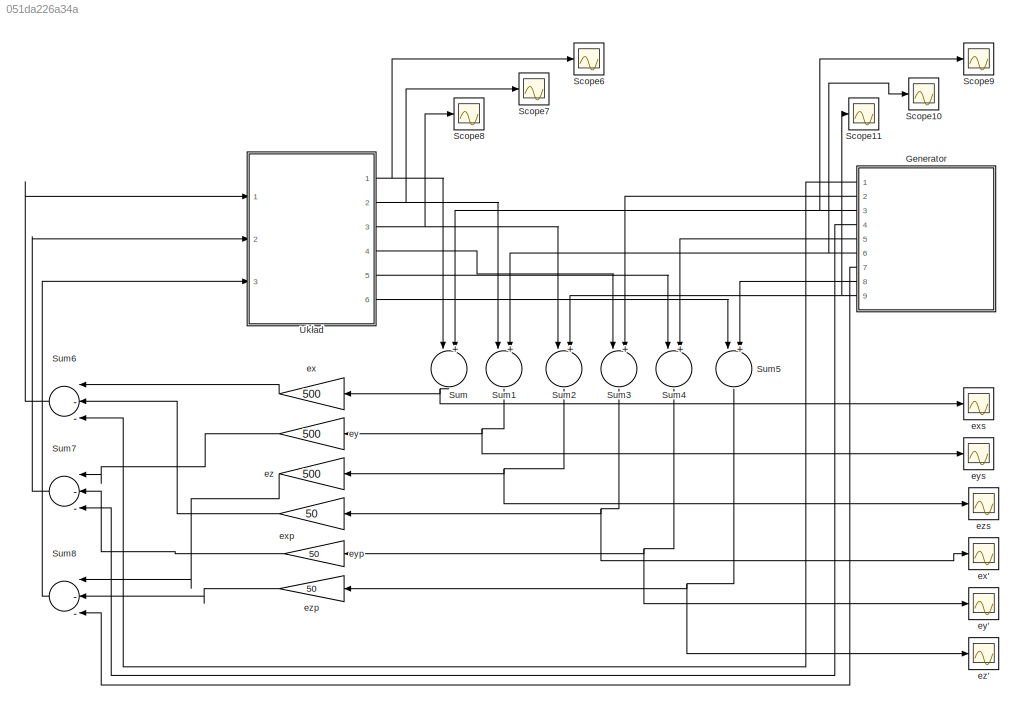
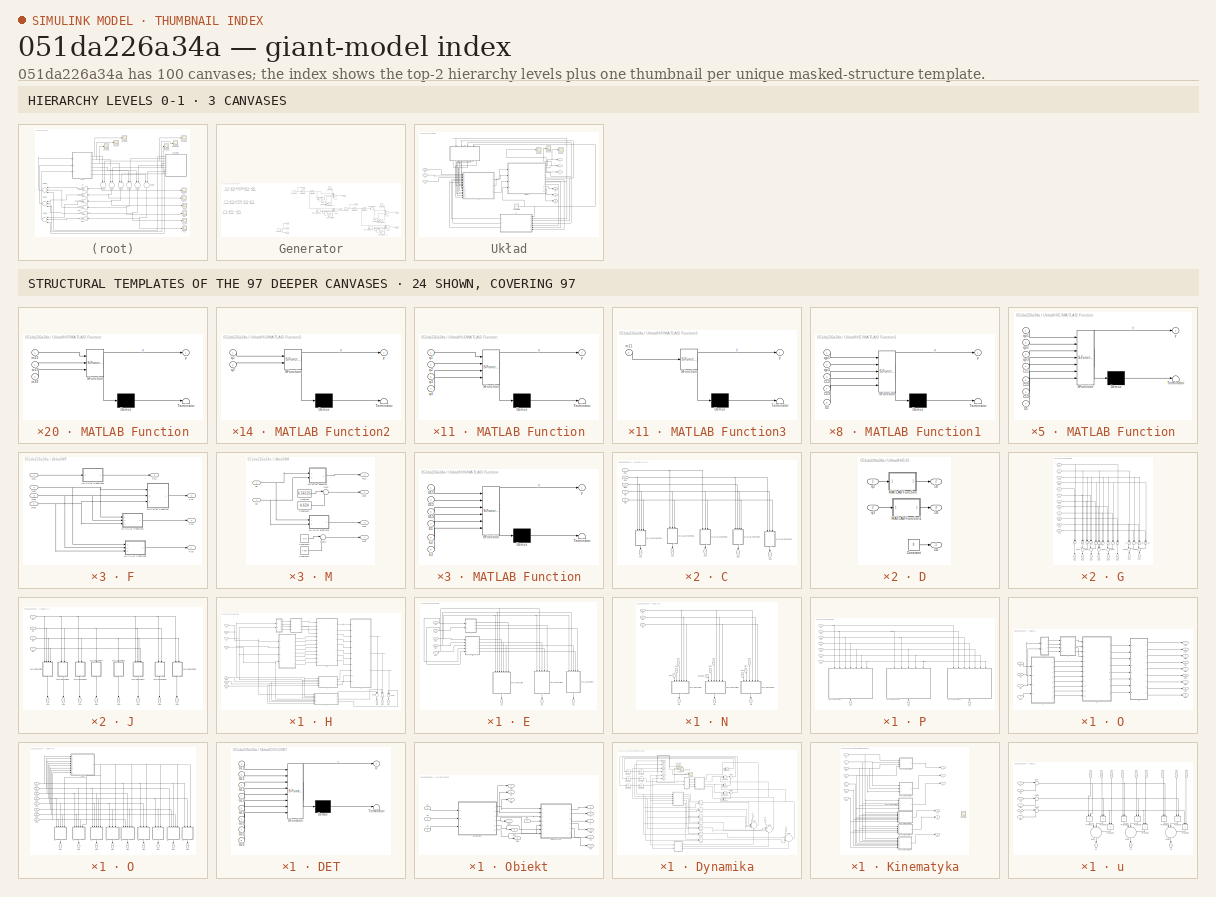
[diagram: thumbnail index - top-2 hierarchy levels (3 canvases) + 24 structural-template representatives of the remaining 97 canvases]
MODEL slx_051da226a34a
KIND model
CONFIG AbsTol = auto
CONFIG FixedStep = auto
CONFIG MaxStep = auto
CONFIG MinStep = auto
CONFIG RelTol = 1e-10
CONFIG SampleTimeConstraint = Unconstrained
CONFIG Solver = ode23
CONFIG SolverMode = Auto
CONFIG SolverName = ode23
CONFIG StartTime = 0.0
CONFIG StopTime = 20
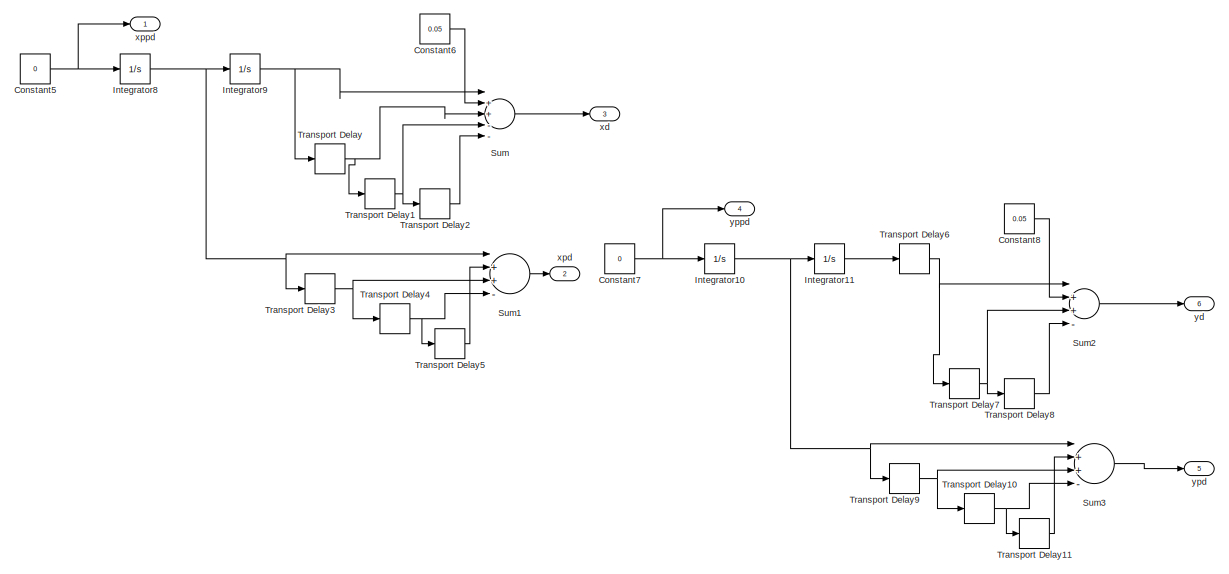
[diagram: Generator - part 1/2, right side, full height]
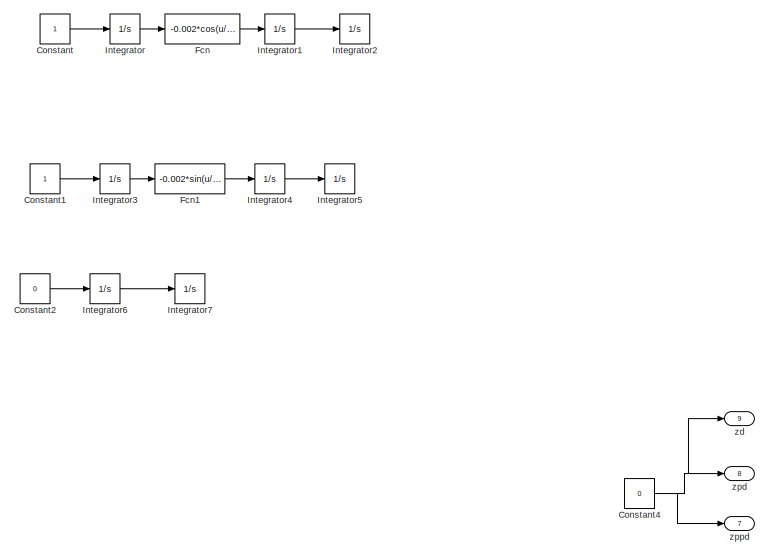
[diagram: Generator - part 2/2, left side, full height]
BLOCK [SubSystem] Generator
  Ports = [0, 9]
  RequestExecContextInheritance = off
  Variant = off
BLOCK [Constant] Generator/Constant
BLOCK [Constant] Generator/Constant1
BLOCK [Constant] Generator/Constant2
  Value = 0
BLOCK [Constant] Generator/Constant4
  Value = 0
BLOCK [Constant] Generator/Constant5
  Value = 0
BLOCK [Constant] Generator/Constant6
  Value = 0.05
BLOCK [Constant] Generator/Constant7
  Value = 0
BLOCK [Constant] Generator/Constant8
  Value = 0.05
BLOCK [Fcn] Generator/Fcn
  Expr = -0.002*cos(u/5)
BLOCK [Fcn] Generator/Fcn1
  Expr = -0.002*sin(u/5)
BLOCK [Integrator] Generator/Integrator
  Ports = [1, 1]
BLOCK [Integrator] Generator/Integrator1
  Ports = [1, 1]
BLOCK [Integrator] Generator/Integrator10
  InitialCondition = 0.01
  Ports = [1, 1]
BLOCK [Integrator] Generator/Integrator11
  Ports = [1, 1]
BLOCK [Integrator] Generator/Integrator2
  InitialCondition = 0.05
  Ports = [1, 1]
BLOCK [Integrator] Generator/Integrator3
  Ports = [1, 1]
BLOCK [Integrator] Generator/Integrator4
  InitialCondition = 0.01
  Ports = [1, 1]
BLOCK [Integrator] Generator/Integrator5
  Ports = [1, 1]
BLOCK [Integrator] Generator/Integrator6
  InitialCondition = 0.01
  Ports = [1, 1]
BLOCK [Integrator] Generator/Integrator7
  Ports = [1, 1]
BLOCK [Integrator] Generator/Integrator8
  InitialCondition = 0.01
  Ports = [1, 1]
BLOCK [Integrator] Generator/Integrator9
  Ports = [1, 1]
BLOCK [Sum] Generator/Sum
  InputSameDT = off
  Inputs = |++--+
  OutDataTypeStr = Inherit: Inherit via internal rule
  Ports = [5, 1]
  SaturateOnIntegerOverflow = off
BLOCK [Sum] Generator/Sum1
  InputSameDT = off
  Inputs = |++--
  OutDataTypeStr = Inherit: Inherit via internal rule
  Ports = [4, 1]
  SaturateOnIntegerOverflow = off
BLOCK [Sum] Generator/Sum2
  InputSameDT = off
  Inputs = |++--
  OutDataTypeStr = Inherit: Inherit via internal rule
  Ports = [4, 1]
  SaturateOnIntegerOverflow = off
BLOCK [Sum] Generator/Sum3
  InputSameDT = off
  Inputs = |++--
  OutDataTypeStr = Inherit: Inherit via internal rule
  Ports = [4, 1]
  SaturateOnIntegerOverflow = off
BLOCK [TransportDelay] Generator/Transport Delay
  DelayTime = 5
  Ports = [1, 1]
BLOCK [TransportDelay] Generator/Transport Delay1
  DelayTime = 5
  Ports = [1, 1]
BLOCK [TransportDelay] Generator/Transport Delay10
  DelayTime = 5
  Ports = [1, 1]
BLOCK [TransportDelay] Generator/Transport Delay11
  DelayTime = 5
  Ports = [1, 1]
BLOCK [TransportDelay] Generator/Transport Delay2
  DelayTime = 5
  Ports = [1, 1]
BLOCK [TransportDelay] Generator/Transport Delay3
  DelayTime = 5
  Ports = [1, 1]
BLOCK [TransportDelay] Generator/Transport Delay4
  DelayTime = 5
  Ports = [1, 1]
BLOCK [TransportDelay] Generator/Transport Delay5
  DelayTime = 5
  Ports = [1, 1]
BLOCK [TransportDelay] Generator/Transport Delay6
  DelayTime = 5
  Ports = [1, 1]
BLOCK [TransportDelay] Generator/Transport Delay7
  DelayTime = 5
  Ports = [1, 1]
BLOCK [TransportDelay] Generator/Transport Delay8
  DelayTime = 5
  Ports = [1, 1]
BLOCK [TransportDelay] Generator/Transport Delay9
  DelayTime = 5
  Ports = [1, 1]
BLOCK [Outport] Generator/xd
  IconDisplay = Port number
  Port = 3
BLOCK [Outport] Generator/xpd
  IconDisplay = Port number
  Port = 2
BLOCK [Outport] Generator/xppd
  IconDisplay = Port number
BLOCK [Outport] Generator/yd
  IconDisplay = Port number
  Port = 6
BLOCK [Outport] Generator/ypd
  IconDisplay = Port number
  Port = 5
BLOCK [Outport] Generator/yppd
  IconDisplay = Port number
  Port = 4
BLOCK [Outport] Generator/zd
  IconDisplay = Port number
  Port = 9
BLOCK [Outport] Generator/zpd
  IconDisplay = Port number
  Port = 8
BLOCK [Outport] Generator/zppd
  IconDisplay = Port number
  Port = 7
BLOCK [Scope] Scope10
  Ports = [1]
  ScopeSpecificationString = Simulink.scopes.TimeScopeBlockCfg('CurrentConfiguration', extmgr.ConfigurationSet(extmgr.Configuration('Core','General UI',true),extmgr.Configuration('Core','Source UI',true),extmgr.Configuration('Sources','WiredSimulink',true,'DataLoggingVariableName','ScopeData11'),extmgr.Configuration('Visuals','Time Domain',true,'SerializedDisplays',{struct('MinYLimReal','0.04375','MaxYLimReal','0.10625','YLab...<+1402ch>
BLOCK [Scope] Scope11
  Ports = [1]
  ScopeSpecificationString = Simulink.scopes.TimeScopeBlockCfg('CurrentConfiguration', extmgr.ConfigurationSet(extmgr.Configuration('Core','General UI',true),extmgr.Configuration('Core','Source UI',true),extmgr.Configuration('Sources','WiredSimulink',true,'DataLoggingVariableName','ScopeData12'),extmgr.Configuration('Visuals','Time Domain',true,'SerializedDisplays',{struct('MinYLimReal','-1.00000','MaxYLimReal','1.00000','YLa...<+1400ch>
BLOCK [Scope] Scope6
  Ports = [1]
  ScopeSpecificationString = Simulink.scopes.TimeScopeBlockCfg('CurrentConfiguration', extmgr.ConfigurationSet(extmgr.Configuration('Core','General UI',true),extmgr.Configuration('Core','Source UI',true),extmgr.Configuration('Sources','WiredSimulink',true,'DataLoggingVariableName','ScopeData7'),extmgr.Configuration('Visuals','Time Domain',true,'SerializedDisplays',{struct('MinYLimReal','-0.13885','MaxYLimReal','1.31567','YLab...<+1439ch>
BLOCK [Scope] Scope7
  Ports = [1]
  ScopeSpecificationString = Simulink.scopes.TimeScopeBlockCfg('CurrentConfiguration', extmgr.ConfigurationSet(extmgr.Configuration('Core','General UI',true),extmgr.Configuration('Core','Source UI',true),extmgr.Configuration('Sources','WiredSimulink',true,'DataLoggingVariableName','ScopeData8'),extmgr.Configuration('Visuals','Time Domain',true,'SerializedDisplays',{struct('MinYLimReal','-1.07543','MaxYLimReal','0.22985','YLab...<+1395ch>
BLOCK [Scope] Scope8
  Ports = [1]
  ScopeSpecificationString = Simulink.scopes.TimeScopeBlockCfg('CurrentConfiguration', extmgr.ConfigurationSet(extmgr.Configuration('Core','General UI',true),extmgr.Configuration('Core','Source UI',true),extmgr.Configuration('Sources','WiredSimulink',true,'DataLoggingVariableName','ScopeData9'),extmgr.Configuration('Visuals','Time Domain',true,'SerializedDisplays',{struct('MinYLimReal','-0.12371','MaxYLimReal','1.11335','YLab...<+1395ch>
BLOCK [Scope] Scope9
  Ports = [1]
  ScopeSpecificationString = Simulink.scopes.TimeScopeBlockCfg('CurrentConfiguration', extmgr.ConfigurationSet(extmgr.Configuration('Core','General UI',true),extmgr.Configuration('Core','Source UI',true),extmgr.Configuration('Sources','WiredSimulink',true,'DataLoggingVariableName','ScopeData10'),extmgr.Configuration('Visuals','Time Domain',true,'SerializedDisplays',{struct('MinYLimReal','0.04375','MaxYLimReal','0.10625','YLab...<+1402ch>
BLOCK [Sum] Sum
  InputSameDT = off
  Inputs = |+-
  OutDataTypeStr = Inherit: Inherit via internal rule
  Ports = [2, 1]
  SaturateOnIntegerOverflow = off
BLOCK [Sum] Sum1
  InputSameDT = off
  Inputs = |+-
  OutDataTypeStr = Inherit: Inherit via internal rule
  Ports = [2, 1]
  SaturateOnIntegerOverflow = off
BLOCK [Sum] Sum2
  InputSameDT = off
  Inputs = |+-
  OutDataTypeStr = Inherit: Inherit via internal rule
  Ports = [2, 1]
  SaturateOnIntegerOverflow = off
BLOCK [Sum] Sum3
  InputSameDT = off
  Inputs = |+-
  OutDataTypeStr = Inherit: Inherit via internal rule
  Ports = [2, 1]
  SaturateOnIntegerOverflow = off
BLOCK [Sum] Sum4
  InputSameDT = off
  Inputs = |+-
  OutDataTypeStr = Inherit: Inherit via internal rule
  Ports = [2, 1]
  SaturateOnIntegerOverflow = off
BLOCK [Sum] Sum5
  InputSameDT = off
  Inputs = |+-
  OutDataTypeStr = Inherit: Inherit via internal rule
  Ports = [2, 1]
  SaturateOnIntegerOverflow = off
BLOCK [Sum] Sum6
  InputSameDT = off
  Inputs = |--+
  OutDataTypeStr = Inherit: Inherit via internal rule
  Ports = [3, 1]
  SaturateOnIntegerOverflow = off
BLOCK [Sum] Sum7
  InputSameDT = off
  Inputs = |--+
  OutDataTypeStr = Inherit: Inherit via internal rule
  Ports = [3, 1]
  SaturateOnIntegerOverflow = off
BLOCK [Sum] Sum8
  InputSameDT = off
  Inputs = |--+
  OutDataTypeStr = Inherit: Inherit via internal rule
  Ports = [3, 1]
  SaturateOnIntegerOverflow = off
BLOCK [SubSystem] Układ
  Ports = [3, 6]
  RequestExecContextInheritance = off
  Variant = off
BLOCK [Constant] Układ/Constant3
  Value = 1.6
BLOCK [SubSystem] Układ/H
  Ports = [7, 3]
  RequestExecContextInheritance = off
  Variant = off
BLOCK [SubSystem] Układ/H/E
  Ports = [5, 3]
  RequestExecContextInheritance = off
  Variant = off
BLOCK [SubSystem] Układ/H/E/C
  Ports = [5, 5]
  RequestExecContextInheritance = off
  Variant = off
BLOCK [Outport] Układ/H/E/C/C11
  IconDisplay = Port number
BLOCK [Outport] Układ/H/E/C/C12
  IconDisplay = Port number
  Port = 2
BLOCK [Outport] Układ/H/E/C/C13
  IconDisplay = Port number
  Port = 3
BLOCK [Outport] Układ/H/E/C/C23
  IconDisplay = Port number
  Port = 4
BLOCK [Outport] Układ/H/E/C/C32
  IconDisplay = Port number
  Port = 5
BLOCK [SubSystem] Układ/H/E/C/MATLAB Function
  ErrorFcn = Stateflow.Translate.translate
  PermitHierarchicalResolution = ExplicitOnly
  Ports = [4, 1]
  RequestExecContextInheritance = off
  SFBlockType = MATLAB Function
  TreatAsAtomicUnit = on
  Variant = off
BLOCK [Demux] Układ/H/E/C/MATLAB Function/ Demux 
  Outputs = 1
  Ports = [1, 1]
BLOCK [S-Function] Układ/H/E/C/MATLAB Function/ SFunction 
  EnableBusSupport = on
  FunctionName = sf_sfun
  PortCounts = [4 2]
  Ports = [4, 2]
  SFunctionDeploymentMode = off
  Tag = Stateflow S-Function test0 71
BLOCK [Terminator] Układ/H/E/C/MATLAB Function/ Terminator 
BLOCK [Inport] Układ/H/E/C/MATLAB Function/q2
  IconDisplay = Port number
  Port = 3
BLOCK [Inport] Układ/H/E/C/MATLAB Function/q3
  IconDisplay = Port number
  Port = 4
BLOCK [Inport] Układ/H/E/C/MATLAB Function/qp2
  IconDisplay = Port number
BLOCK [Inport] Układ/H/E/C/MATLAB Function/qp3
  IconDisplay = Port number
  Port = 2
BLOCK [Outport] Układ/H/E/C/MATLAB Function/y
  IconDisplay = Port number
BLOCK [SubSystem] Układ/H/E/C/MATLAB Function1
  ErrorFcn = Stateflow.Translate.translate
  PermitHierarchicalResolution = ExplicitOnly
  Ports = [3, 1]
  RequestExecContextInheritance = off
  SFBlockType = MATLAB Function
  TreatAsAtomicUnit = on
  Variant = off
BLOCK [Demux] Układ/H/E/C/MATLAB Function1/ Demux 
  Outputs = 1
  Ports = [1, 1]
BLOCK [S-Function] Układ/H/E/C/MATLAB Function1/ SFunction 
  EnableBusSupport = on
  FunctionName = sf_sfun
  PortCounts = [3 2]
  Ports = [3, 2]
  SFunctionDeploymentMode = off
  Tag = Stateflow S-Function test0 72
BLOCK [Terminator] Układ/H/E/C/MATLAB Function1/ Terminator 
BLOCK [Inport] Układ/H/E/C/MATLAB Function1/q2
  IconDisplay = Port number
  Port = 2
BLOCK [Inport] Układ/H/E/C/MATLAB Function1/q3
  IconDisplay = Port number
  Port = 3
BLOCK [Inport] Układ/H/E/C/MATLAB Function1/qp1
  IconDisplay = Port number
BLOCK [Outport] Układ/H/E/C/MATLAB Function1/y
  IconDisplay = Port number
BLOCK [SubSystem] Układ/H/E/C/MATLAB Function2
  ErrorFcn = Stateflow.Translate.translate
  PermitHierarchicalResolution = ExplicitOnly
  Ports = [3, 1]
  RequestExecContextInheritance = off
  SFBlockType = MATLAB Function
  TreatAsAtomicUnit = on
  Variant = off
BLOCK [Demux] Układ/H/E/C/MATLAB Function2/ Demux 
  Outputs = 1
  Ports = [1, 1]
BLOCK [S-Function] Układ/H/E/C/MATLAB Function2/ SFunction 
  EnableBusSupport = on
  FunctionName = sf_sfun
  PortCounts = [3 2]
  Ports = [3, 2]
  SFunctionDeploymentMode = off
  Tag = Stateflow S-Function test0 73
BLOCK [Terminator] Układ/H/E/C/MATLAB Function2/ Terminator 
BLOCK [Inport] Układ/H/E/C/MATLAB Function2/q2
  IconDisplay = Port number
  Port = 2
BLOCK [Inport] Układ/H/E/C/MATLAB Function2/q3
  IconDisplay = Port number
  Port = 3
BLOCK [Inport] Układ/H/E/C/MATLAB Function2/qp1
  IconDisplay = Port number
BLOCK [Outport] Układ/H/E/C/MATLAB Function2/y
  IconDisplay = Port number
BLOCK [SubSystem] Układ/H/E/C/MATLAB Function3
  ErrorFcn = Stateflow.Translate.translate
  PermitHierarchicalResolution = ExplicitOnly
  Ports = [4, 1]
  RequestExecContextInheritance = off
  SFBlockType = MATLAB Function
  TreatAsAtomicUnit = on
  Variant = off
BLOCK [Demux] Układ/H/E/C/MATLAB Function3/ Demux 
  Outputs = 1
  Ports = [1, 1]
BLOCK [S-Function] Układ/H/E/C/MATLAB Function3/ SFunction 
  EnableBusSupport = on
  FunctionName = sf_sfun
  PortCounts = [4 2]
  Ports = [4, 2]
  SFunctionDeploymentMode = off
  Tag = Stateflow S-Function test0 74
BLOCK [Terminator] Układ/H/E/C/MATLAB Function3/ Terminator 
BLOCK [Inport] Układ/H/E/C/MATLAB Function3/q2
  IconDisplay = Port number
  Port = 3
BLOCK [Inport] Układ/H/E/C/MATLAB Function3/q3
  IconDisplay = Port number
  Port = 4
BLOCK [Inport] Układ/H/E/C/MATLAB Function3/qp2
  IconDisplay = Port number
BLOCK [Inport] Układ/H/E/C/MATLAB Function3/qp3
  IconDisplay = Port number
  Port = 2
BLOCK [Outport] Układ/H/E/C/MATLAB Function3/y
  IconDisplay = Port number
BLOCK [SubSystem] Układ/H/E/C/MATLAB Function4
  ErrorFcn = Stateflow.Translate.translate
  PermitHierarchicalResolution = ExplicitOnly
  Ports = [3, 1]
  RequestExecContextInheritance = off
  SFBlockType = MATLAB Function
  TreatAsAtomicUnit = on
  Variant = off
BLOCK [Demux] Układ/H/E/C/MATLAB Function4/ Demux 
  Outputs = 1
  Ports = [1, 1]
BLOCK [S-Function] Układ/H/E/C/MATLAB Function4/ SFunction 
  EnableBusSupport = on
  FunctionName = sf_sfun
  PortCounts = [3 2]
  Ports = [3, 2]
  SFunctionDeploymentMode = off
  Tag = Stateflow S-Function test0 75
BLOCK [Terminator] Układ/H/E/C/MATLAB Function4/ Terminator 
BLOCK [Inport] Układ/H/E/C/MATLAB Function4/q2
  IconDisplay = Port number
  Port = 2
BLOCK [Inport] Układ/H/E/C/MATLAB Function4/q3
  IconDisplay = Port number
  Port = 3
BLOCK [Inport] Układ/H/E/C/MATLAB Function4/qp2
  IconDisplay = Port number
BLOCK [Outport] Układ/H/E/C/MATLAB Function4/y
  IconDisplay = Port number
BLOCK [Inport] Układ/H/E/C/q2
  IconDisplay = Port number
  Port = 4
BLOCK [Inport] Układ/H/E/C/q3
  IconDisplay = Port number
  Port = 5
BLOCK [Inport] Układ/H/E/C/qp1
  IconDisplay = Port number
BLOCK [Inport] Układ/H/E/C/qp2
  IconDisplay = Port number
  Port = 2
BLOCK [Inport] Układ/H/E/C/qp3
  IconDisplay = Port number
  Port = 3
BLOCK [SubSystem] Układ/H/E/D
  Ports = [2, 3]
  RequestExecContextInheritance = off
  Variant = off
BLOCK [Constant] Układ/H/E/D/Constant
  Value = 0
BLOCK [Outport] Układ/H/E/D/D1
  IconDisplay = Port number
BLOCK [Outport] Układ/H/E/D/D2
  IconDisplay = Port number
  Port = 2
BLOCK [Outport] Układ/H/E/D/D3
  IconDisplay = Port number
  Port = 3
BLOCK [SubSystem] Układ/H/E/D/MATLAB Function
  ErrorFcn = Stateflow.Translate.translate
  PermitHierarchicalResolution = ExplicitOnly
  Ports = [1, 1]
  RequestExecContextInheritance = off
  SFBlockType = MATLAB Function
  TreatAsAtomicUnit = on
  Variant = off
BLOCK [Demux] Układ/H/E/D/MATLAB Function/ Demux 
  Outputs = 1
  Ports = [1, 1]
BLOCK [S-Function] Układ/H/E/D/MATLAB Function/ SFunction 
  EnableBusSupport = on
  FunctionName = sf_sfun
  PortCounts = [1 2]
  Ports = [1, 2]
  SFunctionDeploymentMode = off
  Tag = Stateflow S-Function test0 76
BLOCK [Terminator] Układ/H/E/D/MATLAB Function/ Terminator 
BLOCK [Inport] Układ/H/E/D/MATLAB Function/q2
  IconDisplay = Port number
BLOCK [Outport] Układ/H/E/D/MATLAB Function/y
  IconDisplay = Port number
BLOCK [SubSystem] Układ/H/E/D/MATLAB Function1
  ErrorFcn = Stateflow.Translate.translate
  PermitHierarchicalResolution = ExplicitOnly
  Ports = [1, 1]
  RequestExecContextInheritance = off
  SFBlockType = MATLAB Function
  TreatAsAtomicUnit = on
  Variant = off
BLOCK [Demux] Układ/H/E/D/MATLAB Function1/ Demux 
  Outputs = 1
  Ports = [1, 1]
BLOCK [S-Function] Układ/H/E/D/MATLAB Function1/ SFunction 
  EnableBusSupport = on
  FunctionName = sf_sfun
  PortCounts = [1 2]
  Ports = [1, 2]
  SFunctionDeploymentMode = off
  Tag = Stateflow S-Function test0 77
BLOCK [Terminator] Układ/H/E/D/MATLAB Function1/ Terminator 
BLOCK [Inport] Układ/H/E/D/MATLAB Function1/q3
  IconDisplay = Port number
BLOCK [Outport] Układ/H/E/D/MATLAB Function1/y
  IconDisplay = Port number
BLOCK [Inport] Układ/H/E/D/q2
  IconDisplay = Port number
BLOCK [Inport] Układ/H/E/D/q3
  IconDisplay = Port number
  Port = 2
BLOCK [Outport] Układ/H/E/E1
  IconDisplay = Port number
BLOCK [Outport] Układ/H/E/E2
  IconDisplay = Port number
  Port = 2
BLOCK [Outport] Układ/H/E/E3
  IconDisplay = Port number
  Port = 3
BLOCK [SubSystem] Układ/H/E/MATLAB Function
  ErrorFcn = Stateflow.Translate.translate
  PermitHierarchicalResolution = ExplicitOnly
  Ports = [7, 1]
  RequestExecContextInheritance = off
  SFBlockType = MATLAB Function
  TreatAsAtomicUnit = on
  Variant = off
BLOCK [Demux] Układ/H/E/MATLAB Function/ Demux 
  Outputs = 1
  Ports = [1, 1]
BLOCK [S-Function] Układ/H/E/MATLAB Function/ SFunction 
  EnableBusSupport = on
  FunctionName = sf_sfun
  PortCounts = [7 2]
  Ports = [7, 2]
  SFunctionDeploymentMode = off
  Tag = Stateflow S-Function test0 38
BLOCK [Terminator] Układ/H/E/MATLAB Function/ Terminator 
BLOCK [Inport] Układ/H/E/MATLAB Function/C11
  IconDisplay = Port number
  Port = 4
BLOCK [Inport] Układ/H/E/MATLAB Function/C12
  IconDisplay = Port number
  Port = 5
BLOCK [Inport] Układ/H/E/MATLAB Function/C13
  IconDisplay = Port number
  Port = 6
BLOCK [Inport] Układ/H/E/MATLAB Function/D1
  IconDisplay = Port number
  Port = 7
BLOCK [Inport] Układ/H/E/MATLAB Function/qp1
  IconDisplay = Port number
BLOCK [Inport] Układ/H/E/MATLAB Function/qp2
  IconDisplay = Port number
  Port = 2
BLOCK [Inport] Układ/H/E/MATLAB Function/qp3
  IconDisplay = Port number
  Port = 3
BLOCK [Outport] Układ/H/E/MATLAB Function/y
  IconDisplay = Port number
BLOCK [SubSystem] Układ/H/E/MATLAB Function1
  ErrorFcn = Stateflow.Translate.translate
  PermitHierarchicalResolution = ExplicitOnly
  Ports = [5, 1]
  RequestExecContextInheritance = off
  SFBlockType = MATLAB Function
  TreatAsAtomicUnit = on
  Variant = off
BLOCK [Demux] Układ/H/E/MATLAB Function1/ Demux 
  Outputs = 1
  Ports = [1, 1]
BLOCK [S-Function] Układ/H/E/MATLAB Function1/ SFunction 
  EnableBusSupport = on
  FunctionName = sf_sfun
  PortCounts = [5 2]
  Ports = [5, 2]
  SFunctionDeploymentMode = off
  Tag = Stateflow S-Function test0 39
BLOCK [Terminator] Układ/H/E/MATLAB Function1/ Terminator 
BLOCK [Inport] Układ/H/E/MATLAB Function1/C12
  IconDisplay = Port number
  Port = 3
BLOCK [Inport] Układ/H/E/MATLAB Function1/C23
  IconDisplay = Port number
  Port = 4
BLOCK [Inport] Układ/H/E/MATLAB Function1/D2
  IconDisplay = Port number
  Port = 5
BLOCK [Inport] Układ/H/E/MATLAB Function1/qp1
  IconDisplay = Port number
BLOCK [Inport] Układ/H/E/MATLAB Function1/qp3
  IconDisplay = Port number
  Port = 2
BLOCK [Outport] Układ/H/E/MATLAB Function1/y
  IconDisplay = Port number
BLOCK [SubSystem] Układ/H/E/MATLAB Function2
  ErrorFcn = Stateflow.Translate.translate
  PermitHierarchicalResolution = ExplicitOnly
  Ports = [5, 1]
  RequestExecContextInheritance = off
  SFBlockType = MATLAB Function
  TreatAsAtomicUnit = on
  Variant = off
BLOCK [Demux] Układ/H/E/MATLAB Function2/ Demux 
  Outputs = 1
  Ports = [1, 1]
BLOCK [S-Function] Układ/H/E/MATLAB Function2/ SFunction 
  EnableBusSupport = on
  FunctionName = sf_sfun
  PortCounts = [5 2]
  Ports = [5, 2]
  SFunctionDeploymentMode = off
  Tag = Stateflow S-Function test0 40
BLOCK [Terminator] Układ/H/E/MATLAB Function2/ Terminator 
BLOCK [Inport] Układ/H/E/MATLAB Function2/C13
  IconDisplay = Port number
  Port = 3
BLOCK [Inport] Układ/H/E/MATLAB Function2/C32
  IconDisplay = Port number
  Port = 4
BLOCK [Inport] Układ/H/E/MATLAB Function2/D3
  IconDisplay = Port number
  Port = 5
BLOCK [Inport] Układ/H/E/MATLAB Function2/qp1
  IconDisplay = Port number
BLOCK [Inport] Układ/H/E/MATLAB Function2/qp2
  IconDisplay = Port number
  Port = 2
BLOCK [Outport] Układ/H/E/MATLAB Function2/y
  IconDisplay = Port number
BLOCK [Inport] Układ/H/E/q2
  IconDisplay = Port number
BLOCK [Inport] Układ/H/E/q3
  IconDisplay = Port number
  Port = 2
BLOCK [Inport] Układ/H/E/qp1
  IconDisplay = Port number
  Port = 3
BLOCK [Inport] Układ/H/E/qp2
  IconDisplay = Port number
  Port = 4
BLOCK [Inport] Układ/H/E/qp3
  IconDisplay = Port number
  Port = 5
BLOCK [SubSystem] Układ/H/F
  Ports = [4, 4]
  RequestExecContextInheritance = off
  Variant = off
BLOCK [Outport] Układ/H/F/F11
  IconDisplay = Port number
BLOCK [Outport] Układ/H/F/F22
  IconDisplay = Port number
  Port = 2
BLOCK [Outport] Układ/H/F/F23
  IconDisplay = Port number
  Port = 3
BLOCK [Outport] Układ/H/F/F33
  IconDisplay = Port number
  Port = 4
BLOCK [Inport] Układ/H/F/M11
  IconDisplay = Port number
BLOCK [Inport] Układ/H/F/M22
  IconDisplay = Port number
  Port = 2
BLOCK [Inport] Układ/H/F/M23
  IconDisplay = Port number
  Port = 3
BLOCK [Inport] Układ/H/F/M33
  IconDisplay = Port number
  Port = 4
BLOCK [SubSystem] Układ/H/F/MATLAB Function
  ErrorFcn = Stateflow.Translate.translate
  PermitHierarchicalResolution = ExplicitOnly
  Ports = [3, 1]
  RequestExecContextInheritance = off
  SFBlockType = MATLAB Function
  TreatAsAtomicUnit = on
  Variant = off
BLOCK [Demux] Układ/H/F/MATLAB Function/ Demux 
  Outputs = 1
  Ports = [1, 1]
BLOCK [S-Function] Układ/H/F/MATLAB Function/ SFunction 
  EnableBusSupport = on
  FunctionName = sf_sfun
  PortCounts = [3 2]
  Ports = [3, 2]
  SFunctionDeploymentMode = off
  Tag = Stateflow S-Function test0 17
BLOCK [Terminator] Układ/H/F/MATLAB Function/ Terminator 
BLOCK [Inport] Układ/H/F/MATLAB Function/m22
  IconDisplay = Port number
BLOCK [Inport] Układ/H/F/MATLAB Function/m23
  IconDisplay = Port number
  Port = 2
BLOCK [Inport] Układ/H/F/MATLAB Function/m33
  IconDisplay = Port number
  Port = 3
BLOCK [Outport] Układ/H/F/MATLAB Function/y
  IconDisplay = Port number
BLOCK [SubSystem] Układ/H/F/MATLAB Function1
  ErrorFcn = Stateflow.Translate.translate
  PermitHierarchicalResolution = ExplicitOnly
  Ports = [3, 1]
  RequestExecContextInheritance = off
  SFBlockType = MATLAB Function
  TreatAsAtomicUnit = on
  Variant = off
BLOCK [Demux] Układ/H/F/MATLAB Function1/ Demux 
  Outputs = 1
  Ports = [1, 1]
BLOCK [S-Function] Układ/H/F/MATLAB Function1/ SFunction 
  EnableBusSupport = on
  FunctionName = sf_sfun
  PortCounts = [3 2]
  Ports = [3, 2]
  SFunctionDeploymentMode = off
  Tag = Stateflow S-Function test0 18
BLOCK [Terminator] Układ/H/F/MATLAB Function1/ Terminator 
BLOCK [Inport] Układ/H/F/MATLAB Function1/m22
  IconDisplay = Port number
BLOCK [Inport] Układ/H/F/MATLAB Function1/m23
  IconDisplay = Port number
  Port = 2
BLOCK [Inport] Układ/H/F/MATLAB Function1/m33
  IconDisplay = Port number
  Port = 3
BLOCK [Outport] Układ/H/F/MATLAB Function1/y
  IconDisplay = Port number
BLOCK [SubSystem] Układ/H/F/MATLAB Function2
  ErrorFcn = Stateflow.Translate.translate
  PermitHierarchicalResolution = ExplicitOnly
  Ports = [3, 1]
  RequestExecContextInheritance = off
  SFBlockType = MATLAB Function
  TreatAsAtomicUnit = on
  Variant = off
BLOCK [Demux] Układ/H/F/MATLAB Function2/ Demux 
  Outputs = 1
  Ports = [1, 1]
BLOCK [S-Function] Układ/H/F/MATLAB Function2/ SFunction 
  EnableBusSupport = on
  FunctionName = sf_sfun
  PortCounts = [3 2]
  Ports = [3, 2]
  SFunctionDeploymentMode = off
  Tag = Stateflow S-Function test0 19
BLOCK [Terminator] Układ/H/F/MATLAB Function2/ Terminator 
BLOCK [Inport] Układ/H/F/MATLAB Function2/m22
  IconDisplay = Port number
BLOCK [Inport] Układ/H/F/MATLAB Function2/m23
  IconDisplay = Port number
  Port = 2
BLOCK [Inport] Układ/H/F/MATLAB Function2/m33
  IconDisplay = Port number
  Port = 3
BLOCK [Outport] Układ/H/F/MATLAB Function2/y
  IconDisplay = Port number
BLOCK [SubSystem] Układ/H/F/MATLAB Function3
  ErrorFcn = Stateflow.Translate.translate
  PermitHierarchicalResolution = ExplicitOnly
  Ports = [1, 1]
  RequestExecContextInheritance = off
  SFBlockType = MATLAB Function
  TreatAsAtomicUnit = on
  Variant = off
BLOCK [Demux] Układ/H/F/MATLAB Function3/ Demux 
  Outputs = 1
  Ports = [1, 1]
BLOCK [S-Function] Układ/H/F/MATLAB Function3/ SFunction 
  EnableBusSupport = on
  FunctionName = sf_sfun
  PortCounts = [1 2]
  Ports = [1, 2]
  SFunctionDeploymentMode = off
  Tag = Stateflow S-Function test0 20
BLOCK [Terminator] Układ/H/F/MATLAB Function3/ Terminator 
BLOCK [Inport] Układ/H/F/MATLAB Function3/m11
  IconDisplay = Port number
BLOCK [Outport] Układ/H/F/MATLAB Function3/y
  IconDisplay = Port number
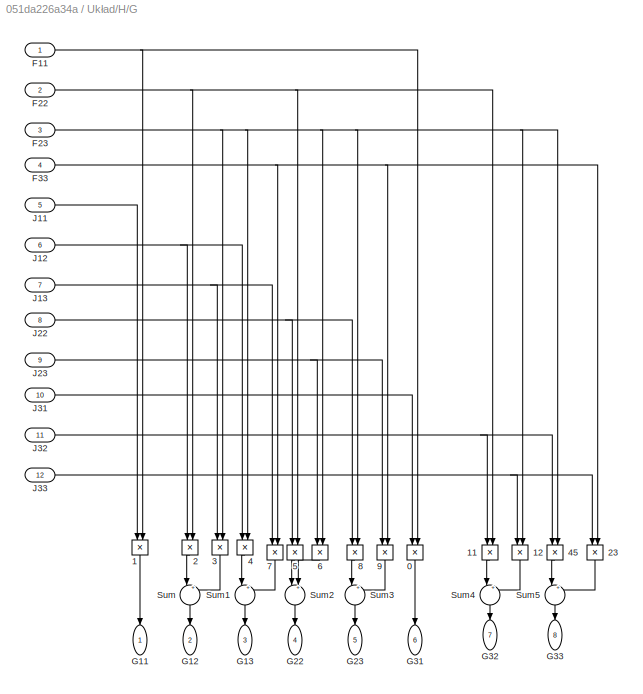
BLOCK [SubSystem] Układ/H/G
  Ports = [12, 8]
  RequestExecContextInheritance = off
  Variant = off
BLOCK [Product] Układ/H/G/0
  InputSameDT = off
  OutDataTypeStr = Inherit: Inherit via internal rule
  Ports = [2, 1]
  RndMeth = Floor
  SaturateOnIntegerOverflow = off
BLOCK [Product] Układ/H/G/1
  InputSameDT = off
  OutDataTypeStr = Inherit: Inherit via internal rule
  Ports = [2, 1]
  RndMeth = Floor
  SaturateOnIntegerOverflow = off
BLOCK [Product] Układ/H/G/11
  InputSameDT = off
  OutDataTypeStr = Inherit: Inherit via internal rule
  Ports = [2, 1]
  RndMeth = Floor
  SaturateOnIntegerOverflow = off
BLOCK [Product] Układ/H/G/12
  InputSameDT = off
  OutDataTypeStr = Inherit: Inherit via internal rule
  Ports = [2, 1]
  RndMeth = Floor
  SaturateOnIntegerOverflow = off
BLOCK [Product] Układ/H/G/2
  InputSameDT = off
  OutDataTypeStr = Inherit: Inherit via internal rule
  Ports = [2, 1]
  RndMeth = Floor
  SaturateOnIntegerOverflow = off
BLOCK [Product] Układ/H/G/23
  InputSameDT = off
  OutDataTypeStr = Inherit: Inherit via internal rule
  Ports = [2, 1]
  RndMeth = Floor
  SaturateOnIntegerOverflow = off
BLOCK [Product] Układ/H/G/3
  InputSameDT = off
  OutDataTypeStr = Inherit: Inherit via internal rule
  Ports = [2, 1]
  RndMeth = Floor
  SaturateOnIntegerOverflow = off
BLOCK [Product] Układ/H/G/4
  InputSameDT = off
  OutDataTypeStr = Inherit: Inherit via internal rule
  Ports = [2, 1]
  RndMeth = Floor
  SaturateOnIntegerOverflow = off
BLOCK [Product] Układ/H/G/45
  InputSameDT = off
  OutDataTypeStr = Inherit: Inherit via internal rule
  Ports = [2, 1]
  RndMeth = Floor
  SaturateOnIntegerOverflow = off
BLOCK [Product] Układ/H/G/5
  InputSameDT = off
  OutDataTypeStr = Inherit: Inherit via internal rule
  Ports = [2, 1]
  RndMeth = Floor
  SaturateOnIntegerOverflow = off
BLOCK [Product] Układ/H/G/6
  InputSameDT = off
  OutDataTypeStr = Inherit: Inherit via internal rule
  Ports = [2, 1]
  RndMeth = Floor
  SaturateOnIntegerOverflow = off
BLOCK [Product] Układ/H/G/7
  InputSameDT = off
  OutDataTypeStr = Inherit: Inherit via internal rule
  Ports = [2, 1]
  RndMeth = Floor
  SaturateOnIntegerOverflow = off
BLOCK [Product] Układ/H/G/8
  InputSameDT = off
  OutDataTypeStr = Inherit: Inherit via internal rule
  Ports = [2, 1]
  RndMeth = Floor
  SaturateOnIntegerOverflow = off
BLOCK [Product] Układ/H/G/9
  InputSameDT = off
  OutDataTypeStr = Inherit: Inherit via internal rule
  Ports = [2, 1]
  RndMeth = Floor
  SaturateOnIntegerOverflow = off
BLOCK [Inport] Układ/H/G/F11
  IconDisplay = Port number
BLOCK [Inport] Układ/H/G/F22
  IconDisplay = Port number
  Port = 2
BLOCK [Inport] Układ/H/G/F23
  IconDisplay = Port number
  Port = 3
BLOCK [Inport] Układ/H/G/F33
  IconDisplay = Port number
  Port = 4
BLOCK [Outport] Układ/H/G/G11
  IconDisplay = Port number
BLOCK [Outport] Układ/H/G/G12
  IconDisplay = Port number
  Port = 2
BLOCK [Outport] Układ/H/G/G13
  IconDisplay = Port number
  Port = 3
BLOCK [Outport] Układ/H/G/G22
  IconDisplay = Port number
  Port = 4
BLOCK [Outport] Układ/H/G/G23
  IconDisplay = Port number
  Port = 5
BLOCK [Outport] Układ/H/G/G31
  IconDisplay = Port number
  Port = 6
BLOCK [Outport] Układ/H/G/G32
  IconDisplay = Port number
  Port = 7
BLOCK [Outport] Układ/H/G/G33
  IconDisplay = Port number
  Port = 8
BLOCK [Inport] Układ/H/G/J11
  IconDisplay = Port number
  Port = 5
BLOCK [Inport] Układ/H/G/J12
  IconDisplay = Port number
  Port = 6
BLOCK [Inport] Układ/H/G/J13
  IconDisplay = Port number
  Port = 7
BLOCK [Inport] Układ/H/G/J22
  IconDisplay = Port number
  Port = 8
BLOCK [Inport] Układ/H/G/J23
  IconDisplay = Port number
  Port = 9
BLOCK [Inport] Układ/H/G/J31
  IconDisplay = Port number
  Port = 10
BLOCK [Inport] Układ/H/G/J32
  IconDisplay = Port number
  Port = 11
BLOCK [Inport] Układ/H/G/J33
  IconDisplay = Port number
  Port = 12
BLOCK [Sum] Układ/H/G/Sum
  IconShape = round
  InputSameDT = off
  Inputs = |++
  OutDataTypeStr = Inherit: Inherit via internal rule
  Ports = [2, 1]
  SaturateOnIntegerOverflow = off
BLOCK [Sum] Układ/H/G/Sum1
  IconShape = round
  InputSameDT = off
  Inputs = |++
  OutDataTypeStr = Inherit: Inherit via internal rule
  Ports = [2, 1]
  SaturateOnIntegerOverflow = off
BLOCK [Sum] Układ/H/G/Sum2
  IconShape = round
  InputSameDT = off
  Inputs = |++
  OutDataTypeStr = Inherit: Inherit via internal rule
  Ports = [2, 1]
  SaturateOnIntegerOverflow = off
BLOCK [Sum] Układ/H/G/Sum3
  IconShape = round
  InputSameDT = off
  Inputs = |++
  OutDataTypeStr = Inherit: Inherit via internal rule
  Ports = [2, 1]
  SaturateOnIntegerOverflow = off
BLOCK [Sum] Układ/H/G/Sum4
  IconShape = round
  InputSameDT = off
  Inputs = |++
  OutDataTypeStr = Inherit: Inherit via internal rule
  Ports = [2, 1]
  SaturateOnIntegerOverflow = off
BLOCK [Sum] Układ/H/G/Sum5
  IconShape = round
  InputSameDT = off
  Inputs = |++
  OutDataTypeStr = Inherit: Inherit via internal rule
  Ports = [2, 1]
  SaturateOnIntegerOverflow = off
BLOCK [Outport] Układ/H/H1
  IconDisplay = Port number
BLOCK [Outport] Układ/H/H2
  IconDisplay = Port number
  Port = 2
BLOCK [Outport] Układ/H/H3
  IconDisplay = Port number
  Port = 3
BLOCK [SubSystem] Układ/H/J
  Ports = [4, 8]
  RequestExecContextInheritance = off
  Variant = off
BLOCK [Outport] Układ/H/J/J11
  IconDisplay = Port number
BLOCK [Outport] Układ/H/J/J12
  IconDisplay = Port number
  Port = 2
BLOCK [Outport] Układ/H/J/J13
  IconDisplay = Port number
  Port = 3
BLOCK [Outport] Układ/H/J/J22
  IconDisplay = Port number
  Port = 4
BLOCK [Outport] Układ/H/J/J23
  IconDisplay = Port number
  Port = 5
BLOCK [Outport] Układ/H/J/J31
  IconDisplay = Port number
  Port = 6
BLOCK [Outport] Układ/H/J/J32
  IconDisplay = Port number
  Port = 7
BLOCK [Outport] Układ/H/J/J33
  IconDisplay = Port number
  Port = 8
BLOCK [SubSystem] Układ/H/J/MATLAB Function
  ErrorFcn = Stateflow.Translate.translate
  PermitHierarchicalResolution = ExplicitOnly
  Ports = [4, 1]
  RequestExecContextInheritance = off
  SFBlockType = MATLAB Function
  TreatAsAtomicUnit = on
  Variant = off
BLOCK [Demux] Układ/H/J/MATLAB Function/ Demux 
  Outputs = 1
  Ports = [1, 1]
BLOCK [S-Function] Układ/H/J/MATLAB Function/ SFunction 
  EnableBusSupport = on
  FunctionName = sf_sfun
  PortCounts = [4 2]
  Ports = [4, 2]
  SFunctionDeploymentMode = off
  Tag = Stateflow S-Function test0 23
BLOCK [Terminator] Układ/H/J/MATLAB Function/ Terminator 
BLOCK [Inport] Układ/H/J/MATLAB Function/q1
  IconDisplay = Port number
BLOCK [Inport] Układ/H/J/MATLAB Function/q2
  IconDisplay = Port number
  Port = 2
BLOCK [Inport] Układ/H/J/MATLAB Function/q3
  IconDisplay = Port number
  Port = 3
BLOCK [Inport] Układ/H/J/MATLAB Function/q4
  IconDisplay = Port number
  Port = 4
BLOCK [Outport] Układ/H/J/MATLAB Function/y
  IconDisplay = Port number
BLOCK [SubSystem] Układ/H/J/MATLAB Function1
  ErrorFcn = Stateflow.Translate.translate
  PermitHierarchicalResolution = ExplicitOnly
  Ports = [1, 1]
  RequestExecContextInheritance = off
  SFBlockType = MATLAB Function
  TreatAsAtomicUnit = on
  Variant = off
BLOCK [Demux] Układ/H/J/MATLAB Function1/ Demux 
  Outputs = 1
  Ports = [1, 1]
BLOCK [S-Function] Układ/H/J/MATLAB Function1/ SFunction 
  EnableBusSupport = on
  FunctionName = sf_sfun
  PortCounts = [1 2]
  Ports = [1, 2]
  SFunctionDeploymentMode = off
  Tag = Stateflow S-Function test0 24
BLOCK [Terminator] Układ/H/J/MATLAB Function1/ Terminator 
BLOCK [Inport] Układ/H/J/MATLAB Function1/q3
  IconDisplay = Port number
BLOCK [Outport] Układ/H/J/MATLAB Function1/y
  IconDisplay = Port number
BLOCK [SubSystem] Układ/H/J/MATLAB Function2
  ErrorFcn = Stateflow.Translate.translate
  PermitHierarchicalResolution = ExplicitOnly
  Ports = [2, 1]
  RequestExecContextInheritance = off
  SFBlockType = MATLAB Function
  TreatAsAtomicUnit = on
  Variant = off
BLOCK [Demux] Układ/H/J/MATLAB Function2/ Demux 
  Outputs = 1
  Ports = [1, 1]
BLOCK [S-Function] Układ/H/J/MATLAB Function2/ SFunction 
  EnableBusSupport = on
  FunctionName = sf_sfun
  PortCounts = [2 2]
  Ports = [2, 2]
  SFunctionDeploymentMode = off
  Tag = Stateflow S-Function test0 25
BLOCK [Terminator] Układ/H/J/MATLAB Function2/ Terminator 
BLOCK [Inport] Układ/H/J/MATLAB Function2/q1
  IconDisplay = Port number
BLOCK [Inport] Układ/H/J/MATLAB Function2/q2
  IconDisplay = Port number
  Port = 2
BLOCK [Outport] Układ/H/J/MATLAB Function2/y
  IconDisplay = Port number
BLOCK [SubSystem] Układ/H/J/MATLAB Function3
  ErrorFcn = Stateflow.Translate.translate
  PermitHierarchicalResolution = ExplicitOnly
  Ports = [2, 1]
  RequestExecContextInheritance = off
  SFBlockType = MATLAB Function
  TreatAsAtomicUnit = on
  Variant = off
BLOCK [Demux] Układ/H/J/MATLAB Function3/ Demux 
  Outputs = 1
  Ports = [1, 1]
BLOCK [S-Function] Układ/H/J/MATLAB Function3/ SFunction 
  EnableBusSupport = on
  FunctionName = sf_sfun
  PortCounts = [2 2]
  Ports = [2, 2]
  SFunctionDeploymentMode = off
  Tag = Stateflow S-Function test0 26
BLOCK [Terminator] Układ/H/J/MATLAB Function3/ Terminator 
BLOCK [Inport] Układ/H/J/MATLAB Function3/q1
  IconDisplay = Port number
BLOCK [Inport] Układ/H/J/MATLAB Function3/q3
  IconDisplay = Port number
  Port = 2
BLOCK [Outport] Układ/H/J/MATLAB Function3/y
  IconDisplay = Port number
BLOCK [SubSystem] Układ/H/J/MATLAB Function4
  ErrorFcn = Stateflow.Translate.translate
  PermitHierarchicalResolution = ExplicitOnly
  Ports = [1, 1]
  RequestExecContextInheritance = off
  SFBlockType = MATLAB Function
  TreatAsAtomicUnit = on
  Variant = off
BLOCK [Demux] Układ/H/J/MATLAB Function4/ Demux 
  Outputs = 1
  Ports = [1, 1]
BLOCK [S-Function] Układ/H/J/MATLAB Function4/ SFunction 
  EnableBusSupport = on
  FunctionName = sf_sfun
  PortCounts = [1 2]
  Ports = [1, 2]
  SFunctionDeploymentMode = off
  Tag = Stateflow S-Function test0 27
BLOCK [Terminator] Układ/H/J/MATLAB Function4/ Terminator 
BLOCK [Inport] Układ/H/J/MATLAB Function4/q2
  IconDisplay = Port number
BLOCK [Outport] Układ/H/J/MATLAB Function4/y
  IconDisplay = Port number
BLOCK [SubSystem] Układ/H/J/MATLAB Function5
  ErrorFcn = Stateflow.Translate.translate
  PermitHierarchicalResolution = ExplicitOnly
  Ports = [2, 1]
  RequestExecContextInheritance = off
  SFBlockType = MATLAB Function
  TreatAsAtomicUnit = on
  Variant = off
BLOCK [Demux] Układ/H/J/MATLAB Function5/ Demux 
  Outputs = 1
  Ports = [1, 1]
BLOCK [S-Function] Układ/H/J/MATLAB Function5/ SFunction 
  EnableBusSupport = on
  FunctionName = sf_sfun
  PortCounts = [2 2]
  Ports = [2, 2]
  SFunctionDeploymentMode = off
  Tag = Stateflow S-Function test0 28
BLOCK [Terminator] Układ/H/J/MATLAB Function5/ Terminator 
BLOCK [Inport] Układ/H/J/MATLAB Function5/q1
  IconDisplay = Port number
BLOCK [Inport] Układ/H/J/MATLAB Function5/q2
  IconDisplay = Port number
  Port = 2
BLOCK [Outport] Układ/H/J/MATLAB Function5/y
  IconDisplay = Port number
BLOCK [SubSystem] Układ/H/J/MATLAB Function6
  ErrorFcn = Stateflow.Translate.translate
  PermitHierarchicalResolution = ExplicitOnly
  Ports = [2, 1]
  RequestExecContextInheritance = off
  SFBlockType = MATLAB Function
  TreatAsAtomicUnit = on
  Variant = off
BLOCK [Demux] Układ/H/J/MATLAB Function6/ Demux 
  Outputs = 1
  Ports = [1, 1]
BLOCK [S-Function] Układ/H/J/MATLAB Function6/ SFunction 
  EnableBusSupport = on
  FunctionName = sf_sfun
  PortCounts = [2 2]
  Ports = [2, 2]
  SFunctionDeploymentMode = off
  Tag = Stateflow S-Function test0 29
BLOCK [Terminator] Układ/H/J/MATLAB Function6/ Terminator 
BLOCK [Inport] Układ/H/J/MATLAB Function6/q1
  IconDisplay = Port number
BLOCK [Inport] Układ/H/J/MATLAB Function6/q3
  IconDisplay = Port number
  Port = 2
BLOCK [Outport] Układ/H/J/MATLAB Function6/y
  IconDisplay = Port number
BLOCK [SubSystem] Układ/H/J/MATLAB Function7
  ErrorFcn = Stateflow.Translate.translate
  PermitHierarchicalResolution = ExplicitOnly
  Ports = [4, 1]
  RequestExecContextInheritance = off
  SFBlockType = MATLAB Function
  TreatAsAtomicUnit = on
  Variant = off
BLOCK [Demux] Układ/H/J/MATLAB Function7/ Demux 
  Outputs = 1
  Ports = [1, 1]
BLOCK [S-Function] Układ/H/J/MATLAB Function7/ SFunction 
  EnableBusSupport = on
  FunctionName = sf_sfun
  PortCounts = [4 2]
  Ports = [4, 2]
  SFunctionDeploymentMode = off
  Tag = Stateflow S-Function test0 30
BLOCK [Terminator] Układ/H/J/MATLAB Function7/ Terminator 
BLOCK [Inport] Układ/H/J/MATLAB Function7/q1
  IconDisplay = Port number
BLOCK [Inport] Układ/H/J/MATLAB Function7/q2
  IconDisplay = Port number
  Port = 2
BLOCK [Inport] Układ/H/J/MATLAB Function7/q3
  IconDisplay = Port number
  Port = 3
BLOCK [Inport] Układ/H/J/MATLAB Function7/q4
  IconDisplay = Port number
  Port = 4
BLOCK [Outport] Układ/H/J/MATLAB Function7/y
  IconDisplay = Port number
BLOCK [Inport] Układ/H/J/q1
  IconDisplay = Port number
BLOCK [Inport] Układ/H/J/q2
  IconDisplay = Port number
  Port = 2
BLOCK [Inport] Układ/H/J/q3
  IconDisplay = Port number
  Port = 3
BLOCK [Inport] Układ/H/J/q4
  IconDisplay = Port number
  Port = 4
BLOCK [SubSystem] Układ/H/M
  Ports = [2, 4]
  RequestExecContextInheritance = off
  Variant = off
BLOCK [Constant] Układ/H/M/Constant
  Value = 6.56125
BLOCK [Constant] Układ/H/M/Constant1
  Value = 4.624
BLOCK [Constant] Układ/H/M/Constant2
  Value = 10.9
BLOCK [Constant] Układ/H/M/Constant3
  Value = 4.624
BLOCK [Outport] Układ/H/M/M11
  IconDisplay = Port number
BLOCK [Outport] Układ/H/M/M22
  IconDisplay = Port number
  Port = 2
BLOCK [Outport] Układ/H/M/M23
  IconDisplay = Port number
  Port = 3
BLOCK [Outport] Układ/H/M/M33 
  IconDisplay = Port number
  Port = 4
BLOCK [SubSystem] Układ/H/M/MATLAB Function
  ErrorFcn = Stateflow.Translate.translate
  PermitHierarchicalResolution = ExplicitOnly
  Ports = [2, 1]
  RequestExecContextInheritance = off
  SFBlockType = MATLAB Function
  TreatAsAtomicUnit = on
  Variant = off
BLOCK [Demux] Układ/H/M/MATLAB Function/ Demux 
  Outputs = 1
  Ports = [1, 1]
BLOCK [S-Function] Układ/H/M/MATLAB Function/ SFunction 
  EnableBusSupport = on
  FunctionName = sf_sfun
  PortCounts = [2 2]
  Ports = [2, 2]
  SFunctionDeploymentMode = off
  Tag = Stateflow S-Function test0 21
BLOCK [Terminator] Układ/H/M/MATLAB Function/ Terminator 
BLOCK [Inport] Układ/H/M/MATLAB Function/q2
  IconDisplay = Port number
BLOCK [Inport] Układ/H/M/MATLAB Function/q3
  IconDisplay = Port number
  Port = 2
BLOCK [Outport] Układ/H/M/MATLAB Function/y
  IconDisplay = Port number
BLOCK [SubSystem] Układ/H/M/MATLAB Function1
  ErrorFcn = Stateflow.Translate.translate
  PermitHierarchicalResolution = ExplicitOnly
  Ports = [2, 1]
  RequestExecContextInheritance = off
  SFBlockType = MATLAB Function
  TreatAsAtomicUnit = on
  Variant = off
BLOCK [Demux] Układ/H/M/MATLAB Function1/ Demux 
  Outputs = 1
  Ports = [1, 1]
BLOCK [S-Function] Układ/H/M/MATLAB Function1/ SFunction 
  EnableBusSupport = on
  FunctionName = sf_sfun
  PortCounts = [2 2]
  Ports = [2, 2]
  SFunctionDeploymentMode = off
  Tag = Stateflow S-Function test0 22
BLOCK [Terminator] Układ/H/M/MATLAB Function1/ Terminator 
BLOCK [Inport] Układ/H/M/MATLAB Function1/q2
  IconDisplay = Port number
BLOCK [Inport] Układ/H/M/MATLAB Function1/q3
  IconDisplay = Port number
  Port = 2
BLOCK [Outport] Układ/H/M/MATLAB Function1/y
  IconDisplay = Port number
BLOCK [Sum] Układ/H/M/Sum
  IconShape = round
  InputSameDT = off
  Inputs = |++
  OutDataTypeStr = Inherit: Inherit via internal rule
  Ports = [2, 1]
  SaturateOnIntegerOverflow = off
BLOCK [Sum] Układ/H/M/Sum1
  IconShape = round
  InputSameDT = off
  Inputs = |++
  OutDataTypeStr = Inherit: Inherit via internal rule
  Ports = [2, 1]
  SaturateOnIntegerOverflow = off
BLOCK [Inport] Układ/H/M/q2
  IconDisplay = Port number
BLOCK [Inport] Układ/H/M/q3
  IconDisplay = Port number
  Port = 2
BLOCK [SubSystem] Układ/H/N
  Ports = [11, 3]
  RequestExecContextInheritance = off
  Variant = off
BLOCK [Constant] Układ/H/N/Constant
  Value = 0
BLOCK [Inport] Układ/H/N/E1
  IconDisplay = Port number
  Port = 9
BLOCK [Inport] Układ/H/N/E2
  IconDisplay = Port number
  Port = 10
BLOCK [Inport] Układ/H/N/E3
  IconDisplay = Port number
  Port = 11
BLOCK [Inport] Układ/H/N/G11
  IconDisplay = Port number
BLOCK [Inport] Układ/H/N/G12
  IconDisplay = Port number
  Port = 2
BLOCK [Inport] Układ/H/N/G13
  IconDisplay = Port number
  Port = 3
BLOCK [Inport] Układ/H/N/G22
  IconDisplay = Port number
  Port = 4
BLOCK [Inport] Układ/H/N/G23
  IconDisplay = Port number
  Port = 5
BLOCK [Inport] Układ/H/N/G31
  IconDisplay = Port number
  Port = 6
BLOCK [Inport] Układ/H/N/G32
  IconDisplay = Port number
  Port = 7
BLOCK [Inport] Układ/H/N/G33
  IconDisplay = Port number
  Port = 8
BLOCK [SubSystem] Układ/H/N/MATLAB Function
  ErrorFcn = Stateflow.Translate.translate
  PermitHierarchicalResolution = ExplicitOnly
  Ports = [6, 1]
  RequestExecContextInheritance = off
  SFBlockType = MATLAB Function
  TreatAsAtomicUnit = on
  Variant = off
BLOCK [Demux] Układ/H/N/MATLAB Function/ Demux 
  Outputs = 1
  Ports = [1, 1]
BLOCK [S-Function] Układ/H/N/MATLAB Function/ SFunction 
  EnableBusSupport = on
  FunctionName = sf_sfun
  PortCounts = [6 2]
  Ports = [6, 2]
  SFunctionDeploymentMode = off
  Tag = Stateflow S-Function test0 41
BLOCK [Terminator] Układ/H/N/MATLAB Function/ Terminator 
BLOCK [Inport] Układ/H/N/MATLAB Function/E1
  IconDisplay = Port number
  Port = 4
BLOCK [Inport] Układ/H/N/MATLAB Function/E2
  IconDisplay = Port number
  Port = 5
BLOCK [Inport] Układ/H/N/MATLAB Function/E3
  IconDisplay = Port number
  Port = 6
BLOCK [Inport] Układ/H/N/MATLAB Function/G11
  IconDisplay = Port number
BLOCK [Inport] Układ/H/N/MATLAB Function/G12
  IconDisplay = Port number
  Port = 2
BLOCK [Inport] Układ/H/N/MATLAB Function/G13
  IconDisplay = Port number
  Port = 3
BLOCK [Outport] Układ/H/N/MATLAB Function/y
  IconDisplay = Port number
BLOCK [SubSystem] Układ/H/N/MATLAB Function1
  ErrorFcn = Stateflow.Translate.translate
  PermitHierarchicalResolution = ExplicitOnly
  Ports = [6, 1]
  RequestExecContextInheritance = off
  SFBlockType = MATLAB Function
  TreatAsAtomicUnit = on
  Variant = off
BLOCK [Demux] Układ/H/N/MATLAB Function1/ Demux 
  Outputs = 1
  Ports = [1, 1]
BLOCK [S-Function] Układ/H/N/MATLAB Function1/ SFunction 
  EnableBusSupport = on
  FunctionName = sf_sfun
  PortCounts = [6 2]
  Ports = [6, 2]
  SFunctionDeploymentMode = off
  Tag = Stateflow S-Function test0 42
BLOCK [Terminator] Układ/H/N/MATLAB Function1/ Terminator 
BLOCK [Inport] Układ/H/N/MATLAB Function1/E1
  IconDisplay = Port number
  Port = 4
BLOCK [Inport] Układ/H/N/MATLAB Function1/E2
  IconDisplay = Port number
  Port = 5
BLOCK [Inport] Układ/H/N/MATLAB Function1/E3
  IconDisplay = Port number
  Port = 6
BLOCK [Inport] Układ/H/N/MATLAB Function1/G21
  IconDisplay = Port number
BLOCK [Inport] Układ/H/N/MATLAB Function1/G22
  IconDisplay = Port number
  Port = 2
BLOCK [Inport] Układ/H/N/MATLAB Function1/G23
  IconDisplay = Port number
  Port = 3
BLOCK [Outport] Układ/H/N/MATLAB Function1/y
  IconDisplay = Port number
BLOCK [SubSystem] Układ/H/N/MATLAB Function2
  ErrorFcn = Stateflow.Translate.translate
  PermitHierarchicalResolution = ExplicitOnly
  Ports = [6, 1]
  RequestExecContextInheritance = off
  SFBlockType = MATLAB Function
  TreatAsAtomicUnit = on
  Variant = off
BLOCK [Demux] Układ/H/N/MATLAB Function2/ Demux 
  Outputs = 1
  Ports = [1, 1]
BLOCK [S-Function] Układ/H/N/MATLAB Function2/ SFunction 
  EnableBusSupport = on
  FunctionName = sf_sfun
  PortCounts = [6 2]
  Ports = [6, 2]
  SFunctionDeploymentMode = off
  Tag = Stateflow S-Function test0 43
BLOCK [Terminator] Układ/H/N/MATLAB Function2/ Terminator 
BLOCK [Inport] Układ/H/N/MATLAB Function2/E1
  IconDisplay = Port number
  Port = 4
BLOCK [Inport] Układ/H/N/MATLAB Function2/E2
  IconDisplay = Port number
  Port = 5
BLOCK [Inport] Układ/H/N/MATLAB Function2/E3
  IconDisplay = Port number
  Port = 6
BLOCK [Inport] Układ/H/N/MATLAB Function2/G31
  IconDisplay = Port number
BLOCK [Inport] Układ/H/N/MATLAB Function2/G32
  IconDisplay = Port number
  Port = 2
BLOCK [Inport] Układ/H/N/MATLAB Function2/G33
  IconDisplay = Port number
  Port = 3
BLOCK [Outport] Układ/H/N/MATLAB Function2/y
  IconDisplay = Port number
BLOCK [Outport] Układ/H/N/N1
  IconDisplay = Port number
BLOCK [Outport] Układ/H/N/N2
  IconDisplay = Port number
  Port = 2
BLOCK [Outport] Układ/H/N/N3
  IconDisplay = Port number
  Port = 3
BLOCK [SubSystem] Układ/H/P
  Ports = [7, 3]
  RequestExecContextInheritance = off
  Variant = off
BLOCK [SubSystem] Układ/H/P/MATLAB Function
  ErrorFcn = Stateflow.Translate.translate
  PermitHierarchicalResolution = ExplicitOnly
  Ports = [7, 1]
  RequestExecContextInheritance = off
  SFBlockType = MATLAB Function
  TreatAsAtomicUnit = on
  Variant = off
BLOCK [Demux] Układ/H/P/MATLAB Function/ Demux 
  Outputs = 1
  Ports = [1, 1]
BLOCK [S-Function] Układ/H/P/MATLAB Function/ SFunction 
  EnableBusSupport = on
  FunctionName = sf_sfun
  PortCounts = [7 2]
  Ports = [7, 2]
  SFunctionDeploymentMode = off
  Tag = Stateflow S-Function test0 44
BLOCK [Terminator] Układ/H/P/MATLAB Function/ Terminator 
BLOCK [Inport] Układ/H/P/MATLAB Function/q1
  IconDisplay = Port number
BLOCK [Inport] Układ/H/P/MATLAB Function/q2
  IconDisplay = Port number
  Port = 2
BLOCK [Inport] Układ/H/P/MATLAB Function/q3
  IconDisplay = Port number
  Port = 3
BLOCK [Inport] Układ/H/P/MATLAB Function/q4
  IconDisplay = Port number
  Port = 4
BLOCK [Inport] Układ/H/P/MATLAB Function/qp1
  IconDisplay = Port number
  Port = 5
BLOCK [Inport] Układ/H/P/MATLAB Function/qp2
  IconDisplay = Port number
  Port = 6
BLOCK [Inport] Układ/H/P/MATLAB Function/qp3
  IconDisplay = Port number
  Port = 7
BLOCK [Outport] Układ/H/P/MATLAB Function/y
  IconDisplay = Port number
BLOCK [SubSystem] Układ/H/P/MATLAB Function1
  ErrorFcn = Stateflow.Translate.translate
  PermitHierarchicalResolution = ExplicitOnly
  Ports = [7, 1]
  RequestExecContextInheritance = off
  SFBlockType = MATLAB Function
  TreatAsAtomicUnit = on
  Variant = off
BLOCK [Demux] Układ/H/P/MATLAB Function1/ Demux 
  Outputs = 1
  Ports = [1, 1]
BLOCK [S-Function] Układ/H/P/MATLAB Function1/ SFunction 
  EnableBusSupport = on
  FunctionName = sf_sfun
  PortCounts = [7 2]
  Ports = [7, 2]
  SFunctionDeploymentMode = off
  Tag = Stateflow S-Function test0 69
BLOCK [Terminator] Układ/H/P/MATLAB Function1/ Terminator 
BLOCK [Inport] Układ/H/P/MATLAB Function1/q1
  IconDisplay = Port number
BLOCK [Inport] Układ/H/P/MATLAB Function1/q2
  IconDisplay = Port number
  Port = 2
BLOCK [Inport] Układ/H/P/MATLAB Function1/q3
  IconDisplay = Port number
  Port = 3
BLOCK [Inport] Układ/H/P/MATLAB Function1/q4
  IconDisplay = Port number
  Port = 4
BLOCK [Inport] Układ/H/P/MATLAB Function1/qp1
  IconDisplay = Port number
  Port = 5
BLOCK [Inport] Układ/H/P/MATLAB Function1/qp2
  IconDisplay = Port number
  Port = 6
BLOCK [Inport] Układ/H/P/MATLAB Function1/qp3
  IconDisplay = Port number
  Port = 7
BLOCK [Outport] Układ/H/P/MATLAB Function1/y
  IconDisplay = Port number
BLOCK [SubSystem] Układ/H/P/MATLAB Function2
  ErrorFcn = Stateflow.Translate.translate
  PermitHierarchicalResolution = ExplicitOnly
  Ports = [5, 1]
  RequestExecContextInheritance = off
  SFBlockType = MATLAB Function
  TreatAsAtomicUnit = on
  Variant = off
BLOCK [Demux] Układ/H/P/MATLAB Function2/ Demux 
  Outputs = 1
  Ports = [1, 1]
BLOCK [S-Function] Układ/H/P/MATLAB Function2/ SFunction 
  EnableBusSupport = on
  FunctionName = sf_sfun
  PortCounts = [5 2]
  Ports = [5, 2]
  SFunctionDeploymentMode = off
  Tag = Stateflow S-Function test0 70
BLOCK [Terminator] Układ/H/P/MATLAB Function2/ Terminator 
BLOCK [Inport] Układ/H/P/MATLAB Function2/q2
  IconDisplay = Port number
BLOCK [Inport] Układ/H/P/MATLAB Function2/q3
  IconDisplay = Port number
  Port = 2
BLOCK [Inport] Układ/H/P/MATLAB Function2/qp1
  IconDisplay = Port number
  Port = 3
BLOCK [Inport] Układ/H/P/MATLAB Function2/qp2
  IconDisplay = Port number
  Port = 4
BLOCK [Inport] Układ/H/P/MATLAB Function2/qp3
  IconDisplay = Port number
  Port = 5
BLOCK [Outport] Układ/H/P/MATLAB Function2/y
  IconDisplay = Port number
BLOCK [Outport] Układ/H/P/P
  IconDisplay = Port number
BLOCK [Outport] Układ/H/P/P2
  IconDisplay = Port number
  Port = 2
BLOCK [Outport] Układ/H/P/P3
  IconDisplay = Port number
  Port = 3
BLOCK [Inport] Układ/H/P/q1
  IconDisplay = Port number
BLOCK [Inport] Układ/H/P/q2
  IconDisplay = Port number
  Port = 2
BLOCK [Inport] Układ/H/P/q3
  IconDisplay = Port number
  Port = 3
BLOCK [Inport] Układ/H/P/q4
  IconDisplay = Port number
  Port = 4
BLOCK [Inport] Układ/H/P/qp1
  IconDisplay = Port number
  Port = 5
BLOCK [Inport] Układ/H/P/qp2
  IconDisplay = Port number
  Port = 6
BLOCK [Inport] Układ/H/P/qp3
  IconDisplay = Port number
  Port = 7
BLOCK [Sum] Układ/H/Sum
  IconShape = round
  InputSameDT = off
  Inputs = |+-
  OutDataTypeStr = Inherit: Inherit via internal rule
  Ports = [2, 1]
  SaturateOnIntegerOverflow = off
BLOCK [Sum] Układ/H/Sum1
  IconShape = round
  InputSameDT = off
  Inputs = |+-
  OutDataTypeStr = Inherit: Inherit via internal rule
  Ports = [2, 1]
  SaturateOnIntegerOverflow = off
BLOCK [Sum] Układ/H/Sum2
  IconShape = round
  InputSameDT = off
  Inputs = |+-
  OutDataTypeStr = Inherit: Inherit via internal rule
  Ports = [2, 1]
  SaturateOnIntegerOverflow = off
BLOCK [Inport] Układ/H/q1
  IconDisplay = Port number
  Port = 2
BLOCK [Inport] Układ/H/q2
  IconDisplay = Port number
  Port = 3
BLOCK [Inport] Układ/H/q3
  IconDisplay = Port number
  Port = 4
BLOCK [Inport] Układ/H/q4
  IconDisplay = Port number
BLOCK [Inport] Układ/H/qp1
  IconDisplay = Port number
  Port = 5
BLOCK [Inport] Układ/H/qp2
  IconDisplay = Port number
  Port = 6
BLOCK [Inport] Układ/H/qp3
  IconDisplay = Port number
  Port = 7
BLOCK [SubSystem] Układ/O
  Ports = [4, 9]
  RequestExecContextInheritance = off
  Variant = off
BLOCK [SubSystem] Układ/O/F
  Ports = [4, 4]
  RequestExecContextInheritance = off
  Variant = off
BLOCK [Outport] Układ/O/F/F11
  IconDisplay = Port number
BLOCK [Outport] Układ/O/F/F22
  IconDisplay = Port number
  Port = 2
BLOCK [Outport] Układ/O/F/F23
  IconDisplay = Port number
  Port = 3
BLOCK [Outport] Układ/O/F/F33
  IconDisplay = Port number
  Port = 4
BLOCK [Inport] Układ/O/F/M11
  IconDisplay = Port number
BLOCK [Inport] Układ/O/F/M22
  IconDisplay = Port number
  Port = 2
BLOCK [Inport] Układ/O/F/M23
  IconDisplay = Port number
  Port = 3
BLOCK [Inport] Układ/O/F/M33
  IconDisplay = Port number
  Port = 4
BLOCK [SubSystem] Układ/O/F/MATLAB Function
  ErrorFcn = Stateflow.Translate.translate
  PermitHierarchicalResolution = ExplicitOnly
  Ports = [3, 1]
  RequestExecContextInheritance = off
  SFBlockType = MATLAB Function
  TreatAsAtomicUnit = on
  Variant = off
BLOCK [Demux] Układ/O/F/MATLAB Function/ Demux 
  Outputs = 1
  Ports = [1, 1]
BLOCK [S-Function] Układ/O/F/MATLAB Function/ SFunction 
  EnableBusSupport = on
  FunctionName = sf_sfun
  PortCounts = [3 2]
  Ports = [3, 2]
  SFunctionDeploymentMode = off
  Tag = Stateflow S-Function test0 31
BLOCK [Terminator] Układ/O/F/MATLAB Function/ Terminator 
BLOCK [Inport] Układ/O/F/MATLAB Function/m22
  IconDisplay = Port number
BLOCK [Inport] Układ/O/F/MATLAB Function/m23
  IconDisplay = Port number
  Port = 2
BLOCK [Inport] Układ/O/F/MATLAB Function/m33
  IconDisplay = Port number
  Port = 3
BLOCK [Outport] Układ/O/F/MATLAB Function/y
  IconDisplay = Port number
BLOCK [SubSystem] Układ/O/F/MATLAB Function1
  ErrorFcn = Stateflow.Translate.translate
  PermitHierarchicalResolution = ExplicitOnly
  Ports = [3, 1]
  RequestExecContextInheritance = off
  SFBlockType = MATLAB Function
  TreatAsAtomicUnit = on
  Variant = off
BLOCK [Demux] Układ/O/F/MATLAB Function1/ Demux 
  Outputs = 1
  Ports = [1, 1]
BLOCK [S-Function] Układ/O/F/MATLAB Function1/ SFunction 
  EnableBusSupport = on
  FunctionName = sf_sfun
  PortCounts = [3 2]
  Ports = [3, 2]
  SFunctionDeploymentMode = off
  Tag = Stateflow S-Function test0 32
BLOCK [Terminator] Układ/O/F/MATLAB Function1/ Terminator 
BLOCK [Inport] Układ/O/F/MATLAB Function1/m22
  IconDisplay = Port number
BLOCK [Inport] Układ/O/F/MATLAB Function1/m23
  IconDisplay = Port number
  Port = 2
BLOCK [Inport] Układ/O/F/MATLAB Function1/m33
  IconDisplay = Port number
  Port = 3
BLOCK [Outport] Układ/O/F/MATLAB Function1/y
  IconDisplay = Port number
BLOCK [SubSystem] Układ/O/F/MATLAB Function2
  ErrorFcn = Stateflow.Translate.translate
  PermitHierarchicalResolution = ExplicitOnly
  Ports = [3, 1]
  RequestExecContextInheritance = off
  SFBlockType = MATLAB Function
  TreatAsAtomicUnit = on
  Variant = off
BLOCK [Demux] Układ/O/F/MATLAB Function2/ Demux 
  Outputs = 1
  Ports = [1, 1]
BLOCK [S-Function] Układ/O/F/MATLAB Function2/ SFunction 
  EnableBusSupport = on
  FunctionName = sf_sfun
  PortCounts = [3 2]
  Ports = [3, 2]
  SFunctionDeploymentMode = off
  Tag = Stateflow S-Function test0 33
BLOCK [Terminator] Układ/O/F/MATLAB Function2/ Terminator 
BLOCK [Inport] Układ/O/F/MATLAB Function2/m22
  IconDisplay = Port number
BLOCK [Inport] Układ/O/F/MATLAB Function2/m23
  IconDisplay = Port number
  Port = 2
BLOCK [Inport] Układ/O/F/MATLAB Function2/m33
  IconDisplay = Port number
  Port = 3
BLOCK [Outport] Układ/O/F/MATLAB Function2/y
  IconDisplay = Port number
BLOCK [SubSystem] Układ/O/F/MATLAB Function3
  ErrorFcn = Stateflow.Translate.translate
  PermitHierarchicalResolution = ExplicitOnly
  Ports = [1, 1]
  RequestExecContextInheritance = off
  SFBlockType = MATLAB Function
  TreatAsAtomicUnit = on
  Variant = off
BLOCK [Demux] Układ/O/F/MATLAB Function3/ Demux 
  Outputs = 1
  Ports = [1, 1]
BLOCK [S-Function] Układ/O/F/MATLAB Function3/ SFunction 
  EnableBusSupport = on
  FunctionName = sf_sfun
  PortCounts = [1 2]
  Ports = [1, 2]
  SFunctionDeploymentMode = off
  Tag = Stateflow S-Function test0 34
BLOCK [Terminator] Układ/O/F/MATLAB Function3/ Terminator 
BLOCK [Inport] Układ/O/F/MATLAB Function3/m11
  IconDisplay = Port number
BLOCK [Outport] Układ/O/F/MATLAB Function3/y
  IconDisplay = Port number
BLOCK [SubSystem] Układ/O/G
  Ports = [12, 8]
  RequestExecContextInheritance = off
  Variant = off
BLOCK [Product] Układ/O/G/0
  InputSameDT = off
  OutDataTypeStr = Inherit: Inherit via internal rule
  Ports = [2, 1]
  RndMeth = Floor
  SaturateOnIntegerOverflow = off
BLOCK [Product] Układ/O/G/1
  InputSameDT = off
  OutDataTypeStr = Inherit: Inherit via internal rule
  Ports = [2, 1]
  RndMeth = Floor
  SaturateOnIntegerOverflow = off
BLOCK [Product] Układ/O/G/11
  InputSameDT = off
  OutDataTypeStr = Inherit: Inherit via internal rule
  Ports = [2, 1]
  RndMeth = Floor
  SaturateOnIntegerOverflow = off
BLOCK [Product] Układ/O/G/12
  InputSameDT = off
  OutDataTypeStr = Inherit: Inherit via internal rule
  Ports = [2, 1]
  RndMeth = Floor
  SaturateOnIntegerOverflow = off
BLOCK [Product] Układ/O/G/2
  InputSameDT = off
  OutDataTypeStr = Inherit: Inherit via internal rule
  Ports = [2, 1]
  RndMeth = Floor
  SaturateOnIntegerOverflow = off
BLOCK [Product] Układ/O/G/23
  InputSameDT = off
  OutDataTypeStr = Inherit: Inherit via internal rule
  Ports = [2, 1]
  RndMeth = Floor
  SaturateOnIntegerOverflow = off
BLOCK [Product] Układ/O/G/3
  InputSameDT = off
  OutDataTypeStr = Inherit: Inherit via internal rule
  Ports = [2, 1]
  RndMeth = Floor
  SaturateOnIntegerOverflow = off
BLOCK [Product] Układ/O/G/4
  InputSameDT = off
  OutDataTypeStr = Inherit: Inherit via internal rule
  Ports = [2, 1]
  RndMeth = Floor
  SaturateOnIntegerOverflow = off
BLOCK [Product] Układ/O/G/45
  InputSameDT = off
  OutDataTypeStr = Inherit: Inherit via internal rule
  Ports = [2, 1]
  RndMeth = Floor
  SaturateOnIntegerOverflow = off
BLOCK [Product] Układ/O/G/5
  InputSameDT = off
  OutDataTypeStr = Inherit: Inherit via internal rule
  Ports = [2, 1]
  RndMeth = Floor
  SaturateOnIntegerOverflow = off
BLOCK [Product] Układ/O/G/6
  InputSameDT = off
  OutDataTypeStr = Inherit: Inherit via internal rule
  Ports = [2, 1]
  RndMeth = Floor
  SaturateOnIntegerOverflow = off
BLOCK [Product] Układ/O/G/7
  InputSameDT = off
  OutDataTypeStr = Inherit: Inherit via internal rule
  Ports = [2, 1]
  RndMeth = Floor
  SaturateOnIntegerOverflow = off
BLOCK [Product] Układ/O/G/8
  InputSameDT = off
  OutDataTypeStr = Inherit: Inherit via internal rule
  Ports = [2, 1]
  RndMeth = Floor
  SaturateOnIntegerOverflow = off
BLOCK [Product] Układ/O/G/9
  InputSameDT = off
  OutDataTypeStr = Inherit: Inherit via internal rule
  Ports = [2, 1]
  RndMeth = Floor
  SaturateOnIntegerOverflow = off
BLOCK [Inport] Układ/O/G/F11
  IconDisplay = Port number
BLOCK [Inport] Układ/O/G/F22
  IconDisplay = Port number
  Port = 2
BLOCK [Inport] Układ/O/G/F23
  IconDisplay = Port number
  Port = 3
BLOCK [Inport] Układ/O/G/F33
  IconDisplay = Port number
  Port = 4
BLOCK [Outport] Układ/O/G/G11
  IconDisplay = Port number
BLOCK [Outport] Układ/O/G/G12
  IconDisplay = Port number
  Port = 2
BLOCK [Outport] Układ/O/G/G13
  IconDisplay = Port number
  Port = 3
BLOCK [Outport] Układ/O/G/G22
  IconDisplay = Port number
  Port = 4
BLOCK [Outport] Układ/O/G/G23
  IconDisplay = Port number
  Port = 5
BLOCK [Outport] Układ/O/G/G31
  IconDisplay = Port number
  Port = 6
BLOCK [Outport] Układ/O/G/G32
  IconDisplay = Port number
  Port = 7
BLOCK [Outport] Układ/O/G/G33
  IconDisplay = Port number
  Port = 8
BLOCK [Inport] Układ/O/G/J11
  IconDisplay = Port number
  Port = 5
BLOCK [Inport] Układ/O/G/J12
  IconDisplay = Port number
  Port = 6
BLOCK [Inport] Układ/O/G/J13
  IconDisplay = Port number
  Port = 7
BLOCK [Inport] Układ/O/G/J22
  IconDisplay = Port number
  Port = 8
BLOCK [Inport] Układ/O/G/J23
  IconDisplay = Port number
  Port = 9
BLOCK [Inport] Układ/O/G/J31
  IconDisplay = Port number
  Port = 10
BLOCK [Inport] Układ/O/G/J32
  IconDisplay = Port number
  Port = 11
BLOCK [Inport] Układ/O/G/J33
  IconDisplay = Port number
  Port = 12
BLOCK [Sum] Układ/O/G/Sum
  IconShape = round
  InputSameDT = off
  Inputs = |++
  OutDataTypeStr = Inherit: Inherit via internal rule
  Ports = [2, 1]
  SaturateOnIntegerOverflow = off
BLOCK [Sum] Układ/O/G/Sum1
  IconShape = round
  InputSameDT = off
  Inputs = |++
  OutDataTypeStr = Inherit: Inherit via internal rule
  Ports = [2, 1]
  SaturateOnIntegerOverflow = off
BLOCK [Sum] Układ/O/G/Sum2
  IconShape = round
  InputSameDT = off
  Inputs = |++
  OutDataTypeStr = Inherit: Inherit via internal rule
  Ports = [2, 1]
  SaturateOnIntegerOverflow = off
BLOCK [Sum] Układ/O/G/Sum3
  IconShape = round
  InputSameDT = off
  Inputs = |++
  OutDataTypeStr = Inherit: Inherit via internal rule
  Ports = [2, 1]
  SaturateOnIntegerOverflow = off
BLOCK [Sum] Układ/O/G/Sum4
  IconShape = round
  InputSameDT = off
  Inputs = |++
  OutDataTypeStr = Inherit: Inherit via internal rule
  Ports = [2, 1]
  SaturateOnIntegerOverflow = off
BLOCK [Sum] Układ/O/G/Sum5
  IconShape = round
  InputSameDT = off
  Inputs = |++
  OutDataTypeStr = Inherit: Inherit via internal rule
  Ports = [2, 1]
  SaturateOnIntegerOverflow = off
BLOCK [SubSystem] Układ/O/J
  Ports = [4, 8]
  RequestExecContextInheritance = off
  Variant = off
BLOCK [Outport] Układ/O/J/J11
  IconDisplay = Port number
BLOCK [Outport] Układ/O/J/J12
  IconDisplay = Port number
  Port = 2
BLOCK [Outport] Układ/O/J/J13
  IconDisplay = Port number
  Port = 3
BLOCK [Outport] Układ/O/J/J22
  IconDisplay = Port number
  Port = 4
BLOCK [Outport] Układ/O/J/J23
  IconDisplay = Port number
  Port = 5
BLOCK [Outport] Układ/O/J/J31
  IconDisplay = Port number
  Port = 6
BLOCK [Outport] Układ/O/J/J32
  IconDisplay = Port number
  Port = 7
BLOCK [Outport] Układ/O/J/J33
  IconDisplay = Port number
  Port = 8
BLOCK [SubSystem] Układ/O/J/MATLAB Function
  ErrorFcn = Stateflow.Translate.translate
  PermitHierarchicalResolution = ExplicitOnly
  Ports = [4, 1]
  RequestExecContextInheritance = off
  SFBlockType = MATLAB Function
  TreatAsAtomicUnit = on
  Variant = off
BLOCK [Demux] Układ/O/J/MATLAB Function/ Demux 
  Outputs = 1
  Ports = [1, 1]
BLOCK [S-Function] Układ/O/J/MATLAB Function/ SFunction 
  EnableBusSupport = on
  FunctionName = sf_sfun
  PortCounts = [4 2]
  Ports = [4, 2]
  SFunctionDeploymentMode = off
  Tag = Stateflow S-Function test0 37
BLOCK [Terminator] Układ/O/J/MATLAB Function/ Terminator 
BLOCK [Inport] Układ/O/J/MATLAB Function/q1
  IconDisplay = Port number
BLOCK [Inport] Układ/O/J/MATLAB Function/q2
  IconDisplay = Port number
  Port = 2
BLOCK [Inport] Układ/O/J/MATLAB Function/q3
  IconDisplay = Port number
  Port = 3
BLOCK [Inport] Układ/O/J/MATLAB Function/q4
  IconDisplay = Port number
  Port = 4
BLOCK [Outport] Układ/O/J/MATLAB Function/y
  IconDisplay = Port number
BLOCK [SubSystem] Układ/O/J/MATLAB Function1
  ErrorFcn = Stateflow.Translate.translate
  PermitHierarchicalResolution = ExplicitOnly
  Ports = [1, 1]
  RequestExecContextInheritance = off
  SFBlockType = MATLAB Function
  TreatAsAtomicUnit = on
  Variant = off
BLOCK [Demux] Układ/O/J/MATLAB Function1/ Demux 
  Outputs = 1
  Ports = [1, 1]
BLOCK [S-Function] Układ/O/J/MATLAB Function1/ SFunction 
  EnableBusSupport = on
  FunctionName = sf_sfun
  PortCounts = [1 2]
  Ports = [1, 2]
  SFunctionDeploymentMode = off
  Tag = Stateflow S-Function test0 45
BLOCK [Terminator] Układ/O/J/MATLAB Function1/ Terminator 
BLOCK [Inport] Układ/O/J/MATLAB Function1/q3
  IconDisplay = Port number
BLOCK [Outport] Układ/O/J/MATLAB Function1/y
  IconDisplay = Port number
BLOCK [SubSystem] Układ/O/J/MATLAB Function2
  ErrorFcn = Stateflow.Translate.translate
  PermitHierarchicalResolution = ExplicitOnly
  Ports = [2, 1]
  RequestExecContextInheritance = off
  SFBlockType = MATLAB Function
  TreatAsAtomicUnit = on
  Variant = off
BLOCK [Demux] Układ/O/J/MATLAB Function2/ Demux 
  Outputs = 1
  Ports = [1, 1]
BLOCK [S-Function] Układ/O/J/MATLAB Function2/ SFunction 
  EnableBusSupport = on
  FunctionName = sf_sfun
  PortCounts = [2 2]
  Ports = [2, 2]
  SFunctionDeploymentMode = off
  Tag = Stateflow S-Function test0 46
BLOCK [Terminator] Układ/O/J/MATLAB Function2/ Terminator 
BLOCK [Inport] Układ/O/J/MATLAB Function2/q1
  IconDisplay = Port number
BLOCK [Inport] Układ/O/J/MATLAB Function2/q2
  IconDisplay = Port number
  Port = 2
BLOCK [Outport] Układ/O/J/MATLAB Function2/y
  IconDisplay = Port number
BLOCK [SubSystem] Układ/O/J/MATLAB Function3
  ErrorFcn = Stateflow.Translate.translate
  PermitHierarchicalResolution = ExplicitOnly
  Ports = [2, 1]
  RequestExecContextInheritance = off
  SFBlockType = MATLAB Function
  TreatAsAtomicUnit = on
  Variant = off
BLOCK [Demux] Układ/O/J/MATLAB Function3/ Demux 
  Outputs = 1
  Ports = [1, 1]
BLOCK [S-Function] Układ/O/J/MATLAB Function3/ SFunction 
  EnableBusSupport = on
  FunctionName = sf_sfun
  PortCounts = [2 2]
  Ports = [2, 2]
  SFunctionDeploymentMode = off
  Tag = Stateflow S-Function test0 47
BLOCK [Terminator] Układ/O/J/MATLAB Function3/ Terminator 
BLOCK [Inport] Układ/O/J/MATLAB Function3/q1
  IconDisplay = Port number
BLOCK [Inport] Układ/O/J/MATLAB Function3/q3
  IconDisplay = Port number
  Port = 2
BLOCK [Outport] Układ/O/J/MATLAB Function3/y
  IconDisplay = Port number
BLOCK [SubSystem] Układ/O/J/MATLAB Function4
  ErrorFcn = Stateflow.Translate.translate
  PermitHierarchicalResolution = ExplicitOnly
  Ports = [1, 1]
  RequestExecContextInheritance = off
  SFBlockType = MATLAB Function
  TreatAsAtomicUnit = on
  Variant = off
BLOCK [Demux] Układ/O/J/MATLAB Function4/ Demux 
  Outputs = 1
  Ports = [1, 1]
BLOCK [S-Function] Układ/O/J/MATLAB Function4/ SFunction 
  EnableBusSupport = on
  FunctionName = sf_sfun
  PortCounts = [1 2]
  Ports = [1, 2]
  SFunctionDeploymentMode = off
  Tag = Stateflow S-Function test0 48
BLOCK [Terminator] Układ/O/J/MATLAB Function4/ Terminator 
BLOCK [Inport] Układ/O/J/MATLAB Function4/q2
  IconDisplay = Port number
BLOCK [Outport] Układ/O/J/MATLAB Function4/y
  IconDisplay = Port number
BLOCK [SubSystem] Układ/O/J/MATLAB Function5
  ErrorFcn = Stateflow.Translate.translate
  PermitHierarchicalResolution = ExplicitOnly
  Ports = [2, 1]
  RequestExecContextInheritance = off
  SFBlockType = MATLAB Function
  TreatAsAtomicUnit = on
  Variant = off
BLOCK [Demux] Układ/O/J/MATLAB Function5/ Demux 
  Outputs = 1
  Ports = [1, 1]
BLOCK [S-Function] Układ/O/J/MATLAB Function5/ SFunction 
  EnableBusSupport = on
  FunctionName = sf_sfun
  PortCounts = [2 2]
  Ports = [2, 2]
  SFunctionDeploymentMode = off
  Tag = Stateflow S-Function test0 49
BLOCK [Terminator] Układ/O/J/MATLAB Function5/ Terminator 
BLOCK [Inport] Układ/O/J/MATLAB Function5/q1
  IconDisplay = Port number
BLOCK [Inport] Układ/O/J/MATLAB Function5/q2
  IconDisplay = Port number
  Port = 2
BLOCK [Outport] Układ/O/J/MATLAB Function5/y
  IconDisplay = Port number
BLOCK [SubSystem] Układ/O/J/MATLAB Function6
  ErrorFcn = Stateflow.Translate.translate
  PermitHierarchicalResolution = ExplicitOnly
  Ports = [2, 1]
  RequestExecContextInheritance = off
  SFBlockType = MATLAB Function
  TreatAsAtomicUnit = on
  Variant = off
BLOCK [Demux] Układ/O/J/MATLAB Function6/ Demux 
  Outputs = 1
  Ports = [1, 1]
BLOCK [S-Function] Układ/O/J/MATLAB Function6/ SFunction 
  EnableBusSupport = on
  FunctionName = sf_sfun
  PortCounts = [2 2]
  Ports = [2, 2]
  SFunctionDeploymentMode = off
  Tag = Stateflow S-Function test0 50
BLOCK [Terminator] Układ/O/J/MATLAB Function6/ Terminator 
BLOCK [Inport] Układ/O/J/MATLAB Function6/q1
  IconDisplay = Port number
BLOCK [Inport] Układ/O/J/MATLAB Function6/q3
  IconDisplay = Port number
  Port = 2
BLOCK [Outport] Układ/O/J/MATLAB Function6/y
  IconDisplay = Port number
BLOCK [SubSystem] Układ/O/J/MATLAB Function7
  ErrorFcn = Stateflow.Translate.translate
  PermitHierarchicalResolution = ExplicitOnly
  Ports = [4, 1]
  RequestExecContextInheritance = off
  SFBlockType = MATLAB Function
  TreatAsAtomicUnit = on
  Variant = off
BLOCK [Demux] Układ/O/J/MATLAB Function7/ Demux 
  Outputs = 1
  Ports = [1, 1]
BLOCK [S-Function] Układ/O/J/MATLAB Function7/ SFunction 
  EnableBusSupport = on
  FunctionName = sf_sfun
  PortCounts = [4 2]
  Ports = [4, 2]
  SFunctionDeploymentMode = off
  Tag = Stateflow S-Function test0 51
BLOCK [Terminator] Układ/O/J/MATLAB Function7/ Terminator 
BLOCK [Inport] Układ/O/J/MATLAB Function7/q1
  IconDisplay = Port number
BLOCK [Inport] Układ/O/J/MATLAB Function7/q2
  IconDisplay = Port number
  Port = 2
BLOCK [Inport] Układ/O/J/MATLAB Function7/q3
  IconDisplay = Port number
  Port = 3
BLOCK [Inport] Układ/O/J/MATLAB Function7/q4
  IconDisplay = Port number
  Port = 4
BLOCK [Outport] Układ/O/J/MATLAB Function7/y
  IconDisplay = Port number
BLOCK [Inport] Układ/O/J/q1
  IconDisplay = Port number
BLOCK [Inport] Układ/O/J/q2
  IconDisplay = Port number
  Port = 2
BLOCK [Inport] Układ/O/J/q3
  IconDisplay = Port number
  Port = 3
BLOCK [Inport] Układ/O/J/q4
  IconDisplay = Port number
  Port = 4
BLOCK [SubSystem] Układ/O/M
  Ports = [2, 4]
  RequestExecContextInheritance = off
  Variant = off
BLOCK [Constant] Układ/O/M/Constant
  Value = 6.56125
BLOCK [Constant] Układ/O/M/Constant1
  Value = 4.624
BLOCK [Constant] Układ/O/M/Constant2
  Value = 10.9
BLOCK [Constant] Układ/O/M/Constant3
  Value = 4.624
BLOCK [Outport] Układ/O/M/M11
  IconDisplay = Port number
BLOCK [Outport] Układ/O/M/M22
  IconDisplay = Port number
  Port = 2
BLOCK [Outport] Układ/O/M/M23
  IconDisplay = Port number
  Port = 3
BLOCK [Outport] Układ/O/M/M33 
  IconDisplay = Port number
  Port = 4
BLOCK [SubSystem] Układ/O/M/MATLAB Function
  ErrorFcn = Stateflow.Translate.translate
  PermitHierarchicalResolution = ExplicitOnly
  Ports = [2, 1]
  RequestExecContextInheritance = off
  SFBlockType = MATLAB Function
  TreatAsAtomicUnit = on
  Variant = off
BLOCK [Demux] Układ/O/M/MATLAB Function/ Demux 
  Outputs = 1
  Ports = [1, 1]
BLOCK [S-Function] Układ/O/M/MATLAB Function/ SFunction 
  EnableBusSupport = on
  FunctionName = sf_sfun
  PortCounts = [2 2]
  Ports = [2, 2]
  SFunctionDeploymentMode = off
  Tag = Stateflow S-Function test0 35
BLOCK [Terminator] Układ/O/M/MATLAB Function/ Terminator 
BLOCK [Inport] Układ/O/M/MATLAB Function/q2
  IconDisplay = Port number
BLOCK [Inport] Układ/O/M/MATLAB Function/q3
  IconDisplay = Port number
  Port = 2
BLOCK [Outport] Układ/O/M/MATLAB Function/y
  IconDisplay = Port number
BLOCK [SubSystem] Układ/O/M/MATLAB Function1
  ErrorFcn = Stateflow.Translate.translate
  PermitHierarchicalResolution = ExplicitOnly
  Ports = [2, 1]
  RequestExecContextInheritance = off
  SFBlockType = MATLAB Function
  TreatAsAtomicUnit = on
  Variant = off
BLOCK [Demux] Układ/O/M/MATLAB Function1/ Demux 
  Outputs = 1
  Ports = [1, 1]
BLOCK [S-Function] Układ/O/M/MATLAB Function1/ SFunction 
  EnableBusSupport = on
  FunctionName = sf_sfun
  PortCounts = [2 2]
  Ports = [2, 2]
  SFunctionDeploymentMode = off
  Tag = Stateflow S-Function test0 36
BLOCK [Terminator] Układ/O/M/MATLAB Function1/ Terminator 
BLOCK [Inport] Układ/O/M/MATLAB Function1/q2
  IconDisplay = Port number
BLOCK [Inport] Układ/O/M/MATLAB Function1/q3
  IconDisplay = Port number
  Port = 2
BLOCK [Outport] Układ/O/M/MATLAB Function1/y
  IconDisplay = Port number
BLOCK [Sum] Układ/O/M/Sum
  IconShape = round
  InputSameDT = off
  Inputs = |++
  OutDataTypeStr = Inherit: Inherit via internal rule
  Ports = [2, 1]
  SaturateOnIntegerOverflow = off
BLOCK [Sum] Układ/O/M/Sum1
  IconShape = round
  InputSameDT = off
  Inputs = |++
  OutDataTypeStr = Inherit: Inherit via internal rule
  Ports = [2, 1]
  SaturateOnIntegerOverflow = off
BLOCK [Inport] Układ/O/M/q2
  IconDisplay = Port number
BLOCK [Inport] Układ/O/M/q3
  IconDisplay = Port number
  Port = 2
BLOCK [SubSystem] Układ/O/O
  Ports = [8, 9]
  RequestExecContextInheritance = off
  Variant = off
BLOCK [SubSystem] Układ/O/O/1
  ErrorFcn = Stateflow.Translate.translate
  PermitHierarchicalResolution = ExplicitOnly
  Ports = [5, 1]
  RequestExecContextInheritance = off
  SFBlockType = MATLAB Function
  TreatAsAtomicUnit = on
  Variant = off
BLOCK [Demux] Układ/O/O/1/ Demux 
  Outputs = 1
  Ports = [1, 1]
BLOCK [S-Function] Układ/O/O/1/ SFunction 
  EnableBusSupport = on
  FunctionName = sf_sfun
  PortCounts = [5 2]
  Ports = [5, 2]
  SFunctionDeploymentMode = off
  Tag = Stateflow S-Function test0 59
BLOCK [Terminator] Układ/O/O/1/ Terminator 
BLOCK [SubSystem] Układ/O/O/1//DET
  ErrorFcn = Stateflow.Translate.translate
  PermitHierarchicalResolution = ExplicitOnly
  Ports = [8, 1]
  RequestExecContextInheritance = off
  SFBlockType = MATLAB Function
  TreatAsAtomicUnit = on
  Variant = off
BLOCK [Demux] Układ/O/O/1//DET/ Demux 
  Outputs = 1
  Ports = [1, 1]
BLOCK [S-Function] Układ/O/O/1//DET/ SFunction 
  EnableBusSupport = on
  FunctionName = sf_sfun
  PortCounts = [8 2]
  Ports = [8, 2]
  SFunctionDeploymentMode = off
  Tag = Stateflow S-Function test0 68
BLOCK [Terminator] Układ/O/O/1//DET/ Terminator 
BLOCK [Inport] Układ/O/O/1//DET/G11
  IconDisplay = Port number
BLOCK [Inport] Układ/O/O/1//DET/G12
  IconDisplay = Port number
  Port = 2
BLOCK [Inport] Układ/O/O/1//DET/G13
  IconDisplay = Port number
  Port = 3
BLOCK [Inport] Układ/O/O/1//DET/G22
  IconDisplay = Port number
  Port = 4
BLOCK [Inport] Układ/O/O/1//DET/G23
  IconDisplay = Port number
  Port = 5
BLOCK [Inport] Układ/O/O/1//DET/G31
  IconDisplay = Port number
  Port = 6
BLOCK [Inport] Układ/O/O/1//DET/G32
  IconDisplay = Port number
  Port = 7
BLOCK [Inport] Układ/O/O/1//DET/G33
  IconDisplay = Port number
  Port = 8
BLOCK [Outport] Układ/O/O/1//DET/O
  IconDisplay = Port number
BLOCK [Inport] Układ/O/O/1/G22
  IconDisplay = Port number
BLOCK [Inport] Układ/O/O/1/G23
  IconDisplay = Port number
  Port = 3
BLOCK [Inport] Układ/O/O/1/G32
  IconDisplay = Port number
  Port = 4
BLOCK [Inport] Układ/O/O/1/G33
  IconDisplay = Port number
  Port = 2
BLOCK [Inport] Układ/O/O/1/O
  IconDisplay = Port number
  Port = 5
BLOCK [Outport] Układ/O/O/1/y
  IconDisplay = Port number
BLOCK [SubSystem] Układ/O/O/2
  ErrorFcn = Stateflow.Translate.translate
  PermitHierarchicalResolution = ExplicitOnly
  Ports = [5, 1]
  RequestExecContextInheritance = off
  SFBlockType = MATLAB Function
  TreatAsAtomicUnit = on
  Variant = off
BLOCK [Demux] Układ/O/O/2/ Demux 
  Outputs = 1
  Ports = [1, 1]
BLOCK [S-Function] Układ/O/O/2/ SFunction 
  EnableBusSupport = on
  FunctionName = sf_sfun
  PortCounts = [5 2]
  Ports = [5, 2]
  SFunctionDeploymentMode = off
  Tag = Stateflow S-Function test0 60
BLOCK [Terminator] Układ/O/O/2/ Terminator 
BLOCK [Inport] Układ/O/O/2/G12
  IconDisplay = Port number
  Port = 3
BLOCK [Inport] Układ/O/O/2/G13
  IconDisplay = Port number
BLOCK [Inport] Układ/O/O/2/G32
  IconDisplay = Port number
  Port = 2
BLOCK [Inport] Układ/O/O/2/G33
  IconDisplay = Port number
  Port = 4
BLOCK [Inport] Układ/O/O/2/O
  IconDisplay = Port number
  Port = 5
BLOCK [Outport] Układ/O/O/2/y
  IconDisplay = Port number
BLOCK [SubSystem] Układ/O/O/3
  ErrorFcn = Stateflow.Translate.translate
  PermitHierarchicalResolution = ExplicitOnly
  Ports = [5, 1]
  RequestExecContextInheritance = off
  SFBlockType = MATLAB Function
  TreatAsAtomicUnit = on
  Variant = off
BLOCK [Demux] Układ/O/O/3/ Demux 
  Outputs = 1
  Ports = [1, 1]
BLOCK [S-Function] Układ/O/O/3/ SFunction 
  EnableBusSupport = on
  FunctionName = sf_sfun
  PortCounts = [5 2]
  Ports = [5, 2]
  SFunctionDeploymentMode = off
  Tag = Stateflow S-Function test0 61
BLOCK [Terminator] Układ/O/O/3/ Terminator 
BLOCK [Inport] Układ/O/O/3/G12
  IconDisplay = Port number
BLOCK [Inport] Układ/O/O/3/G13
  IconDisplay = Port number
  Port = 3
BLOCK [Inport] Układ/O/O/3/G22
  IconDisplay = Port number
  Port = 4
BLOCK [Inport] Układ/O/O/3/G23
  IconDisplay = Port number
  Port = 2
BLOCK [Inport] Układ/O/O/3/O
  IconDisplay = Port number
  Port = 5
BLOCK [Outport] Układ/O/O/3/y
  IconDisplay = Port number
BLOCK [SubSystem] Układ/O/O/4
  ErrorFcn = Stateflow.Translate.translate
  PermitHierarchicalResolution = ExplicitOnly
  Ports = [3, 1]
  RequestExecContextInheritance = off
  SFBlockType = MATLAB Function
  TreatAsAtomicUnit = on
  Variant = off
BLOCK [Demux] Układ/O/O/4/ Demux 
  Outputs = 1
  Ports = [1, 1]
BLOCK [S-Function] Układ/O/O/4/ SFunction 
  EnableBusSupport = on
  FunctionName = sf_sfun
  PortCounts = [3 2]
  Ports = [3, 2]
  SFunctionDeploymentMode = off
  Tag = Stateflow S-Function test0 62
BLOCK [Terminator] Układ/O/O/4/ Terminator 
BLOCK [Inport] Układ/O/O/4/G23
  IconDisplay = Port number
BLOCK [Inport] Układ/O/O/4/G31
  IconDisplay = Port number
  Port = 2
BLOCK [Inport] Układ/O/O/4/O
  IconDisplay = Port number
  Port = 3
BLOCK [Outport] Układ/O/O/4/y
  IconDisplay = Port number
BLOCK [SubSystem] Układ/O/O/5
  ErrorFcn = Stateflow.Translate.translate
  PermitHierarchicalResolution = ExplicitOnly
  Ports = [5, 1]
  RequestExecContextInheritance = off
  SFBlockType = MATLAB Function
  TreatAsAtomicUnit = on
  Variant = off
BLOCK [Demux] Układ/O/O/5/ Demux 
  Outputs = 1
  Ports = [1, 1]
BLOCK [S-Function] Układ/O/O/5/ SFunction 
  EnableBusSupport = on
  FunctionName = sf_sfun
  PortCounts = [5 2]
  Ports = [5, 2]
  SFunctionDeploymentMode = off
  Tag = Stateflow S-Function test0 63
BLOCK [Terminator] Układ/O/O/5/ Terminator 
BLOCK [Inport] Układ/O/O/5/G11
  IconDisplay = Port number
BLOCK [Inport] Układ/O/O/5/G13
  IconDisplay = Port number
  Port = 3
BLOCK [Inport] Układ/O/O/5/G31
  IconDisplay = Port number
  Port = 4
BLOCK [Inport] Układ/O/O/5/G33
  IconDisplay = Port number
  Port = 2
BLOCK [Inport] Układ/O/O/5/O
  IconDisplay = Port number
  Port = 5
BLOCK [Outport] Układ/O/O/5/y
  IconDisplay = Port number
BLOCK [SubSystem] Układ/O/O/6
  ErrorFcn = Stateflow.Translate.translate
  PermitHierarchicalResolution = ExplicitOnly
  Ports = [3, 1]
  RequestExecContextInheritance = off
  SFBlockType = MATLAB Function
  TreatAsAtomicUnit = on
  Variant = off
BLOCK [Demux] Układ/O/O/6/ Demux 
  Outputs = 1
  Ports = [1, 1]
BLOCK [S-Function] Układ/O/O/6/ SFunction 
  EnableBusSupport = on
  FunctionName = sf_sfun
  PortCounts = [3 2]
  Ports = [3, 2]
  SFunctionDeploymentMode = off
  Tag = Stateflow S-Function test0 64
BLOCK [Terminator] Układ/O/O/6/ Terminator 
BLOCK [Inport] Układ/O/O/6/G11
  IconDisplay = Port number
BLOCK [Inport] Układ/O/O/6/G23
  IconDisplay = Port number
  Port = 2
BLOCK [Inport] Układ/O/O/6/O
  IconDisplay = Port number
  Port = 3
BLOCK [Outport] Układ/O/O/6/y
  IconDisplay = Port number
BLOCK [SubSystem] Układ/O/O/7
  ErrorFcn = Stateflow.Translate.translate
  PermitHierarchicalResolution = ExplicitOnly
  Ports = [3, 1]
  RequestExecContextInheritance = off
  SFBlockType = MATLAB Function
  TreatAsAtomicUnit = on
  Variant = off
BLOCK [Demux] Układ/O/O/7/ Demux 
  Outputs = 1
  Ports = [1, 1]
BLOCK [S-Function] Układ/O/O/7/ SFunction 
  EnableBusSupport = on
  FunctionName = sf_sfun
  PortCounts = [3 2]
  Ports = [3, 2]
  SFunctionDeploymentMode = off
  Tag = Stateflow S-Function test0 65
BLOCK [Terminator] Układ/O/O/7/ Terminator 
BLOCK [Inport] Układ/O/O/7/G22
  IconDisplay = Port number
BLOCK [Inport] Układ/O/O/7/G31
  IconDisplay = Port number
  Port = 2
BLOCK [Inport] Układ/O/O/7/O
  IconDisplay = Port number
  Port = 3
BLOCK [Outport] Układ/O/O/7/y
  IconDisplay = Port number
BLOCK [SubSystem] Układ/O/O/8
  ErrorFcn = Stateflow.Translate.translate
  PermitHierarchicalResolution = ExplicitOnly
  Ports = [5, 1]
  RequestExecContextInheritance = off
  SFBlockType = MATLAB Function
  TreatAsAtomicUnit = on
  Variant = off
BLOCK [Demux] Układ/O/O/8/ Demux 
  Outputs = 1
  Ports = [1, 1]
BLOCK [S-Function] Układ/O/O/8/ SFunction 
  EnableBusSupport = on
  FunctionName = sf_sfun
  PortCounts = [5 2]
  Ports = [5, 2]
  SFunctionDeploymentMode = off
  Tag = Stateflow S-Function test0 66
BLOCK [Terminator] Układ/O/O/8/ Terminator 
BLOCK [Inport] Układ/O/O/8/G11
  IconDisplay = Port number
  Port = 3
BLOCK [Inport] Układ/O/O/8/G12
  IconDisplay = Port number
BLOCK [Inport] Układ/O/O/8/G31
  IconDisplay = Port number
  Port = 2
BLOCK [Inport] Układ/O/O/8/G32
  IconDisplay = Port number
  Port = 4
BLOCK [Inport] Układ/O/O/8/O
  IconDisplay = Port number
  Port = 5
BLOCK [Outport] Układ/O/O/8/y
  IconDisplay = Port number
BLOCK [SubSystem] Układ/O/O/9
  ErrorFcn = Stateflow.Translate.translate
  PermitHierarchicalResolution = ExplicitOnly
  Ports = [3, 1]
  RequestExecContextInheritance = off
  SFBlockType = MATLAB Function
  TreatAsAtomicUnit = on
  Variant = off
BLOCK [Demux] Układ/O/O/9/ Demux 
  Outputs = 1
  Ports = [1, 1]
BLOCK [S-Function] Układ/O/O/9/ SFunction 
  EnableBusSupport = on
  FunctionName = sf_sfun
  PortCounts = [3 2]
  Ports = [3, 2]
  SFunctionDeploymentMode = off
  Tag = Stateflow S-Function test0 67
BLOCK [Terminator] Układ/O/O/9/ Terminator 
BLOCK [Inport] Układ/O/O/9/G11
  IconDisplay = Port number
BLOCK [Inport] Układ/O/O/9/G22
  IconDisplay = Port number
  Port = 2
BLOCK [Inport] Układ/O/O/9/O
  IconDisplay = Port number
  Port = 3
BLOCK [Outport] Układ/O/O/9/y
  IconDisplay = Port number
BLOCK [Inport] Układ/O/O/G11
  IconDisplay = Port number
BLOCK [Inport] Układ/O/O/G12
  IconDisplay = Port number
  Port = 2
BLOCK [Inport] Układ/O/O/G13
  IconDisplay = Port number
  Port = 3
BLOCK [Inport] Układ/O/O/G22
  IconDisplay = Port number
  Port = 4
BLOCK [Inport] Układ/O/O/G23
  IconDisplay = Port number
  Port = 5
BLOCK [Inport] Układ/O/O/G31
  IconDisplay = Port number
  Port = 6
BLOCK [Inport] Układ/O/O/G32
  IconDisplay = Port number
  Port = 7
BLOCK [Inport] Układ/O/O/G33
  IconDisplay = Port number
  Port = 8
BLOCK [Outport] Układ/O/O/O11
  IconDisplay = Port number
BLOCK [Outport] Układ/O/O/O12
  IconDisplay = Port number
  Port = 2
BLOCK [Outport] Układ/O/O/O13
  IconDisplay = Port number
  Port = 3
BLOCK [Outport] Układ/O/O/O21
  IconDisplay = Port number
  Port = 4
BLOCK [Outport] Układ/O/O/O22
  IconDisplay = Port number
  Port = 5
BLOCK [Outport] Układ/O/O/O23
  IconDisplay = Port number
  Port = 6
BLOCK [Outport] Układ/O/O/O31
  IconDisplay = Port number
  Port = 7
BLOCK [Outport] Układ/O/O/O32
  IconDisplay = Port number
  Port = 8
BLOCK [Outport] Układ/O/O/O33
  IconDisplay = Port number
  Port = 9
BLOCK [Outport] Układ/O/O11
  IconDisplay = Port number
BLOCK [Outport] Układ/O/O12
  IconDisplay = Port number
  Port = 2
BLOCK [Outport] Układ/O/O13
  IconDisplay = Port number
  Port = 3
BLOCK [Outport] Układ/O/O21
  IconDisplay = Port number
  Port = 4
BLOCK [Outport] Układ/O/O22
  IconDisplay = Port number
  Port = 5
BLOCK [Outport] Układ/O/O23
  IconDisplay = Port number
  Port = 6
BLOCK [Outport] Układ/O/O31
  IconDisplay = Port number
  Port = 7
BLOCK [Outport] Układ/O/O32
  IconDisplay = Port number
  Port = 8
BLOCK [Outport] Układ/O/O33
  IconDisplay = Port number
  Port = 9
BLOCK [Inport] Układ/O/q1
  IconDisplay = Port number
BLOCK [Inport] Układ/O/q2
  IconDisplay = Port number
  Port = 2
BLOCK [Inport] Układ/O/q3
  IconDisplay = Port number
  Port = 3
BLOCK [Inport] Układ/O/q4
  IconDisplay = Port number
  Port = 4
BLOCK [SubSystem] Układ/Obiekt
  Ports = [4, 12]
  RequestExecContextInheritance = off
  Variant = off
BLOCK [SubSystem] Układ/Obiekt/Dynamika
  Ports = [3, 6]
  RequestExecContextInheritance = off
  Variant = off
BLOCK [SubSystem] Układ/Obiekt/Dynamika/C
  Ports = [5, 5]
  RequestExecContextInheritance = off
  Variant = off
BLOCK [Outport] Układ/Obiekt/Dynamika/C/C11
  IconDisplay = Port number
BLOCK [Outport] Układ/Obiekt/Dynamika/C/C12
  IconDisplay = Port number
  Port = 2
BLOCK [Outport] Układ/Obiekt/Dynamika/C/C13
  IconDisplay = Port number
  Port = 3
BLOCK [Outport] Układ/Obiekt/Dynamika/C/C23
  IconDisplay = Port number
  Port = 4
BLOCK [Outport] Układ/Obiekt/Dynamika/C/C32
  IconDisplay = Port number
  Port = 5
BLOCK [SubSystem] Układ/Obiekt/Dynamika/C/MATLAB Function
  ErrorFcn = Stateflow.Translate.translate
  PermitHierarchicalResolution = ExplicitOnly
  Ports = [4, 1]
  RequestExecContextInheritance = off
  SFBlockType = MATLAB Function
  TreatAsAtomicUnit = on
  Variant = off
BLOCK [Demux] Układ/Obiekt/Dynamika/C/MATLAB Function/ Demux 
  Outputs = 1
  Ports = [1, 1]
BLOCK [S-Function] Układ/Obiekt/Dynamika/C/MATLAB Function/ SFunction 
  EnableBusSupport = on
  FunctionName = sf_sfun
  PortCounts = [4 2]
  Ports = [4, 2]
  SFunctionDeploymentMode = off
  Tag = Stateflow S-Function test0 7
BLOCK [Terminator] Układ/Obiekt/Dynamika/C/MATLAB Function/ Terminator 
BLOCK [Inport] Układ/Obiekt/Dynamika/C/MATLAB Function/q2
  IconDisplay = Port number
  Port = 3
BLOCK [Inport] Układ/Obiekt/Dynamika/C/MATLAB Function/q3
  IconDisplay = Port number
  Port = 4
BLOCK [Inport] Układ/Obiekt/Dynamika/C/MATLAB Function/qp2
  IconDisplay = Port number
BLOCK [Inport] Układ/Obiekt/Dynamika/C/MATLAB Function/qp3
  IconDisplay = Port number
  Port = 2
BLOCK [Outport] Układ/Obiekt/Dynamika/C/MATLAB Function/y
  IconDisplay = Port number
BLOCK [SubSystem] Układ/Obiekt/Dynamika/C/MATLAB Function1
  ErrorFcn = Stateflow.Translate.translate
  PermitHierarchicalResolution = ExplicitOnly
  Ports = [3, 1]
  RequestExecContextInheritance = off
  SFBlockType = MATLAB Function
  TreatAsAtomicUnit = on
  Variant = off
BLOCK [Demux] Układ/Obiekt/Dynamika/C/MATLAB Function1/ Demux 
  Outputs = 1
  Ports = [1, 1]
BLOCK [S-Function] Układ/Obiekt/Dynamika/C/MATLAB Function1/ SFunction 
  EnableBusSupport = on
  FunctionName = sf_sfun
  PortCounts = [3 2]
  Ports = [3, 2]
  SFunctionDeploymentMode = off
  Tag = Stateflow S-Function test0 8
BLOCK [Terminator] Układ/Obiekt/Dynamika/C/MATLAB Function1/ Terminator 
BLOCK [Inport] Układ/Obiekt/Dynamika/C/MATLAB Function1/q2
  IconDisplay = Port number
  Port = 2
BLOCK [Inport] Układ/Obiekt/Dynamika/C/MATLAB Function1/q3
  IconDisplay = Port number
  Port = 3
BLOCK [Inport] Układ/Obiekt/Dynamika/C/MATLAB Function1/qp1
  IconDisplay = Port number
BLOCK [Outport] Układ/Obiekt/Dynamika/C/MATLAB Function1/y
  IconDisplay = Port number
BLOCK [SubSystem] Układ/Obiekt/Dynamika/C/MATLAB Function2
  ErrorFcn = Stateflow.Translate.translate
  PermitHierarchicalResolution = ExplicitOnly
  Ports = [3, 1]
  RequestExecContextInheritance = off
  SFBlockType = MATLAB Function
  TreatAsAtomicUnit = on
  Variant = off
BLOCK [Demux] Układ/Obiekt/Dynamika/C/MATLAB Function2/ Demux 
  Outputs = 1
  Ports = [1, 1]
BLOCK [S-Function] Układ/Obiekt/Dynamika/C/MATLAB Function2/ SFunction 
  EnableBusSupport = on
  FunctionName = sf_sfun
  PortCounts = [3 2]
  Ports = [3, 2]
  SFunctionDeploymentMode = off
  Tag = Stateflow S-Function test0 9
BLOCK [Terminator] Układ/Obiekt/Dynamika/C/MATLAB Function2/ Terminator 
BLOCK [Inport] Układ/Obiekt/Dynamika/C/MATLAB Function2/q2
  IconDisplay = Port number
  Port = 2
BLOCK [Inport] Układ/Obiekt/Dynamika/C/MATLAB Function2/q3
  IconDisplay = Port number
  Port = 3
BLOCK [Inport] Układ/Obiekt/Dynamika/C/MATLAB Function2/qp1
  IconDisplay = Port number
BLOCK [Outport] Układ/Obiekt/Dynamika/C/MATLAB Function2/y
  IconDisplay = Port number
BLOCK [SubSystem] Układ/Obiekt/Dynamika/C/MATLAB Function3
  ErrorFcn = Stateflow.Translate.translate
  PermitHierarchicalResolution = ExplicitOnly
  Ports = [4, 1]
  RequestExecContextInheritance = off
  SFBlockType = MATLAB Function
  TreatAsAtomicUnit = on
  Variant = off
BLOCK [Demux] Układ/Obiekt/Dynamika/C/MATLAB Function3/ Demux 
  Outputs = 1
  Ports = [1, 1]
BLOCK [S-Function] Układ/Obiekt/Dynamika/C/MATLAB Function3/ SFunction 
  EnableBusSupport = on
  FunctionName = sf_sfun
  PortCounts = [4 2]
  Ports = [4, 2]
  SFunctionDeploymentMode = off
  Tag = Stateflow S-Function test0 10
BLOCK [Terminator] Układ/Obiekt/Dynamika/C/MATLAB Function3/ Terminator 
BLOCK [Inport] Układ/Obiekt/Dynamika/C/MATLAB Function3/q2
  IconDisplay = Port number
  Port = 3
BLOCK [Inport] Układ/Obiekt/Dynamika/C/MATLAB Function3/q3
  IconDisplay = Port number
  Port = 4
BLOCK [Inport] Układ/Obiekt/Dynamika/C/MATLAB Function3/qp2
  IconDisplay = Port number
BLOCK [Inport] Układ/Obiekt/Dynamika/C/MATLAB Function3/qp3
  IconDisplay = Port number
  Port = 2
BLOCK [Outport] Układ/Obiekt/Dynamika/C/MATLAB Function3/y
  IconDisplay = Port number
BLOCK [SubSystem] Układ/Obiekt/Dynamika/C/MATLAB Function4
  ErrorFcn = Stateflow.Translate.translate
  PermitHierarchicalResolution = ExplicitOnly
  Ports = [3, 1]
  RequestExecContextInheritance = off
  SFBlockType = MATLAB Function
  TreatAsAtomicUnit = on
  Variant = off
BLOCK [Demux] Układ/Obiekt/Dynamika/C/MATLAB Function4/ Demux 
  Outputs = 1
  Ports = [1, 1]
BLOCK [S-Function] Układ/Obiekt/Dynamika/C/MATLAB Function4/ SFunction 
  EnableBusSupport = on
  FunctionName = sf_sfun
  PortCounts = [3 2]
  Ports = [3, 2]
  SFunctionDeploymentMode = off
  Tag = Stateflow S-Function test0 11
BLOCK [Terminator] Układ/Obiekt/Dynamika/C/MATLAB Function4/ Terminator 
BLOCK [Inport] Układ/Obiekt/Dynamika/C/MATLAB Function4/q2
  IconDisplay = Port number
  Port = 2
BLOCK [Inport] Układ/Obiekt/Dynamika/C/MATLAB Function4/q3
  IconDisplay = Port number
  Port = 3
BLOCK [Inport] Układ/Obiekt/Dynamika/C/MATLAB Function4/qp2
  IconDisplay = Port number
BLOCK [Outport] Układ/Obiekt/Dynamika/C/MATLAB Function4/y
  IconDisplay = Port number
BLOCK [Inport] Układ/Obiekt/Dynamika/C/q2
  IconDisplay = Port number
  Port = 4
BLOCK [Inport] Układ/Obiekt/Dynamika/C/q3
  IconDisplay = Port number
  Port = 5
BLOCK [Inport] Układ/Obiekt/Dynamika/C/qp1
  IconDisplay = Port number
BLOCK [Inport] Układ/Obiekt/Dynamika/C/qp2
  IconDisplay = Port number
  Port = 2
BLOCK [Inport] Układ/Obiekt/Dynamika/C/qp3
  IconDisplay = Port number
  Port = 3
BLOCK [SubSystem] Układ/Obiekt/Dynamika/D
  Ports = [2, 3]
  RequestExecContextInheritance = off
  Variant = off
BLOCK [Constant] Układ/Obiekt/Dynamika/D/Constant
  Value = 0
BLOCK [Outport] Układ/Obiekt/Dynamika/D/D1
  IconDisplay = Port number
BLOCK [Outport] Układ/Obiekt/Dynamika/D/D2
  IconDisplay = Port number
  Port = 2
BLOCK [Outport] Układ/Obiekt/Dynamika/D/D3
  IconDisplay = Port number
  Port = 3
BLOCK [SubSystem] Układ/Obiekt/Dynamika/D/MATLAB Function
  ErrorFcn = Stateflow.Translate.translate
  PermitHierarchicalResolution = ExplicitOnly
  Ports = [1, 1]
  RequestExecContextInheritance = off
  SFBlockType = MATLAB Function
  TreatAsAtomicUnit = on
  Variant = off
BLOCK [Demux] Układ/Obiekt/Dynamika/D/MATLAB Function/ Demux 
  Outputs = 1
  Ports = [1, 1]
BLOCK [S-Function] Układ/Obiekt/Dynamika/D/MATLAB Function/ SFunction 
  EnableBusSupport = on
  FunctionName = sf_sfun
  PortCounts = [1 2]
  Ports = [1, 2]
  SFunctionDeploymentMode = off
  Tag = Stateflow S-Function test0 12
BLOCK [Terminator] Układ/Obiekt/Dynamika/D/MATLAB Function/ Terminator 
BLOCK [Inport] Układ/Obiekt/Dynamika/D/MATLAB Function/q2
  IconDisplay = Port number
BLOCK [Outport] Układ/Obiekt/Dynamika/D/MATLAB Function/y
  IconDisplay = Port number
BLOCK [SubSystem] Układ/Obiekt/Dynamika/D/MATLAB Function1
  ErrorFcn = Stateflow.Translate.translate
  PermitHierarchicalResolution = ExplicitOnly
  Ports = [1, 1]
  RequestExecContextInheritance = off
  SFBlockType = MATLAB Function
  TreatAsAtomicUnit = on
  Variant = off
BLOCK [Demux] Układ/Obiekt/Dynamika/D/MATLAB Function1/ Demux 
  Outputs = 1
  Ports = [1, 1]
BLOCK [S-Function] Układ/Obiekt/Dynamika/D/MATLAB Function1/ SFunction 
  EnableBusSupport = on
  FunctionName = sf_sfun
  PortCounts = [1 2]
  Ports = [1, 2]
  SFunctionDeploymentMode = off
  Tag = Stateflow S-Function test0 13
BLOCK [Terminator] Układ/Obiekt/Dynamika/D/MATLAB Function1/ Terminator 
BLOCK [Inport] Układ/Obiekt/Dynamika/D/MATLAB Function1/q3
  IconDisplay = Port number
BLOCK [Outport] Układ/Obiekt/Dynamika/D/MATLAB Function1/y
  IconDisplay = Port number
BLOCK [Inport] Układ/Obiekt/Dynamika/D/q2
  IconDisplay = Port number
BLOCK [Inport] Układ/Obiekt/Dynamika/D/q3
  IconDisplay = Port number
  Port = 2
BLOCK [SubSystem] Układ/Obiekt/Dynamika/F
  Ports = [4, 4]
  RequestExecContextInheritance = off
  Variant = off
BLOCK [Outport] Układ/Obiekt/Dynamika/F/F11
  IconDisplay = Port number
BLOCK [Outport] Układ/Obiekt/Dynamika/F/F22
  IconDisplay = Port number
  Port = 2
BLOCK [Outport] Układ/Obiekt/Dynamika/F/F23
  IconDisplay = Port number
  Port = 3
BLOCK [Outport] Układ/Obiekt/Dynamika/F/F33
  IconDisplay = Port number
  Port = 4
BLOCK [Inport] Układ/Obiekt/Dynamika/F/M11
  IconDisplay = Port number
BLOCK [Inport] Układ/Obiekt/Dynamika/F/M22
  IconDisplay = Port number
  Port = 2
BLOCK [Inport] Układ/Obiekt/Dynamika/F/M23
  IconDisplay = Port number
  Port = 3
BLOCK [Inport] Układ/Obiekt/Dynamika/F/M33
  IconDisplay = Port number
  Port = 4
BLOCK [SubSystem] Układ/Obiekt/Dynamika/F/MATLAB Function
  ErrorFcn = Stateflow.Translate.translate
  PermitHierarchicalResolution = ExplicitOnly
  Ports = [3, 1]
  RequestExecContextInheritance = off
  SFBlockType = MATLAB Function
  TreatAsAtomicUnit = on
  Variant = off
BLOCK [Demux] Układ/Obiekt/Dynamika/F/MATLAB Function/ Demux 
  Outputs = 1
  Ports = [1, 1]
BLOCK [S-Function] Układ/Obiekt/Dynamika/F/MATLAB Function/ SFunction 
  EnableBusSupport = on
  FunctionName = sf_sfun
  PortCounts = [3 2]
  Ports = [3, 2]
  SFunctionDeploymentMode = off
  Tag = Stateflow S-Function test0 3
BLOCK [Terminator] Układ/Obiekt/Dynamika/F/MATLAB Function/ Terminator 
BLOCK [Inport] Układ/Obiekt/Dynamika/F/MATLAB Function/m22
  IconDisplay = Port number
BLOCK [Inport] Układ/Obiekt/Dynamika/F/MATLAB Function/m23
  IconDisplay = Port number
  Port = 2
BLOCK [Inport] Układ/Obiekt/Dynamika/F/MATLAB Function/m33
  IconDisplay = Port number
  Port = 3
BLOCK [Outport] Układ/Obiekt/Dynamika/F/MATLAB Function/y
  IconDisplay = Port number
BLOCK [SubSystem] Układ/Obiekt/Dynamika/F/MATLAB Function1
  ErrorFcn = Stateflow.Translate.translate
  PermitHierarchicalResolution = ExplicitOnly
  Ports = [3, 1]
  RequestExecContextInheritance = off
  SFBlockType = MATLAB Function
  TreatAsAtomicUnit = on
  Variant = off
BLOCK [Demux] Układ/Obiekt/Dynamika/F/MATLAB Function1/ Demux 
  Outputs = 1
  Ports = [1, 1]
BLOCK [S-Function] Układ/Obiekt/Dynamika/F/MATLAB Function1/ SFunction 
  EnableBusSupport = on
  FunctionName = sf_sfun
  PortCounts = [3 2]
  Ports = [3, 2]
  SFunctionDeploymentMode = off
  Tag = Stateflow S-Function test0 4
BLOCK [Terminator] Układ/Obiekt/Dynamika/F/MATLAB Function1/ Terminator 
BLOCK [Inport] Układ/Obiekt/Dynamika/F/MATLAB Function1/m22
  IconDisplay = Port number
BLOCK [Inport] Układ/Obiekt/Dynamika/F/MATLAB Function1/m23
  IconDisplay = Port number
  Port = 2
BLOCK [Inport] Układ/Obiekt/Dynamika/F/MATLAB Function1/m33
  IconDisplay = Port number
  Port = 3
BLOCK [Outport] Układ/Obiekt/Dynamika/F/MATLAB Function1/y
  IconDisplay = Port number
BLOCK [SubSystem] Układ/Obiekt/Dynamika/F/MATLAB Function2
  ErrorFcn = Stateflow.Translate.translate
  PermitHierarchicalResolution = ExplicitOnly
  Ports = [3, 1]
  RequestExecContextInheritance = off
  SFBlockType = MATLAB Function
  TreatAsAtomicUnit = on
  Variant = off
BLOCK [Demux] Układ/Obiekt/Dynamika/F/MATLAB Function2/ Demux 
  Outputs = 1
  Ports = [1, 1]
BLOCK [S-Function] Układ/Obiekt/Dynamika/F/MATLAB Function2/ SFunction 
  EnableBusSupport = on
  FunctionName = sf_sfun
  PortCounts = [3 2]
  Ports = [3, 2]
  SFunctionDeploymentMode = off
  Tag = Stateflow S-Function test0 5
BLOCK [Terminator] Układ/Obiekt/Dynamika/F/MATLAB Function2/ Terminator 
BLOCK [Inport] Układ/Obiekt/Dynamika/F/MATLAB Function2/m22
  IconDisplay = Port number
BLOCK [Inport] Układ/Obiekt/Dynamika/F/MATLAB Function2/m23
  IconDisplay = Port number
  Port = 2
BLOCK [Inport] Układ/Obiekt/Dynamika/F/MATLAB Function2/m33
  IconDisplay = Port number
  Port = 3
BLOCK [Outport] Układ/Obiekt/Dynamika/F/MATLAB Function2/y
  IconDisplay = Port number
BLOCK [SubSystem] Układ/Obiekt/Dynamika/F/MATLAB Function3
  ErrorFcn = Stateflow.Translate.translate
  PermitHierarchicalResolution = ExplicitOnly
  Ports = [1, 1]
  RequestExecContextInheritance = off
  SFBlockType = MATLAB Function
  TreatAsAtomicUnit = on
  Variant = off
BLOCK [Demux] Układ/Obiekt/Dynamika/F/MATLAB Function3/ Demux 
  Outputs = 1
  Ports = [1, 1]
BLOCK [S-Function] Układ/Obiekt/Dynamika/F/MATLAB Function3/ SFunction 
  EnableBusSupport = on
  FunctionName = sf_sfun
  PortCounts = [1 2]
  Ports = [1, 2]
  SFunctionDeploymentMode = off
  Tag = Stateflow S-Function test0 6
BLOCK [Terminator] Układ/Obiekt/Dynamika/F/MATLAB Function3/ Terminator 
BLOCK [Inport] Układ/Obiekt/Dynamika/F/MATLAB Function3/m11
  IconDisplay = Port number
BLOCK [Outport] Układ/Obiekt/Dynamika/F/MATLAB Function3/y
  IconDisplay = Port number
BLOCK [Integrator] Układ/Obiekt/Dynamika/Integrator
  Ports = [1, 1]
BLOCK [Integrator] Układ/Obiekt/Dynamika/Integrator1
  Ports = [1, 1]
BLOCK [Integrator] Układ/Obiekt/Dynamika/Integrator2
  Ports = [1, 1]
BLOCK [Integrator] Układ/Obiekt/Dynamika/Integrator3
  InitialCondition = 1
  Ports = [1, 1]
BLOCK [Integrator] Układ/Obiekt/Dynamika/Integrator4
  InitialCondition = 0.4
  Ports = [1, 1]
BLOCK [Integrator] Układ/Obiekt/Dynamika/Integrator5
  InitialCondition = 0.1
  Ports = [1, 1]
BLOCK [SubSystem] Układ/Obiekt/Dynamika/M
  Ports = [2, 4]
  RequestExecContextInheritance = off
  Variant = off
BLOCK [Constant] Układ/Obiekt/Dynamika/M/Constant
  Value = 6.56125
BLOCK [Constant] Układ/Obiekt/Dynamika/M/Constant1
  Value = 4.624
BLOCK [Constant] Układ/Obiekt/Dynamika/M/Constant2
  Value = 10.9
BLOCK [Constant] Układ/Obiekt/Dynamika/M/Constant3
  Value = 4.624
BLOCK [Outport] Układ/Obiekt/Dynamika/M/M11
  IconDisplay = Port number
BLOCK [Outport] Układ/Obiekt/Dynamika/M/M22
  IconDisplay = Port number
  Port = 2
BLOCK [Outport] Układ/Obiekt/Dynamika/M/M23
  IconDisplay = Port number
  Port = 3
BLOCK [Outport] Układ/Obiekt/Dynamika/M/M33 
  IconDisplay = Port number
  Port = 4
BLOCK [SubSystem] Układ/Obiekt/Dynamika/M/MATLAB Function
  ErrorFcn = Stateflow.Translate.translate
  PermitHierarchicalResolution = ExplicitOnly
  Ports = [2, 1]
  RequestExecContextInheritance = off
  SFBlockType = MATLAB Function
  TreatAsAtomicUnit = on
  Variant = off
BLOCK [Demux] Układ/Obiekt/Dynamika/M/MATLAB Function/ Demux 
  Outputs = 1
  Ports = [1, 1]
BLOCK [S-Function] Układ/Obiekt/Dynamika/M/MATLAB Function/ SFunction 
  EnableBusSupport = on
  FunctionName = sf_sfun
  PortCounts = [2 2]
  Ports = [2, 2]
  SFunctionDeploymentMode = off
  Tag = Stateflow S-Function test0 2
BLOCK [Terminator] Układ/Obiekt/Dynamika/M/MATLAB Function/ Terminator 
BLOCK [Inport] Układ/Obiekt/Dynamika/M/MATLAB Function/q2
  IconDisplay = Port number
BLOCK [Inport] Układ/Obiekt/Dynamika/M/MATLAB Function/q3
  IconDisplay = Port number
  Port = 2
BLOCK [Outport] Układ/Obiekt/Dynamika/M/MATLAB Function/y
  IconDisplay = Port number
BLOCK [SubSystem] Układ/Obiekt/Dynamika/M/MATLAB Function1
  ErrorFcn = Stateflow.Translate.translate
  PermitHierarchicalResolution = ExplicitOnly
  Ports = [2, 1]
  RequestExecContextInheritance = off
  SFBlockType = MATLAB Function
  TreatAsAtomicUnit = on
  Variant = off
BLOCK [Demux] Układ/Obiekt/Dynamika/M/MATLAB Function1/ Demux 
  Outputs = 1
  Ports = [1, 1]
BLOCK [S-Function] Układ/Obiekt/Dynamika/M/MATLAB Function1/ SFunction 
  EnableBusSupport = on
  FunctionName = sf_sfun
  PortCounts = [2 2]
  Ports = [2, 2]
  SFunctionDeploymentMode = off
  Tag = Stateflow S-Function test0 1
BLOCK [Terminator] Układ/Obiekt/Dynamika/M/MATLAB Function1/ Terminator 
BLOCK [Inport] Układ/Obiekt/Dynamika/M/MATLAB Function1/q2
  IconDisplay = Port number
BLOCK [Inport] Układ/Obiekt/Dynamika/M/MATLAB Function1/q3
  IconDisplay = Port number
  Port = 2
BLOCK [Outport] Układ/Obiekt/Dynamika/M/MATLAB Function1/y
  IconDisplay = Port number
BLOCK [Sum] Układ/Obiekt/Dynamika/M/Sum
  IconShape = round
  InputSameDT = off
  Inputs = |++
  OutDataTypeStr = Inherit: Inherit via internal rule
  Ports = [2, 1]
  SaturateOnIntegerOverflow = off
BLOCK [Sum] Układ/Obiekt/Dynamika/M/Sum1
  IconShape = round
  InputSameDT = off
  Inputs = |++
  OutDataTypeStr = Inherit: Inherit via internal rule
  Ports = [2, 1]
  SaturateOnIntegerOverflow = off
BLOCK [Inport] Układ/Obiekt/Dynamika/M/q2
  IconDisplay = Port number
BLOCK [Inport] Układ/Obiekt/Dynamika/M/q3
  IconDisplay = Port number
  Port = 2
BLOCK [Product] Układ/Obiekt/Dynamika/Product
  InputSameDT = off
  OutDataTypeStr = Inherit: Inherit via internal rule
  Ports = [2, 1]
  RndMeth = Floor
  SaturateOnIntegerOverflow = off
BLOCK [Product] Układ/Obiekt/Dynamika/Product1
  InputSameDT = off
  OutDataTypeStr = Inherit: Inherit via internal rule
  Ports = [2, 1]
  RndMeth = Floor
  SaturateOnIntegerOverflow = off
BLOCK [Product] Układ/Obiekt/Dynamika/Product2
  InputSameDT = off
  OutDataTypeStr = Inherit: Inherit via internal rule
  Ports = [2, 1]
  RndMeth = Floor
  SaturateOnIntegerOverflow = off
BLOCK [Product] Układ/Obiekt/Dynamika/Product3
  InputSameDT = off
  OutDataTypeStr = Inherit: Inherit via internal rule
  Ports = [2, 1]
  RndMeth = Floor
  SaturateOnIntegerOverflow = off
BLOCK [Product] Układ/Obiekt/Dynamika/Product4
  InputSameDT = off
  OutDataTypeStr = Inherit: Inherit via internal rule
  Ports = [2, 1]
  RndMeth = Floor
  SaturateOnIntegerOverflow = off
BLOCK [Scope] Układ/Obiekt/Dynamika/Scope1
  NumInputPorts = 2
  Ports = [2]
  ScopeSpecificationString = Simulink.scopes.TimeScopeBlockCfg('CurrentConfiguration', extmgr.ConfigurationSet(extmgr.Configuration('Core','General UI',true),extmgr.Configuration('Core','Source UI',true),extmgr.Configuration('Sources','WiredSimulink',true,'DataLoggingVariableName','ScopeData1'),extmgr.Configuration('Visuals','Time Domain',true,'SerializedDisplays',{struct('MinYLimReal','-2.67198','MaxYLimReal','1.42723','YLab...<+1415ch>
BLOCK [Scope] Układ/Obiekt/Dynamika/Scope3
  Ports = [1]
  ScopeSpecificationString = Simulink.scopes.TimeScopeBlockCfg('CurrentConfiguration', extmgr.ConfigurationSet(extmgr.Configuration('Core','General UI',true),extmgr.Configuration('Core','Source UI',true),extmgr.Configuration('Sources','WiredSimulink',true,'DataLoggingVariableName','ScopeData4'),extmgr.Configuration('Visuals','Time Domain',true,'SerializedDisplays',{struct('MinYLimReal','-0.125','MaxYLimReal','1.125','YLabelRe...<+1358ch>
BLOCK [Scope] Układ/Obiekt/Dynamika/Scope4
  Ports = [1]
  ScopeSpecificationString = Simulink.scopes.TimeScopeBlockCfg('CurrentConfiguration', extmgr.ConfigurationSet(extmgr.Configuration('Core','General UI',true),extmgr.Configuration('Core','Source UI',true),extmgr.Configuration('Sources','WiredSimulink',true,'DataLoggingVariableName','ScopeData5'),extmgr.Configuration('Visuals','Time Domain',true,'SerializedDisplays',{struct('MinYLimReal','-10356467021231145000000000000000000000...<+1727ch>
BLOCK [Scope] Układ/Obiekt/Dynamika/Scope5
  Ports = [1]
  ScopeSpecificationString = Simulink.scopes.TimeScopeBlockCfg('CurrentConfiguration', extmgr.ConfigurationSet(extmgr.Configuration('Core','General UI',true),extmgr.Configuration('Core','Source UI',true),extmgr.Configuration('Sources','WiredSimulink',true,'DataLoggingVariableName','ScopeData6'),extmgr.Configuration('Visuals','Time Domain',true,'SerializedDisplays',{struct('MinYLimReal','-56327404700182903000000000000000000000...<+1717ch>
BLOCK [Sum] Układ/Obiekt/Dynamika/Sum
  IconShape = round
  InputSameDT = off
  Inputs = |++
  OutDataTypeStr = Inherit: Inherit via internal rule
  Ports = [2, 1]
  SaturateOnIntegerOverflow = off
BLOCK [Sum] Układ/Obiekt/Dynamika/Sum1
  IconShape = round
  InputSameDT = off
  Inputs = |++
  OutDataTypeStr = Inherit: Inherit via internal rule
  Ports = [2, 1]
  SaturateOnIntegerOverflow = off
BLOCK [Sum] Układ/Obiekt/Dynamika/Sum2
  IconShape = round
  InputSameDT = off
  Inputs = |+----
  OutDataTypeStr = Inherit: Inherit via internal rule
  Ports = [5, 1]
  SaturateOnIntegerOverflow = off
BLOCK [Sum] Układ/Obiekt/Dynamika/Sum3
  IconShape = round
  InputSameDT = off
  Inputs = |++--
  OutDataTypeStr = Inherit: Inherit via internal rule
  Ports = [4, 1]
  SaturateOnIntegerOverflow = off
BLOCK [Sum] Układ/Obiekt/Dynamika/Sum4
  IconShape = round
  InputSameDT = off
  Inputs = |++--
  OutDataTypeStr = Inherit: Inherit via internal rule
  Ports = [4, 1]
  SaturateOnIntegerOverflow = off
BLOCK [Product] Układ/Obiekt/Dynamika/h11
  InputSameDT = off
  OutDataTypeStr = Inherit: Inherit via internal rule
  Ports = [2, 1]
  RndMeth = Floor
  SaturateOnIntegerOverflow = off
BLOCK [Product] Układ/Obiekt/Dynamika/h12
  InputSameDT = off
  OutDataTypeStr = Inherit: Inherit via internal rule
  Ports = [2, 1]
  RndMeth = Floor
  SaturateOnIntegerOverflow = off
BLOCK [Product] Układ/Obiekt/Dynamika/h13
  InputSameDT = off
  OutDataTypeStr = Inherit: Inherit via internal rule
  Ports = [2, 1]
  RndMeth = Floor
  SaturateOnIntegerOverflow = off
BLOCK [Product] Układ/Obiekt/Dynamika/h21
  InputSameDT = off
  OutDataTypeStr = Inherit: Inherit via internal rule
  Ports = [2, 1]
  RndMeth = Floor
  SaturateOnIntegerOverflow = off
BLOCK [Product] Układ/Obiekt/Dynamika/h22
  InputSameDT = off
  OutDataTypeStr = Inherit: Inherit via internal rule
  Ports = [2, 1]
  RndMeth = Floor
  SaturateOnIntegerOverflow = off
BLOCK [Product] Układ/Obiekt/Dynamika/h31
  InputSameDT = off
  OutDataTypeStr = Inherit: Inherit via internal rule
  Ports = [2, 1]
  RndMeth = Floor
  SaturateOnIntegerOverflow = off
BLOCK [Product] Układ/Obiekt/Dynamika/h32
  InputSameDT = off
  OutDataTypeStr = Inherit: Inherit via internal rule
  Ports = [2, 1]
  RndMeth = Floor
  SaturateOnIntegerOverflow = off
BLOCK [Outport] Układ/Obiekt/Dynamika/q1
  IconDisplay = Port number
BLOCK [Outport] Układ/Obiekt/Dynamika/q2
  IconDisplay = Port number
  Port = 2
BLOCK [Outport] Układ/Obiekt/Dynamika/q3
  IconDisplay = Port number
  Port = 3
BLOCK [Outport] Układ/Obiekt/Dynamika/qp1
  IconDisplay = Port number
  Port = 6
BLOCK [Outport] Układ/Obiekt/Dynamika/qp2
  IconDisplay = Port number
  Port = 5
BLOCK [Outport] Układ/Obiekt/Dynamika/qp3
  IconDisplay = Port number
  Port = 4
BLOCK [Inport] Układ/Obiekt/Dynamika/u1
  IconDisplay = Port number
BLOCK [Inport] Układ/Obiekt/Dynamika/u2
  IconDisplay = Port number
  Port = 2
BLOCK [Inport] Układ/Obiekt/Dynamika/u3
  IconDisplay = Port number
  Port = 3
BLOCK [SubSystem] Układ/Obiekt/Kinematyka
  Ports = [7, 6]
  RequestExecContextInheritance = off
  Variant = off
BLOCK [SubSystem] Układ/Obiekt/Kinematyka/MATLAB Function
  ErrorFcn = Stateflow.Translate.translate
  PermitHierarchicalResolution = ExplicitOnly
  Ports = [4, 1]
  RequestExecContextInheritance = off
  SFBlockType = MATLAB Function
  TreatAsAtomicUnit = on
  Variant = off
BLOCK [Demux] Układ/Obiekt/Kinematyka/MATLAB Function/ Demux 
  Outputs = 1
  Ports = [1, 1]
BLOCK [S-Function] Układ/Obiekt/Kinematyka/MATLAB Function/ SFunction 
  EnableBusSupport = on
  FunctionName = sf_sfun
  PortCounts = [4 2]
  Ports = [4, 2]
  SFunctionDeploymentMode = off
  Tag = Stateflow S-Function test0 14
BLOCK [Terminator] Układ/Obiekt/Kinematyka/MATLAB Function/ Terminator 
BLOCK [Inport] Układ/Obiekt/Kinematyka/MATLAB Function/q1
  IconDisplay = Port number
BLOCK [Inport] Układ/Obiekt/Kinematyka/MATLAB Function/q2
  IconDisplay = Port number
  Port = 2
BLOCK [Inport] Układ/Obiekt/Kinematyka/MATLAB Function/q3
  IconDisplay = Port number
  Port = 3
BLOCK [Inport] Układ/Obiekt/Kinematyka/MATLAB Function/q4
  IconDisplay = Port number
  Port = 4
BLOCK [Outport] Układ/Obiekt/Kinematyka/MATLAB Function/x
  IconDisplay = Port number
BLOCK [SubSystem] Układ/Obiekt/Kinematyka/MATLAB Function1
  ErrorFcn = Stateflow.Translate.translate
  PermitHierarchicalResolution = ExplicitOnly
  Ports = [3, 1]
  RequestExecContextInheritance = off
  SFBlockType = MATLAB Function
  TreatAsAtomicUnit = on
  Variant = off
BLOCK [Demux] Układ/Obiekt/Kinematyka/MATLAB Function1/ Demux 
  Outputs = 1
  Ports = [1, 1]
BLOCK [S-Function] Układ/Obiekt/Kinematyka/MATLAB Function1/ SFunction 
  EnableBusSupport = on
  FunctionName = sf_sfun
  PortCounts = [3 2]
  Ports = [3, 2]
  SFunctionDeploymentMode = off
  Tag = Stateflow S-Function test0 15
BLOCK [Terminator] Układ/Obiekt/Kinematyka/MATLAB Function1/ Terminator 
BLOCK [Inport] Układ/Obiekt/Kinematyka/MATLAB Function1/q2
  IconDisplay = Port number
BLOCK [Inport] Układ/Obiekt/Kinematyka/MATLAB Function1/q3
  IconDisplay = Port number
  Port = 2
BLOCK [Inport] Układ/Obiekt/Kinematyka/MATLAB Function1/q4
  IconDisplay = Port number
  Port = 3
BLOCK [Outport] Układ/Obiekt/Kinematyka/MATLAB Function1/y
  IconDisplay = Port number
BLOCK [SubSystem] Układ/Obiekt/Kinematyka/MATLAB Function2
  ErrorFcn = Stateflow.Translate.translate
  PermitHierarchicalResolution = ExplicitOnly
  Ports = [4, 1]
  RequestExecContextInheritance = off
  SFBlockType = MATLAB Function
  TreatAsAtomicUnit = on
  Variant = off
BLOCK [Demux] Układ/Obiekt/Kinematyka/MATLAB Function2/ Demux 
  Outputs = 1
  Ports = [1, 1]
BLOCK [S-Function] Układ/Obiekt/Kinematyka/MATLAB Function2/ SFunction 
  EnableBusSupport = on
  FunctionName = sf_sfun
  PortCounts = [4 2]
  Ports = [4, 2]
  SFunctionDeploymentMode = off
  Tag = Stateflow S-Function test0 16
BLOCK [Terminator] Układ/Obiekt/Kinematyka/MATLAB Function2/ Terminator 
BLOCK [Inport] Układ/Obiekt/Kinematyka/MATLAB Function2/q1
  IconDisplay = Port number
BLOCK [Inport] Układ/Obiekt/Kinematyka/MATLAB Function2/q2
  IconDisplay = Port number
  Port = 2
BLOCK [Inport] Układ/Obiekt/Kinematyka/MATLAB Function2/q3
  IconDisplay = Port number
  Port = 3
BLOCK [Inport] Układ/Obiekt/Kinematyka/MATLAB Function2/q4
  IconDisplay = Port number
  Port = 4
BLOCK [Outport] Układ/Obiekt/Kinematyka/MATLAB Function2/z
  IconDisplay = Port number
BLOCK [SubSystem] Układ/Obiekt/Kinematyka/MATLAB Function3
  ErrorFcn = Stateflow.Translate.translate
  PermitHierarchicalResolution = ExplicitOnly
  Ports = [7, 1]
  RequestExecContextInheritance = off
  SFBlockType = MATLAB Function
  TreatAsAtomicUnit = on
  Variant = off
BLOCK [Demux] Układ/Obiekt/Kinematyka/MATLAB Function3/ Demux 
  Outputs = 1
  Ports = [1, 1]
BLOCK [S-Function] Układ/Obiekt/Kinematyka/MATLAB Function3/ SFunction 
  EnableBusSupport = on
  FunctionName = sf_sfun
  PortCounts = [7 2]
  Ports = [7, 2]
  SFunctionDeploymentMode = off
  Tag = Stateflow S-Function test0 52
BLOCK [Terminator] Układ/Obiekt/Kinematyka/MATLAB Function3/ Terminator 
BLOCK [Inport] Układ/Obiekt/Kinematyka/MATLAB Function3/q1
  IconDisplay = Port number
BLOCK [Inport] Układ/Obiekt/Kinematyka/MATLAB Function3/q1p
  IconDisplay = Port number
  Port = 5
BLOCK [Inport] Układ/Obiekt/Kinematyka/MATLAB Function3/q2
  IconDisplay = Port number
  Port = 2
BLOCK [Inport] Układ/Obiekt/Kinematyka/MATLAB Function3/q2p
  IconDisplay = Port number
  Port = 6
BLOCK [Inport] Układ/Obiekt/Kinematyka/MATLAB Function3/q3
  IconDisplay = Port number
  Port = 3
BLOCK [Inport] Układ/Obiekt/Kinematyka/MATLAB Function3/q3p
  IconDisplay = Port number
  Port = 7
BLOCK [Inport] Układ/Obiekt/Kinematyka/MATLAB Function3/q4
  IconDisplay = Port number
  Port = 4
BLOCK [Outport] Układ/Obiekt/Kinematyka/MATLAB Function3/xp
  IconDisplay = Port number
BLOCK [SubSystem] Układ/Obiekt/Kinematyka/MATLAB Function4
  ErrorFcn = Stateflow.Translate.translate
  PermitHierarchicalResolution = ExplicitOnly
  Ports = [4, 1]
  RequestExecContextInheritance = off
  SFBlockType = MATLAB Function
  TreatAsAtomicUnit = on
  Variant = off
BLOCK [Demux] Układ/Obiekt/Kinematyka/MATLAB Function4/ Demux 
  Outputs = 1
  Ports = [1, 1]
BLOCK [S-Function] Układ/Obiekt/Kinematyka/MATLAB Function4/ SFunction 
  EnableBusSupport = on
  FunctionName = sf_sfun
  PortCounts = [4 2]
  Ports = [4, 2]
  SFunctionDeploymentMode = off
  Tag = Stateflow S-Function test0 53
BLOCK [Terminator] Układ/Obiekt/Kinematyka/MATLAB Function4/ Terminator 
BLOCK [Inport] Układ/Obiekt/Kinematyka/MATLAB Function4/q2
  IconDisplay = Port number
BLOCK [Inport] Układ/Obiekt/Kinematyka/MATLAB Function4/q2p
  IconDisplay = Port number
  Port = 3
BLOCK [Inport] Układ/Obiekt/Kinematyka/MATLAB Function4/q3
  IconDisplay = Port number
  Port = 2
BLOCK [Inport] Układ/Obiekt/Kinematyka/MATLAB Function4/q3p
  IconDisplay = Port number
  Port = 4
BLOCK [Outport] Układ/Obiekt/Kinematyka/MATLAB Function4/yp
  IconDisplay = Port number
BLOCK [SubSystem] Układ/Obiekt/Kinematyka/MATLAB Function5
  ErrorFcn = Stateflow.Translate.translate
  PermitHierarchicalResolution = ExplicitOnly
  Ports = [7, 1]
  RequestExecContextInheritance = off
  SFBlockType = MATLAB Function
  TreatAsAtomicUnit = on
  Variant = off
BLOCK [Demux] Układ/Obiekt/Kinematyka/MATLAB Function5/ Demux 
  Outputs = 1
  Ports = [1, 1]
BLOCK [S-Function] Układ/Obiekt/Kinematyka/MATLAB Function5/ SFunction 
  EnableBusSupport = on
  FunctionName = sf_sfun
  PortCounts = [7 2]
  Ports = [7, 2]
  SFunctionDeploymentMode = off
  Tag = Stateflow S-Function test0 54
BLOCK [Terminator] Układ/Obiekt/Kinematyka/MATLAB Function5/ Terminator 
BLOCK [Inport] Układ/Obiekt/Kinematyka/MATLAB Function5/q1
  IconDisplay = Port number
BLOCK [Inport] Układ/Obiekt/Kinematyka/MATLAB Function5/q1p
  IconDisplay = Port number
  Port = 5
BLOCK [Inport] Układ/Obiekt/Kinematyka/MATLAB Function5/q2
  IconDisplay = Port number
  Port = 2
BLOCK [Inport] Układ/Obiekt/Kinematyka/MATLAB Function5/q2p
  IconDisplay = Port number
  Port = 6
BLOCK [Inport] Układ/Obiekt/Kinematyka/MATLAB Function5/q3
  IconDisplay = Port number
  Port = 3
BLOCK [Inport] Układ/Obiekt/Kinematyka/MATLAB Function5/q3p
  IconDisplay = Port number
  Port = 7
BLOCK [Inport] Układ/Obiekt/Kinematyka/MATLAB Function5/q4
  IconDisplay = Port number
  Port = 4
BLOCK [Outport] Układ/Obiekt/Kinematyka/MATLAB Function5/zp
  IconDisplay = Port number
BLOCK [Scope] Układ/Obiekt/Kinematyka/Scope1
  Ports = [1]
  ScopeSpecificationString = Simulink.scopes.TimeScopeBlockCfg('CurrentConfiguration', extmgr.ConfigurationSet(extmgr.Configuration('Core','General UI',true),extmgr.Configuration('Core','Source UI',true),extmgr.Configuration('Sources','WiredSimulink',true,'DataLoggingVariableName','ScopeData1','DataLoggingLimitDataPoints',true,'DataLoggingSaveFormat','Array','DataLoggingDecimation','1','DataLoggingDecimateData',true),extmgr.C...<+1522ch>
BLOCK [Inport] Układ/Obiekt/Kinematyka/q1
  IconDisplay = Port number
BLOCK [Inport] Układ/Obiekt/Kinematyka/q1p
  IconDisplay = Port number
  Port = 5
BLOCK [Inport] Układ/Obiekt/Kinematyka/q2
  IconDisplay = Port number
  Port = 2
BLOCK [Inport] Układ/Obiekt/Kinematyka/q2p
  IconDisplay = Port number
  Port = 6
BLOCK [Inport] Układ/Obiekt/Kinematyka/q3
  IconDisplay = Port number
  Port = 3
BLOCK [Inport] Układ/Obiekt/Kinematyka/q3p
  IconDisplay = Port number
  Port = 7
BLOCK [Inport] Układ/Obiekt/Kinematyka/q4
  IconDisplay = Port number
  Port = 4
BLOCK [Outport] Układ/Obiekt/Kinematyka/x
  IconDisplay = Port number
BLOCK [Outport] Układ/Obiekt/Kinematyka/xp
  IconDisplay = Port number
  Port = 4
BLOCK [Outport] Układ/Obiekt/Kinematyka/y
  IconDisplay = Port number
  Port = 2
BLOCK [Outport] Układ/Obiekt/Kinematyka/yp
  IconDisplay = Port number
  Port = 5
BLOCK [Outport] Układ/Obiekt/Kinematyka/z
  IconDisplay = Port number
  Port = 3
BLOCK [Outport] Układ/Obiekt/Kinematyka/zp
  IconDisplay = Port number
  Port = 6
BLOCK [Outport] Układ/Obiekt/q1
  IconDisplay = Port number
  Port = 6
BLOCK [Outport] Układ/Obiekt/q2
  IconDisplay = Port number
  Port = 5
BLOCK [Outport] Układ/Obiekt/q3
  IconDisplay = Port number
  Port = 4
BLOCK [Inport] Układ/Obiekt/q4
  IconDisplay = Port number
  Port = 4
BLOCK [Outport] Układ/Obiekt/qp1
  IconDisplay = Port number
  Port = 9
BLOCK [Outport] Układ/Obiekt/qp2
  IconDisplay = Port number
  Port = 8
BLOCK [Outport] Układ/Obiekt/qp3
  IconDisplay = Port number
  Port = 7
BLOCK [Inport] Układ/Obiekt/u1
  IconDisplay = Port number
BLOCK [Inport] Układ/Obiekt/u2
  IconDisplay = Port number
  Port = 2
BLOCK [Inport] Układ/Obiekt/u3
  IconDisplay = Port number
  Port = 3
BLOCK [Outport] Układ/Obiekt/x
  IconDisplay = Port number
BLOCK [Outport] Układ/Obiekt/xp
  IconDisplay = Port number
  Port = 10
BLOCK [Outport] Układ/Obiekt/y
  IconDisplay = Port number
  Port = 2
BLOCK [Outport] Układ/Obiekt/yp
  IconDisplay = Port number
  Port = 11
BLOCK [Outport] Układ/Obiekt/z
  IconDisplay = Port number
  Port = 3
BLOCK [Outport] Układ/Obiekt/zp
  IconDisplay = Port number
  Port = 12
BLOCK [Scope] Układ/Scope
  Ports = [1]
  ScopeSpecificationString = Simulink.scopes.TimeScopeBlockCfg('CurrentConfiguration', extmgr.ConfigurationSet(extmgr.Configuration('Core','General UI',true),extmgr.Configuration('Core','Source UI',true),extmgr.Configuration('Sources','WiredSimulink',true),extmgr.Configuration('Visuals','Time Domain',true,'SerializedDisplays',{struct('MinYLimReal','-0.13519','MaxYLimReal','1.31526','YLabelReal','','MinYLimMag','0.00000','MaxY...<+1357ch>
BLOCK [Scope] Układ/Scope1
  Ports = [1]
  ScopeSpecificationString = Simulink.scopes.TimeScopeBlockCfg('CurrentConfiguration', extmgr.ConfigurationSet(extmgr.Configuration('Core','General UI',true),extmgr.Configuration('Core','Source UI',true),extmgr.Configuration('Sources','WiredSimulink',true,'DataLoggingVariableName','ScopeData1','DataLoggingLimitDataPoints',true,'DataLoggingSaveFormat','Array','DataLoggingDecimation','1','DataLoggingDecimateData',true),extmgr.C...<+1519ch>
BLOCK [Scope] Układ/Scope2
  Ports = [1]
  ScopeSpecificationString = Simulink.scopes.TimeScopeBlockCfg('CurrentConfiguration', extmgr.ConfigurationSet(extmgr.Configuration('Core','General UI',true),extmgr.Configuration('Core','Source UI',true),extmgr.Configuration('Sources','WiredSimulink',true,'DataLoggingVariableName','ScopeData2','DataLoggingLimitDataPoints',true,'DataLoggingSaveFormat','Array','DataLoggingDecimation','1','DataLoggingDecimateData',true),extmgr.C...<+1523ch>
BLOCK [SubSystem] Układ/u
  Ports = [15, 3]
  RequestExecContextInheritance = off
  Variant = off
BLOCK [Inport] Układ/u/H1
  IconDisplay = Port number
  Port = 4
BLOCK [Inport] Układ/u/H2
  IconDisplay = Port number
  Port = 5
BLOCK [Inport] Układ/u/H3
  IconDisplay = Port number
  Port = 6
BLOCK [Inport] Układ/u/O11
  IconDisplay = Port number
  Port = 7
BLOCK [Inport] Układ/u/O12
  IconDisplay = Port number
  Port = 8
BLOCK [Inport] Układ/u/O13
  IconDisplay = Port number
  Port = 9
BLOCK [Inport] Układ/u/O21
  IconDisplay = Port number
  Port = 10
BLOCK [Inport] Układ/u/O22
  IconDisplay = Port number
  Port = 11
BLOCK [Inport] Układ/u/O23
  IconDisplay = Port number
  Port = 12
BLOCK [Inport] Układ/u/O31
  IconDisplay = Port number
  Port = 13
BLOCK [Inport] Układ/u/O32
  IconDisplay = Port number
  Port = 14
BLOCK [Inport] Układ/u/O33
  IconDisplay = Port number
  Port = 15
BLOCK [Product] Układ/u/Product
  InputSameDT = off
  OutDataTypeStr = Inherit: Inherit via internal rule
  Ports = [2, 1]
  RndMeth = Floor
  SaturateOnIntegerOverflow = off
BLOCK [Product] Układ/u/Product1
  InputSameDT = off
  OutDataTypeStr = Inherit: Inherit via internal rule
  Ports = [2, 1]
  RndMeth = Floor
  SaturateOnIntegerOverflow = off
BLOCK [Product] Układ/u/Product2
  InputSameDT = off
  OutDataTypeStr = Inherit: Inherit via internal rule
  Ports = [2, 1]
  RndMeth = Floor
  SaturateOnIntegerOverflow = off
BLOCK [Product] Układ/u/Product3
  InputSameDT = off
  OutDataTypeStr = Inherit: Inherit via internal rule
  Ports = [2, 1]
  RndMeth = Floor
  SaturateOnIntegerOverflow = off
BLOCK [Product] Układ/u/Product4
  InputSameDT = off
  OutDataTypeStr = Inherit: Inherit via internal rule
  Ports = [2, 1]
  RndMeth = Floor
  SaturateOnIntegerOverflow = off
BLOCK [Product] Układ/u/Product5
  InputSameDT = off
  OutDataTypeStr = Inherit: Inherit via internal rule
  Ports = [2, 1]
  RndMeth = Floor
  SaturateOnIntegerOverflow = off
BLOCK [Product] Układ/u/Product6
  InputSameDT = off
  OutDataTypeStr = Inherit: Inherit via internal rule
  Ports = [2, 1]
  RndMeth = Floor
  SaturateOnIntegerOverflow = off
BLOCK [Product] Układ/u/Product7
  InputSameDT = off
  OutDataTypeStr = Inherit: Inherit via internal rule
  Ports = [2, 1]
  RndMeth = Floor
  SaturateOnIntegerOverflow = off
BLOCK [Product] Układ/u/Product8
  InputSameDT = off
  OutDataTypeStr = Inherit: Inherit via internal rule
  Ports = [2, 1]
  RndMeth = Floor
  SaturateOnIntegerOverflow = off
BLOCK [Sum] Układ/u/Sum
  IconShape = round
  InputSameDT = off
  Inputs = |+-
  OutDataTypeStr = Inherit: Inherit via internal rule
  Ports = [2, 1]
  SaturateOnIntegerOverflow = off
BLOCK [Sum] Układ/u/Sum1
  IconShape = round
  InputSameDT = off
  Inputs = |+-
  OutDataTypeStr = Inherit: Inherit via internal rule
  Ports = [2, 1]
  SaturateOnIntegerOverflow = off
BLOCK [Sum] Układ/u/Sum2
  IconShape = round
  InputSameDT = off
  Inputs = |+-
  OutDataTypeStr = Inherit: Inherit via internal rule
  Ports = [2, 1]
  SaturateOnIntegerOverflow = off
BLOCK [Sum] Układ/u/Sum3
  IconShape = round
  InputSameDT = off
  Inputs = |+++
  OutDataTypeStr = Inherit: Inherit via internal rule
  Ports = [3, 1]
  SaturateOnIntegerOverflow = off
BLOCK [Sum] Układ/u/Sum4
  IconShape = round
  InputSameDT = off
  Inputs = |+++
  OutDataTypeStr = Inherit: Inherit via internal rule
  Ports = [3, 1]
  SaturateOnIntegerOverflow = off
BLOCK [Sum] Układ/u/Sum5
  IconShape = round
  InputSameDT = off
  Inputs = |+++
  OutDataTypeStr = Inherit: Inherit via internal rule
  Ports = [3, 1]
  SaturateOnIntegerOverflow = off
BLOCK [Outport] Układ/u/u1
  IconDisplay = Port number
BLOCK [Outport] Układ/u/u2
  IconDisplay = Port number
  Port = 2
BLOCK [Outport] Układ/u/u3
  IconDisplay = Port number
  Port = 3
BLOCK [Inport] Układ/u/v1
  IconDisplay = Port number
BLOCK [Inport] Układ/u/v2
  IconDisplay = Port number
  Port = 2
BLOCK [Inport] Układ/u/v3
  IconDisplay = Port number
  Port = 3
BLOCK [Inport] Układ/v1
  IconDisplay = Port number
BLOCK [Inport] Układ/v2
  IconDisplay = Port number
  Port = 2
BLOCK [Inport] Układ/v3
  IconDisplay = Port number
  Port = 3
BLOCK [Outport] Układ/x
  IconDisplay = Port number
BLOCK [Outport] Układ/xp
  IconDisplay = Port number
  Port = 4
BLOCK [Outport] Układ/y
  IconDisplay = Port number
  Port = 2
BLOCK [Outport] Układ/yp
  IconDisplay = Port number
  Port = 5
BLOCK [Outport] Układ/z
  IconDisplay = Port number
  Port = 3
BLOCK [Outport] Układ/zp
  IconDisplay = Port number
  Port = 6
BLOCK [Gain] ex
  Gain = 500
  OutDataTypeStr = Inherit: Inherit via internal rule
  ParamDataTypeStr = Inherit: Inherit via internal rule
  SaturateOnIntegerOverflow = off
BLOCK [Scope] ex'
  Ports = [1]
  ScopeSpecificationString = Simulink.scopes.TimeScopeBlockCfg('CurrentConfiguration', extmgr.ConfigurationSet(extmgr.Configuration('Core','General UI',true),extmgr.Configuration('Core','Source UI',true),extmgr.Configuration('Sources','WiredSimulink',true,'DataLoggingVariableName','ScopeData4'),extmgr.Configuration('Visuals','Time Domain',true,'SerializedDisplays',{struct('MinYLimReal','-0.07466','MaxYLimReal','0.0083','YLabe...<+1361ch>
BLOCK [Gain] exp
  Gain = 50
  OutDataTypeStr = Inherit: Inherit via internal rule
  ParamDataTypeStr = Inherit: Inherit via internal rule
  SaturateOnIntegerOverflow = off
BLOCK [Scope] exs
  Ports = [1]
  ScopeSpecificationString = Simulink.scopes.TimeScopeBlockCfg('CurrentConfiguration', extmgr.ConfigurationSet(extmgr.Configuration('Core','General UI',true),extmgr.Configuration('Core','Source UI',true),extmgr.Configuration('Sources','WiredSimulink',true,'DataLoggingVariableName','ScopeData1'),extmgr.Configuration('Visuals','Time Domain',true,'SerializedDisplays',{struct('MinYLimReal','-0.00093','MaxYLimReal','0.00048','YLab...<+1437ch>
BLOCK [Gain] ey
  Gain = 500
  OutDataTypeStr = Inherit: Inherit via internal rule
  ParamDataTypeStr = Inherit: Inherit via internal rule
  SaturateOnIntegerOverflow = off
BLOCK [Scope] ey'
  Ports = [1]
  ScopeSpecificationString = Simulink.scopes.TimeScopeBlockCfg('CurrentConfiguration', extmgr.ConfigurationSet(extmgr.Configuration('Core','General UI',true),extmgr.Configuration('Core','Source UI',true),extmgr.Configuration('Sources','WiredSimulink',true,'DataLoggingVariableName','ScopeData5','DataLoggingLimitDataPoints',true,'DataLoggingSaveFormat','Array','DataLoggingDecimation','1','DataLoggingDecimateData',true),extmgr.C...<+1488ch>
BLOCK [Gain] eyp
  Gain = 50
  OutDataTypeStr = Inherit: Inherit via internal rule
  ParamDataTypeStr = Inherit: Inherit via internal rule
  SaturateOnIntegerOverflow = off
BLOCK [Scope] eys
  Ports = [1]
  ScopeSpecificationString = Simulink.scopes.TimeScopeBlockCfg('CurrentConfiguration', extmgr.ConfigurationSet(extmgr.Configuration('Core','General UI',true),extmgr.Configuration('Core','Source UI',true),extmgr.Configuration('Sources','WiredSimulink',true,'DataLoggingVariableName','ScopeData2'),extmgr.Configuration('Visuals','Time Domain',true,'SerializedDisplays',{struct('MinYLimReal','-1.11939','MaxYLimReal','0.12549','YLab...<+1392ch>
BLOCK [Gain] ez
  Gain = 500
  OutDataTypeStr = Inherit: Inherit via internal rule
  ParamDataTypeStr = Inherit: Inherit via internal rule
  SaturateOnIntegerOverflow = off
BLOCK [Scope] ez'
  Ports = [1]
  ScopeSpecificationString = Simulink.scopes.TimeScopeBlockCfg('CurrentConfiguration', extmgr.ConfigurationSet(extmgr.Configuration('Core','General UI',true),extmgr.Configuration('Core','Source UI',true),extmgr.Configuration('Sources','WiredSimulink',true,'DataLoggingVariableName','ScopeData6','DataLoggingLimitDataPoints',true,'DataLoggingSaveFormat','Array','DataLoggingDecimation','1','DataLoggingDecimateData',true),extmgr.C...<+1486ch>
BLOCK [Gain] ezp
  Gain = 50
  OutDataTypeStr = Inherit: Inherit via internal rule
  ParamDataTypeStr = Inherit: Inherit via internal rule
  SaturateOnIntegerOverflow = off
BLOCK [Scope] ezs
  Ports = [1]
  ScopeSpecificationString = Simulink.scopes.TimeScopeBlockCfg('CurrentConfiguration', extmgr.ConfigurationSet(extmgr.Configuration('Core','General UI',true),extmgr.Configuration('Core','Source UI',true),extmgr.Configuration('Sources','WiredSimulink',true,'DataLoggingVariableName','ScopeData3'),extmgr.Configuration('Visuals','Time Domain',true,'SerializedDisplays',{struct('MinYLimReal','-0.12371','MaxYLimReal','1.11335','YLab...<+1392ch>
LINE Generator/Constant1:1 -> Generator/Integrator3:1
LINE Generator/Constant2:1 -> Generator/Integrator6:1
NET Generator/Constant4:1 -> Generator/zd:1, Generator/zpd:1, Generator/zppd:1
NET Generator/Constant5:1 -> Generator/Integrator8:1, Generator/xppd:1
LINE Generator/Constant6:1 -> Generator/Sum:2
NET Generator/Constant7:1 -> Generator/Integrator10:1, Generator/yppd:1
LINE Generator/Constant8:1 -> Generator/Sum2:2
LINE Generator/Constant:1 -> Generator/Integrator:1
LINE Generator/Fcn1:1 -> Generator/Integrator4:1
LINE Generator/Fcn:1 -> Generator/Integrator1:1
NET Generator/Integrator10:1 -> Generator/Integrator11:1, Generator/Sum3:1, Generator/Transport Delay9:1
LINE Generator/Integrator11:1 -> Generator/Transport Delay6:1
LINE Generator/Integrator1:1 -> Generator/Integrator2:1
LINE Generator/Integrator3:1 -> Generator/Fcn1:1
LINE Generator/Integrator4:1 -> Generator/Integrator5:1
LINE Generator/Integrator6:1 -> Generator/Integrator7:1
NET Generator/Integrator8:1 -> Generator/Integrator9:1, Generator/Sum1:1, Generator/Transport Delay3:1
NET Generator/Integrator9:1 -> Generator/Sum:1, Generator/Transport Delay:1
LINE Generator/Integrator:1 -> Generator/Fcn:1
LINE Generator/Sum1:1 -> Generator/xpd:1
LINE Generator/Sum2:1 -> Generator/yd:1
LINE Generator/Sum3:1 -> Generator/ypd:1
LINE Generator/Sum:1 -> Generator/xd:1
NET Generator/Transport Delay10:1 -> Generator/Sum3:4, Generator/Transport Delay11:1
LINE Generator/Transport Delay11:1 -> Generator/Sum3:2
NET Generator/Transport Delay1:1 -> Generator/Sum:4, Generator/Transport Delay2:1
LINE Generator/Transport Delay2:1 -> Generator/Sum:5
NET Generator/Transport Delay3:1 -> Generator/Sum1:3, Generator/Transport Delay4:1
NET Generator/Transport Delay4:1 -> Generator/Sum1:4, Generator/Transport Delay5:1
LINE Generator/Transport Delay5:1 -> Generator/Sum1:2
NET Generator/Transport Delay6:1 -> Generator/Sum2:1, Generator/Transport Delay7:1
NET Generator/Transport Delay7:1 -> Generator/Sum2:3, Generator/Transport Delay8:1
LINE Generator/Transport Delay8:1 -> Generator/Sum2:4
NET Generator/Transport Delay9:1 -> Generator/Sum3:3, Generator/Transport Delay10:1
NET Generator/Transport Delay:1 -> Generator/Sum:3, Generator/Transport Delay1:1
LINE Generator:1 -> Sum6:3
LINE Generator:2 -> Sum3:2
NET Generator:3 -> Scope9:1, Sum:2
LINE Generator:4 -> Sum7:3
LINE Generator:5 -> Sum4:2
NET Generator:6 -> Scope10:1, Sum1:2
LINE Generator:7 -> Sum8:3
LINE Generator:8 -> Sum5:2
NET Generator:9 -> Scope11:1, Sum2:2
NET Sum1:1 -> ey:1, eys:1
NET Sum2:1 -> ez:1, ezs:1
NET Sum3:1 -> ex':1, exp:1
NET Sum4:1 -> ey':1, eyp:1
NET Sum5:1 -> ez':1, ezp:1
LINE Sum6:1 -> Układ:1
LINE Sum7:1 -> Układ:2
LINE Sum8:1 -> Układ:3
NET Sum:1 -> ex:1, exs:1
NET Układ/Constant3:1 -> Układ/H:1, Układ/O:4, Układ/Obiekt:4
LINE Układ/H/E/C/MATLAB Function1:1 -> Układ/H/E/C/C12:1
LINE Układ/H/E/C/MATLAB Function2:1 -> Układ/H/E/C/C13:1
LINE Układ/H/E/C/MATLAB Function3:1 -> Układ/H/E/C/C23:1
LINE Układ/H/E/C/MATLAB Function4:1 -> Układ/H/E/C/C32:1
LINE Układ/H/E/C/MATLAB Function:1 -> Układ/H/E/C/C11:1
NET Układ/H/E/C/q2:1 -> Układ/H/E/C/MATLAB Function1:2, Układ/H/E/C/MATLAB Function2:2, Układ/H/E/C/MATLAB Function3:3, Układ/H/E/C/MATLAB Function4:2, Układ/H/E/C/MATLAB Function:3
NET Układ/H/E/C/q3:1 -> Układ/H/E/C/MATLAB Function1:3, Układ/H/E/C/MATLAB Function2:3, Układ/H/E/C/MATLAB Function3:4, Układ/H/E/C/MATLAB Function4:3, Układ/H/E/C/MATLAB Function:4
NET Układ/H/E/C/qp1:1 -> Układ/H/E/C/MATLAB Function1:1, Układ/H/E/C/MATLAB Function2:1
NET Układ/H/E/C/qp2:1 -> Układ/H/E/C/MATLAB Function3:1, Układ/H/E/C/MATLAB Function4:1, Układ/H/E/C/MATLAB Function:1
NET Układ/H/E/C/qp3:1 -> Układ/H/E/C/MATLAB Function3:2, Układ/H/E/C/MATLAB Function:2
LINE Układ/H/E/C:1 -> Układ/H/E/MATLAB Function:4
NET Układ/H/E/C:2 -> Układ/H/E/MATLAB Function1:3, Układ/H/E/MATLAB Function:5
NET Układ/H/E/C:3 -> Układ/H/E/MATLAB Function2:3, Układ/H/E/MATLAB Function:6
LINE Układ/H/E/C:4 -> Układ/H/E/MATLAB Function1:4
LINE Układ/H/E/C:5 -> Układ/H/E/MATLAB Function2:4
LINE Układ/H/E/D/Constant:1 -> Układ/H/E/D/D1:1
LINE Układ/H/E/D/MATLAB Function1:1 -> Układ/H/E/D/D3:1
LINE Układ/H/E/D/MATLAB Function:1 -> Układ/H/E/D/D2:1
LINE Układ/H/E/D/q2:1 -> Układ/H/E/D/MATLAB Function:1
LINE Układ/H/E/D/q3:1 -> Układ/H/E/D/MATLAB Function1:1
LINE Układ/H/E/D:1 -> Układ/H/E/MATLAB Function:7
LINE Układ/H/E/D:2 -> Układ/H/E/MATLAB Function1:5
LINE Układ/H/E/D:3 -> Układ/H/E/MATLAB Function2:5
LINE Układ/H/E/MATLAB Function1:1 -> Układ/H/E/E2:1
LINE Układ/H/E/MATLAB Function2:1 -> Układ/H/E/E3:1
LINE Układ/H/E/MATLAB Function:1 -> Układ/H/E/E1:1
NET Układ/H/E/q2:1 -> Układ/H/E/C:4, Układ/H/E/D:1
NET Układ/H/E/q3:1 -> Układ/H/E/C:5, Układ/H/E/D:2
NET Układ/H/E/qp1:1 -> Układ/H/E/C:1, Układ/H/E/MATLAB Function1:1, Układ/H/E/MATLAB Function2:1, Układ/H/E/MATLAB Function:1
NET Układ/H/E/qp2:1 -> Układ/H/E/C:2, Układ/H/E/MATLAB Function2:2, Układ/H/E/MATLAB Function:2
NET Układ/H/E/qp3:1 -> Układ/H/E/C:3, Układ/H/E/MATLAB Function1:2, Układ/H/E/MATLAB Function:3
LINE Układ/H/E:1 -> Układ/H/N:9
LINE Układ/H/E:2 -> Układ/H/N:10
LINE Układ/H/E:3 -> Układ/H/N:11
LINE Układ/H/F/M11:1 -> Układ/H/F/MATLAB Function3:1
NET Układ/H/F/M22:1 -> Układ/H/F/MATLAB Function1:1, Układ/H/F/MATLAB Function2:1, Układ/H/F/MATLAB Function:1
NET Układ/H/F/M23:1 -> Układ/H/F/MATLAB Function1:2, Układ/H/F/MATLAB Function2:2, Układ/H/F/MATLAB Function:2
NET Układ/H/F/M33:1 -> Układ/H/F/MATLAB Function1:3, Układ/H/F/MATLAB Function2:3, Układ/H/F/MATLAB Function:3
LINE Układ/H/F/MATLAB Function1:1 -> Układ/H/F/F23:1
LINE Układ/H/F/MATLAB Function2:1 -> Układ/H/F/F33:1
LINE Układ/H/F/MATLAB Function3:1 -> Układ/H/F/F11:1
LINE Układ/H/F/MATLAB Function:1 -> Układ/H/F/F22:1
LINE Układ/H/F:1 -> Układ/H/G:1
LINE Układ/H/F:2 -> Układ/H/G:2
LINE Układ/H/F:3 -> Układ/H/G:3
LINE Układ/H/F:4 -> Układ/H/G:4
LINE Układ/H/G/0:1 -> Układ/H/G/G31:1
LINE Układ/H/G/11:1 -> Układ/H/G/Sum4:1
LINE Układ/H/G/12:1 -> Układ/H/G/Sum4:2
LINE Układ/H/G/1:1 -> Układ/H/G/G11:1
LINE Układ/H/G/23:1 -> Układ/H/G/Sum5:2
LINE Układ/H/G/2:1 -> Układ/H/G/Sum:1
LINE Układ/H/G/3:1 -> Układ/H/G/Sum:2
LINE Układ/H/G/45:1 -> Układ/H/G/Sum5:1
LINE Układ/H/G/4:1 -> Układ/H/G/Sum1:1
LINE Układ/H/G/5:1 -> Układ/H/G/Sum2:1
LINE Układ/H/G/6:1 -> Układ/H/G/Sum2:2
LINE Układ/H/G/7:1 -> Układ/H/G/Sum1:2
LINE Układ/H/G/8:1 -> Układ/H/G/Sum3:1
LINE Układ/H/G/9:1 -> Układ/H/G/Sum3:2
NET Układ/H/G/F11:1 -> Układ/H/G/0:2, Układ/H/G/1:2
NET Układ/H/G/F22:1 -> Układ/H/G/11:2, Układ/H/G/2:2, Układ/H/G/5:2
NET Układ/H/G/F23:1 -> Układ/H/G/12:2, Układ/H/G/3:2, Układ/H/G/45:2, Układ/H/G/4:2, Układ/H/G/6:2, Układ/H/G/8:2
NET Układ/H/G/F33:1 -> Układ/H/G/23:2, Układ/H/G/7:2, Układ/H/G/9:2
LINE Układ/H/G/J11:1 -> Układ/H/G/1:1
NET Układ/H/G/J12:1 -> Układ/H/G/2:1, Układ/H/G/4:1
NET Układ/H/G/J13:1 -> Układ/H/G/3:1, Układ/H/G/7:1
NET Układ/H/G/J22:1 -> Układ/H/G/5:1, Układ/H/G/8:1
NET Układ/H/G/J23:1 -> Układ/H/G/6:1, Układ/H/G/9:1
LINE Układ/H/G/J31:1 -> Układ/H/G/0:1
NET Układ/H/G/J32:1 -> Układ/H/G/11:1, Układ/H/G/45:1
NET Układ/H/G/J33:1 -> Układ/H/G/12:1, Układ/H/G/23:1
LINE Układ/H/G/Sum1:1 -> Układ/H/G/G13:1
LINE Układ/H/G/Sum2:1 -> Układ/H/G/G22:1
LINE Układ/H/G/Sum3:1 -> Układ/H/G/G23:1
LINE Układ/H/G/Sum4:1 -> Układ/H/G/G32:1
LINE Układ/H/G/Sum5:1 -> Układ/H/G/G33:1
LINE Układ/H/G/Sum:1 -> Układ/H/G/G12:1
LINE Układ/H/G:1 -> Układ/H/N:1
LINE Układ/H/G:2 -> Układ/H/N:2
LINE Układ/H/G:3 -> Układ/H/N:3
LINE Układ/H/G:4 -> Układ/H/N:4
LINE Układ/H/G:5 -> Układ/H/N:5
LINE Układ/H/G:6 -> Układ/H/N:6
LINE Układ/H/G:7 -> Układ/H/N:7
LINE Układ/H/G:8 -> Układ/H/N:8
LINE Układ/H/J/MATLAB Function1:1 -> Układ/H/J/J23:1
LINE Układ/H/J/MATLAB Function2:1 -> Układ/H/J/J12:1
LINE Układ/H/J/MATLAB Function3:1 -> Układ/H/J/J13:1
LINE Układ/H/J/MATLAB Function4:1 -> Układ/H/J/J22:1
LINE Układ/H/J/MATLAB Function5:1 -> Układ/H/J/J32:1
LINE Układ/H/J/MATLAB Function6:1 -> Układ/H/J/J33:1
LINE Układ/H/J/MATLAB Function7:1 -> Układ/H/J/J31:1
LINE Układ/H/J/MATLAB Function:1 -> Układ/H/J/J11:1
NET Układ/H/J/q1:1 -> Układ/H/J/MATLAB Function2:1, Układ/H/J/MATLAB Function3:1, Układ/H/J/MATLAB Function5:1, Układ/H/J/MATLAB Function6:1, Układ/H/J/MATLAB Function7:1, Układ/H/J/MATLAB Function:1
NET Układ/H/J/q2:1 -> Układ/H/J/MATLAB Function2:2, Układ/H/J/MATLAB Function4:1, Układ/H/J/MATLAB Function5:2, Układ/H/J/MATLAB Function7:2, Układ/H/J/MATLAB Function:2
NET Układ/H/J/q3:1 -> Układ/H/J/MATLAB Function1:1, Układ/H/J/MATLAB Function3:2, Układ/H/J/MATLAB Function6:2, Układ/H/J/MATLAB Function7:3, Układ/H/J/MATLAB Function:3
NET Układ/H/J/q4:1 -> Układ/H/J/MATLAB Function7:4, Układ/H/J/MATLAB Function:4
LINE Układ/H/J:1 -> Układ/H/G:5
LINE Układ/H/J:2 -> Układ/H/G:6
LINE Układ/H/J:3 -> Układ/H/G:7
LINE Układ/H/J:4 -> Układ/H/G:8
LINE Układ/H/J:5 -> Układ/H/G:9
LINE Układ/H/J:6 -> Układ/H/G:10
LINE Układ/H/J:7 -> Układ/H/G:11
LINE Układ/H/J:8 -> Układ/H/G:12
LINE Układ/H/M/Constant1:1 -> Układ/H/M/Sum:2
LINE Układ/H/M/Constant2:1 -> Układ/H/M/Sum1:1
LINE Układ/H/M/Constant3:1 -> Układ/H/M/Sum1:2
LINE Układ/H/M/Constant:1 -> Układ/H/M/Sum:1
LINE Układ/H/M/MATLAB Function1:1 -> Układ/H/M/M23:1
LINE Układ/H/M/MATLAB Function:1 -> Układ/H/M/M11:1
LINE Układ/H/M/Sum1:1 -> Układ/H/M/M33 :1
LINE Układ/H/M/Sum:1 -> Układ/H/M/M22:1
NET Układ/H/M/q2:1 -> Układ/H/M/MATLAB Function1:1, Układ/H/M/MATLAB Function:1
NET Układ/H/M/q3:1 -> Układ/H/M/MATLAB Function1:2, Układ/H/M/MATLAB Function:2
LINE Układ/H/M:1 -> Układ/H/F:1
LINE Układ/H/M:2 -> Układ/H/F:2
LINE Układ/H/M:3 -> Układ/H/F:3
LINE Układ/H/M:4 -> Układ/H/F:4
LINE Układ/H/N/Constant:1 -> Układ/H/N/MATLAB Function1:1
NET Układ/H/N/E1:1 -> Układ/H/N/MATLAB Function1:4, Układ/H/N/MATLAB Function2:4, Układ/H/N/MATLAB Function:4
NET Układ/H/N/E2:1 -> Układ/H/N/MATLAB Function1:5, Układ/H/N/MATLAB Function2:5, Układ/H/N/MATLAB Function:5
NET Układ/H/N/E3:1 -> Układ/H/N/MATLAB Function1:6, Układ/H/N/MATLAB Function2:6, Układ/H/N/MATLAB Function:6
LINE Układ/H/N/G11:1 -> Układ/H/N/MATLAB Function:1
LINE Układ/H/N/G12:1 -> Układ/H/N/MATLAB Function:2
LINE Układ/H/N/G13:1 -> Układ/H/N/MATLAB Function:3
LINE Układ/H/N/G22:1 -> Układ/H/N/MATLAB Function1:2
LINE Układ/H/N/G23:1 -> Układ/H/N/MATLAB Function1:3
LINE Układ/H/N/G31:1 -> Układ/H/N/MATLAB Function2:1
LINE Układ/H/N/G32:1 -> Układ/H/N/MATLAB Function2:2
LINE Układ/H/N/G33:1 -> Układ/H/N/MATLAB Function2:3
LINE Układ/H/N/MATLAB Function1:1 -> Układ/H/N/N2:1
LINE Układ/H/N/MATLAB Function2:1 -> Układ/H/N/N3:1
LINE Układ/H/N/MATLAB Function:1 -> Układ/H/N/N1:1
LINE Układ/H/N:1 -> Układ/H/Sum:2
LINE Układ/H/N:2 -> Układ/H/Sum1:2
LINE Układ/H/N:3 -> Układ/H/Sum2:2
LINE Układ/H/P/MATLAB Function1:1 -> Układ/H/P/P3:1
LINE Układ/H/P/MATLAB Function2:1 -> Układ/H/P/P2:1
LINE Układ/H/P/MATLAB Function:1 -> Układ/H/P/P:1
NET Układ/H/P/q1:1 -> Układ/H/P/MATLAB Function1:1, Układ/H/P/MATLAB Function:1
NET Układ/H/P/q2:1 -> Układ/H/P/MATLAB Function1:2, Układ/H/P/MATLAB Function2:1, Układ/H/P/MATLAB Function:2
NET Układ/H/P/q3:1 -> Układ/H/P/MATLAB Function1:3, Układ/H/P/MATLAB Function2:2, Układ/H/P/MATLAB Function:3
NET Układ/H/P/q4:1 -> Układ/H/P/MATLAB Function1:4, Układ/H/P/MATLAB Function:4
NET Układ/H/P/qp1:1 -> Układ/H/P/MATLAB Function1:5, Układ/H/P/MATLAB Function2:3, Układ/H/P/MATLAB Function:5
NET Układ/H/P/qp2:1 -> Układ/H/P/MATLAB Function1:6, Układ/H/P/MATLAB Function2:4, Układ/H/P/MATLAB Function:6
NET Układ/H/P/qp3:1 -> Układ/H/P/MATLAB Function1:7, Układ/H/P/MATLAB Function2:5, Układ/H/P/MATLAB Function:7
LINE Układ/H/P:1 -> Układ/H/Sum:1
LINE Układ/H/P:2 -> Układ/H/Sum1:1
LINE Układ/H/P:3 -> Układ/H/Sum2:1
LINE Układ/H/Sum1:1 -> Układ/H/H2:1
LINE Układ/H/Sum2:1 -> Układ/H/H3:1
LINE Układ/H/Sum:1 -> Układ/H/H1:1
NET Układ/H/q1:1 -> Układ/H/J:1, Układ/H/P:1
NET Układ/H/q2:1 -> Układ/H/E:1, Układ/H/J:2, Układ/H/M:1, Układ/H/P:2
NET Układ/H/q3:1 -> Układ/H/E:2, Układ/H/J:3, Układ/H/M:2, Układ/H/P:3
NET Układ/H/q4:1 -> Układ/H/J:4, Układ/H/P:4
NET Układ/H/qp1:1 -> Układ/H/E:3, Układ/H/P:5
NET Układ/H/qp2:1 -> Układ/H/E:4, Układ/H/P:6
NET Układ/H/qp3:1 -> Układ/H/E:5, Układ/H/P:7
LINE Układ/H:1 -> Układ/u:4
LINE Układ/H:2 -> Układ/u:5
LINE Układ/H:3 -> Układ/u:6
LINE Układ/O/F/M11:1 -> Układ/O/F/MATLAB Function3:1
NET Układ/O/F/M22:1 -> Układ/O/F/MATLAB Function1:1, Układ/O/F/MATLAB Function2:1, Układ/O/F/MATLAB Function:1
NET Układ/O/F/M23:1 -> Układ/O/F/MATLAB Function1:2, Układ/O/F/MATLAB Function2:2, Układ/O/F/MATLAB Function:2
NET Układ/O/F/M33:1 -> Układ/O/F/MATLAB Function1:3, Układ/O/F/MATLAB Function2:3, Układ/O/F/MATLAB Function:3
LINE Układ/O/F/MATLAB Function1:1 -> Układ/O/F/F23:1
LINE Układ/O/F/MATLAB Function2:1 -> Układ/O/F/F33:1
LINE Układ/O/F/MATLAB Function3:1 -> Układ/O/F/F11:1
LINE Układ/O/F/MATLAB Function:1 -> Układ/O/F/F22:1
LINE Układ/O/F:1 -> Układ/O/G:1
LINE Układ/O/F:2 -> Układ/O/G:2
LINE Układ/O/F:3 -> Układ/O/G:3
LINE Układ/O/F:4 -> Układ/O/G:4
LINE Układ/O/G/0:1 -> Układ/O/G/G31:1
LINE Układ/O/G/11:1 -> Układ/O/G/Sum4:1
LINE Układ/O/G/12:1 -> Układ/O/G/Sum4:2
LINE Układ/O/G/1:1 -> Układ/O/G/G11:1
LINE Układ/O/G/23:1 -> Układ/O/G/Sum5:2
LINE Układ/O/G/2:1 -> Układ/O/G/Sum:1
LINE Układ/O/G/3:1 -> Układ/O/G/Sum:2
LINE Układ/O/G/45:1 -> Układ/O/G/Sum5:1
LINE Układ/O/G/4:1 -> Układ/O/G/Sum1:1
LINE Układ/O/G/5:1 -> Układ/O/G/Sum2:1
LINE Układ/O/G/6:1 -> Układ/O/G/Sum2:2
LINE Układ/O/G/7:1 -> Układ/O/G/Sum1:2
LINE Układ/O/G/8:1 -> Układ/O/G/Sum3:1
LINE Układ/O/G/9:1 -> Układ/O/G/Sum3:2
NET Układ/O/G/F11:1 -> Układ/O/G/0:2, Układ/O/G/1:2
NET Układ/O/G/F22:1 -> Układ/O/G/11:2, Układ/O/G/2:2, Układ/O/G/5:2
NET Układ/O/G/F23:1 -> Układ/O/G/12:2, Układ/O/G/3:2, Układ/O/G/45:2, Układ/O/G/4:2, Układ/O/G/6:2, Układ/O/G/8:2
NET Układ/O/G/F33:1 -> Układ/O/G/23:2, Układ/O/G/7:2, Układ/O/G/9:2
LINE Układ/O/G/J11:1 -> Układ/O/G/1:1
NET Układ/O/G/J12:1 -> Układ/O/G/2:1, Układ/O/G/4:1
NET Układ/O/G/J13:1 -> Układ/O/G/3:1, Układ/O/G/7:1
NET Układ/O/G/J22:1 -> Układ/O/G/5:1, Układ/O/G/8:1
NET Układ/O/G/J23:1 -> Układ/O/G/6:1, Układ/O/G/9:1
LINE Układ/O/G/J31:1 -> Układ/O/G/0:1
NET Układ/O/G/J32:1 -> Układ/O/G/11:1, Układ/O/G/45:1
NET Układ/O/G/J33:1 -> Układ/O/G/12:1, Układ/O/G/23:1
LINE Układ/O/G/Sum1:1 -> Układ/O/G/G13:1
LINE Układ/O/G/Sum2:1 -> Układ/O/G/G22:1
LINE Układ/O/G/Sum3:1 -> Układ/O/G/G23:1
LINE Układ/O/G/Sum4:1 -> Układ/O/G/G32:1
LINE Układ/O/G/Sum5:1 -> Układ/O/G/G33:1
LINE Układ/O/G/Sum:1 -> Układ/O/G/G12:1
LINE Układ/O/G:1 -> Układ/O/O:1
LINE Układ/O/G:2 -> Układ/O/O:2
LINE Układ/O/G:3 -> Układ/O/O:3
LINE Układ/O/G:4 -> Układ/O/O:4
LINE Układ/O/G:5 -> Układ/O/O:5
LINE Układ/O/G:6 -> Układ/O/O:6
LINE Układ/O/G:7 -> Układ/O/O:7
LINE Układ/O/G:8 -> Układ/O/O:8
LINE Układ/O/J/MATLAB Function1:1 -> Układ/O/J/J23:1
LINE Układ/O/J/MATLAB Function2:1 -> Układ/O/J/J12:1
LINE Układ/O/J/MATLAB Function3:1 -> Układ/O/J/J13:1
LINE Układ/O/J/MATLAB Function4:1 -> Układ/O/J/J22:1
LINE Układ/O/J/MATLAB Function5:1 -> Układ/O/J/J32:1
LINE Układ/O/J/MATLAB Function6:1 -> Układ/O/J/J33:1
LINE Układ/O/J/MATLAB Function7:1 -> Układ/O/J/J31:1
LINE Układ/O/J/MATLAB Function:1 -> Układ/O/J/J11:1
NET Układ/O/J/q1:1 -> Układ/O/J/MATLAB Function2:1, Układ/O/J/MATLAB Function3:1, Układ/O/J/MATLAB Function5:1, Układ/O/J/MATLAB Function6:1, Układ/O/J/MATLAB Function7:1, Układ/O/J/MATLAB Function:1
NET Układ/O/J/q2:1 -> Układ/O/J/MATLAB Function2:2, Układ/O/J/MATLAB Function4:1, Układ/O/J/MATLAB Function5:2, Układ/O/J/MATLAB Function7:2, Układ/O/J/MATLAB Function:2
NET Układ/O/J/q3:1 -> Układ/O/J/MATLAB Function1:1, Układ/O/J/MATLAB Function3:2, Układ/O/J/MATLAB Function6:2, Układ/O/J/MATLAB Function7:3, Układ/O/J/MATLAB Function:3
NET Układ/O/J/q4:1 -> Układ/O/J/MATLAB Function7:4, Układ/O/J/MATLAB Function:4
LINE Układ/O/J:1 -> Układ/O/G:5
LINE Układ/O/J:2 -> Układ/O/G:6
LINE Układ/O/J:3 -> Układ/O/G:7
LINE Układ/O/J:4 -> Układ/O/G:8
LINE Układ/O/J:5 -> Układ/O/G:9
LINE Układ/O/J:6 -> Układ/O/G:10
LINE Układ/O/J:7 -> Układ/O/G:11
LINE Układ/O/J:8 -> Układ/O/G:12
LINE Układ/O/M/Constant1:1 -> Układ/O/M/Sum:2
LINE Układ/O/M/Constant2:1 -> Układ/O/M/Sum1:1
LINE Układ/O/M/Constant3:1 -> Układ/O/M/Sum1:2
LINE Układ/O/M/Constant:1 -> Układ/O/M/Sum:1
LINE Układ/O/M/MATLAB Function1:1 -> Układ/O/M/M23:1
LINE Układ/O/M/MATLAB Function:1 -> Układ/O/M/M11:1
LINE Układ/O/M/Sum1:1 -> Układ/O/M/M33 :1
LINE Układ/O/M/Sum:1 -> Układ/O/M/M22:1
NET Układ/O/M/q2:1 -> Układ/O/M/MATLAB Function1:1, Układ/O/M/MATLAB Function:1
NET Układ/O/M/q3:1 -> Układ/O/M/MATLAB Function1:2, Układ/O/M/MATLAB Function:2
LINE Układ/O/M:1 -> Układ/O/F:1
LINE Układ/O/M:2 -> Układ/O/F:2
LINE Układ/O/M:3 -> Układ/O/F:3
LINE Układ/O/M:4 -> Układ/O/F:4
NET Układ/O/O/1//DET:1 -> Układ/O/O/1:5, Układ/O/O/2:5, Układ/O/O/3:5, Układ/O/O/4:3, Układ/O/O/5:5, Układ/O/O/6:3, Układ/O/O/7:3, Układ/O/O/8:5, Układ/O/O/9:3
LINE Układ/O/O/1:1 -> Układ/O/O/O11:1
LINE Układ/O/O/2:1 -> Układ/O/O/O12:1
LINE Układ/O/O/3:1 -> Układ/O/O/O13:1
LINE Układ/O/O/4:1 -> Układ/O/O/O21:1
LINE Układ/O/O/5:1 -> Układ/O/O/O22:1
LINE Układ/O/O/6:1 -> Układ/O/O/O23:1
LINE Układ/O/O/7:1 -> Układ/O/O/O31:1
LINE Układ/O/O/8:1 -> Układ/O/O/O32:1
LINE Układ/O/O/9:1 -> Układ/O/O/O33:1
NET Układ/O/O/G11:1 -> Układ/O/O/1//DET:1, Układ/O/O/5:1, Układ/O/O/6:1, Układ/O/O/8:3, Układ/O/O/9:1
NET Układ/O/O/G12:1 -> Układ/O/O/1//DET:2, Układ/O/O/2:3, Układ/O/O/3:1, Układ/O/O/8:1
NET Układ/O/O/G13:1 -> Układ/O/O/1//DET:3, Układ/O/O/2:1, Układ/O/O/3:3, Układ/O/O/5:3
NET Układ/O/O/G22:1 -> Układ/O/O/1//DET:4, Układ/O/O/1:1, Układ/O/O/3:4, Układ/O/O/7:1, Układ/O/O/9:2
NET Układ/O/O/G23:1 -> Układ/O/O/1//DET:5, Układ/O/O/1:3, Układ/O/O/3:2, Układ/O/O/4:1, Układ/O/O/6:2
NET Układ/O/O/G31:1 -> Układ/O/O/1//DET:6, Układ/O/O/4:2, Układ/O/O/5:4, Układ/O/O/7:2, Układ/O/O/8:2
NET Układ/O/O/G32:1 -> Układ/O/O/1//DET:7, Układ/O/O/1:4, Układ/O/O/2:2, Układ/O/O/8:4
NET Układ/O/O/G33:1 -> Układ/O/O/1//DET:8, Układ/O/O/1:2, Układ/O/O/2:4, Układ/O/O/5:2
LINE Układ/O/O:1 -> Układ/O/O11:1
LINE Układ/O/O:2 -> Układ/O/O12:1
LINE Układ/O/O:3 -> Układ/O/O13:1
LINE Układ/O/O:4 -> Układ/O/O21:1
LINE Układ/O/O:5 -> Układ/O/O22:1
LINE Układ/O/O:6 -> Układ/O/O23:1
LINE Układ/O/O:7 -> Układ/O/O31:1
LINE Układ/O/O:8 -> Układ/O/O32:1
LINE Układ/O/O:9 -> Układ/O/O33:1
LINE Układ/O/q1:1 -> Układ/O/J:1
NET Układ/O/q2:1 -> Układ/O/J:2, Układ/O/M:1
NET Układ/O/q3:1 -> Układ/O/J:3, Układ/O/M:2
LINE Układ/O/q4:1 -> Układ/O/J:4
LINE Układ/O:1 -> Układ/u:7
LINE Układ/O:2 -> Układ/u:8
LINE Układ/O:3 -> Układ/u:9
LINE Układ/O:4 -> Układ/u:10
LINE Układ/O:5 -> Układ/u:11
LINE Układ/O:6 -> Układ/u:12
LINE Układ/O:7 -> Układ/u:13
LINE Układ/O:8 -> Układ/u:14
LINE Układ/O:9 -> Układ/u:15
LINE Układ/Obiekt/Dynamika/C/MATLAB Function1:1 -> Układ/Obiekt/Dynamika/C/C12:1
LINE Układ/Obiekt/Dynamika/C/MATLAB Function2:1 -> Układ/Obiekt/Dynamika/C/C13:1
LINE Układ/Obiekt/Dynamika/C/MATLAB Function3:1 -> Układ/Obiekt/Dynamika/C/C23:1
LINE Układ/Obiekt/Dynamika/C/MATLAB Function4:1 -> Układ/Obiekt/Dynamika/C/C32:1
LINE Układ/Obiekt/Dynamika/C/MATLAB Function:1 -> Układ/Obiekt/Dynamika/C/C11:1
NET Układ/Obiekt/Dynamika/C/q2:1 -> Układ/Obiekt/Dynamika/C/MATLAB Function1:2, Układ/Obiekt/Dynamika/C/MATLAB Function2:2, Układ/Obiekt/Dynamika/C/MATLAB Function3:3, Układ/Obiekt/Dynamika/C/MATLAB Function4:2, Układ/Obiekt/Dynamika/C/MATLAB Function:3
NET Układ/Obiekt/Dynamika/C/q3:1 -> Układ/Obiekt/Dynamika/C/MATLAB Function1:3, Układ/Obiekt/Dynamika/C/MATLAB Function2:3, Układ/Obiekt/Dynamika/C/MATLAB Function3:4, Układ/Obiekt/Dynamika/C/MATLAB Function4:3, Układ/Obiekt/Dynamika/C/MATLAB Function:4
NET Układ/Obiekt/Dynamika/C/qp1:1 -> Układ/Obiekt/Dynamika/C/MATLAB Function1:1, Układ/Obiekt/Dynamika/C/MATLAB Function2:1
NET Układ/Obiekt/Dynamika/C/qp2:1 -> Układ/Obiekt/Dynamika/C/MATLAB Function3:1, Układ/Obiekt/Dynamika/C/MATLAB Function4:1, Układ/Obiekt/Dynamika/C/MATLAB Function:1
NET Układ/Obiekt/Dynamika/C/qp3:1 -> Układ/Obiekt/Dynamika/C/MATLAB Function3:2, Układ/Obiekt/Dynamika/C/MATLAB Function:2
LINE Układ/Obiekt/Dynamika/C:1 -> Układ/Obiekt/Dynamika/h11:1
NET Układ/Obiekt/Dynamika/C:2 -> Układ/Obiekt/Dynamika/h12:1, Układ/Obiekt/Dynamika/h21:1
NET Układ/Obiekt/Dynamika/C:3 -> Układ/Obiekt/Dynamika/h13:1, Układ/Obiekt/Dynamika/h31:1
LINE Układ/Obiekt/Dynamika/C:4 -> Układ/Obiekt/Dynamika/h22:1
LINE Układ/Obiekt/Dynamika/C:5 -> Układ/Obiekt/Dynamika/h32:1
LINE Układ/Obiekt/Dynamika/D/Constant:1 -> Układ/Obiekt/Dynamika/D/D1:1
LINE Układ/Obiekt/Dynamika/D/MATLAB Function1:1 -> Układ/Obiekt/Dynamika/D/D3:1
LINE Układ/Obiekt/Dynamika/D/MATLAB Function:1 -> Układ/Obiekt/Dynamika/D/D2:1
LINE Układ/Obiekt/Dynamika/D/q2:1 -> Układ/Obiekt/Dynamika/D/MATLAB Function:1
LINE Układ/Obiekt/Dynamika/D/q3:1 -> Układ/Obiekt/Dynamika/D/MATLAB Function1:1
LINE Układ/Obiekt/Dynamika/D:1 -> Układ/Obiekt/Dynamika/Sum2:5
LINE Układ/Obiekt/Dynamika/D:2 -> Układ/Obiekt/Dynamika/Sum3:4
LINE Układ/Obiekt/Dynamika/D:3 -> Układ/Obiekt/Dynamika/Sum4:4
LINE Układ/Obiekt/Dynamika/F/M11:1 -> Układ/Obiekt/Dynamika/F/MATLAB Function3:1
NET Układ/Obiekt/Dynamika/F/M22:1 -> Układ/Obiekt/Dynamika/F/MATLAB Function1:1, Układ/Obiekt/Dynamika/F/MATLAB Function2:1, Układ/Obiekt/Dynamika/F/MATLAB Function:1
NET Układ/Obiekt/Dynamika/F/M23:1 -> Układ/Obiekt/Dynamika/F/MATLAB Function1:2, Układ/Obiekt/Dynamika/F/MATLAB Function2:2, Układ/Obiekt/Dynamika/F/MATLAB Function:2
NET Układ/Obiekt/Dynamika/F/M33:1 -> Układ/Obiekt/Dynamika/F/MATLAB Function1:3, Układ/Obiekt/Dynamika/F/MATLAB Function2:3, Układ/Obiekt/Dynamika/F/MATLAB Function:3
LINE Układ/Obiekt/Dynamika/F/MATLAB Function1:1 -> Układ/Obiekt/Dynamika/F/F23:1
LINE Układ/Obiekt/Dynamika/F/MATLAB Function2:1 -> Układ/Obiekt/Dynamika/F/F33:1
LINE Układ/Obiekt/Dynamika/F/MATLAB Function3:1 -> Układ/Obiekt/Dynamika/F/F11:1
LINE Układ/Obiekt/Dynamika/F/MATLAB Function:1 -> Układ/Obiekt/Dynamika/F/F22:1
LINE Układ/Obiekt/Dynamika/F:1 -> Układ/Obiekt/Dynamika/Product:2
LINE Układ/Obiekt/Dynamika/F:2 -> Układ/Obiekt/Dynamika/Product1:1
NET Układ/Obiekt/Dynamika/F:3 -> Układ/Obiekt/Dynamika/Product2:1, Układ/Obiekt/Dynamika/Product3:1
LINE Układ/Obiekt/Dynamika/F:4 -> Układ/Obiekt/Dynamika/Product4:1
NET Układ/Obiekt/Dynamika/Integrator1:1 -> Układ/Obiekt/Dynamika/C:2, Układ/Obiekt/Dynamika/Integrator4:1, Układ/Obiekt/Dynamika/h12:2, Układ/Obiekt/Dynamika/h32:2, Układ/Obiekt/Dynamika/qp2:1
NET Układ/Obiekt/Dynamika/Integrator2:1 -> Układ/Obiekt/Dynamika/C:3, Układ/Obiekt/Dynamika/Integrator5:1, Układ/Obiekt/Dynamika/h13:2, Układ/Obiekt/Dynamika/h22:2, Układ/Obiekt/Dynamika/qp3:1
NET Układ/Obiekt/Dynamika/Integrator3:1 -> Układ/Obiekt/Dynamika/Scope3:1, Układ/Obiekt/Dynamika/q1:1
NET Układ/Obiekt/Dynamika/Integrator4:1 -> Układ/Obiekt/Dynamika/C:4, Układ/Obiekt/Dynamika/D:1, Układ/Obiekt/Dynamika/M:1, Układ/Obiekt/Dynamika/Scope1:2, Układ/Obiekt/Dynamika/Scope4:1, Układ/Obiekt/Dynamika/q2:1
NET Układ/Obiekt/Dynamika/Integrator5:1 -> Układ/Obiekt/Dynamika/C:5, Układ/Obiekt/Dynamika/D:2, Układ/Obiekt/Dynamika/M:2, Układ/Obiekt/Dynamika/Scope1:1, Układ/Obiekt/Dynamika/Scope5:1, Układ/Obiekt/Dynamika/q3:1
NET Układ/Obiekt/Dynamika/Integrator:1 -> Układ/Obiekt/Dynamika/C:1, Układ/Obiekt/Dynamika/Integrator3:1, Układ/Obiekt/Dynamika/h11:2, Układ/Obiekt/Dynamika/h21:2, Układ/Obiekt/Dynamika/h31:2, Układ/Obiekt/Dynamika/qp1:1
LINE Układ/Obiekt/Dynamika/M/Constant1:1 -> Układ/Obiekt/Dynamika/M/Sum:2
LINE Układ/Obiekt/Dynamika/M/Constant2:1 -> Układ/Obiekt/Dynamika/M/Sum1:1
LINE Układ/Obiekt/Dynamika/M/Constant3:1 -> Układ/Obiekt/Dynamika/M/Sum1:2
LINE Układ/Obiekt/Dynamika/M/Constant:1 -> Układ/Obiekt/Dynamika/M/Sum:1
LINE Układ/Obiekt/Dynamika/M/MATLAB Function1:1 -> Układ/Obiekt/Dynamika/M/M23:1
LINE Układ/Obiekt/Dynamika/M/MATLAB Function:1 -> Układ/Obiekt/Dynamika/M/M11:1
LINE Układ/Obiekt/Dynamika/M/Sum1:1 -> Układ/Obiekt/Dynamika/M/M33 :1
LINE Układ/Obiekt/Dynamika/M/Sum:1 -> Układ/Obiekt/Dynamika/M/M22:1
NET Układ/Obiekt/Dynamika/M/q2:1 -> Układ/Obiekt/Dynamika/M/MATLAB Function1:1, Układ/Obiekt/Dynamika/M/MATLAB Function:1
NET Układ/Obiekt/Dynamika/M/q3:1 -> Układ/Obiekt/Dynamika/M/MATLAB Function1:2, Układ/Obiekt/Dynamika/M/MATLAB Function:2
LINE Układ/Obiekt/Dynamika/M:1 -> Układ/Obiekt/Dynamika/F:1
LINE Układ/Obiekt/Dynamika/M:2 -> Układ/Obiekt/Dynamika/F:2
LINE Układ/Obiekt/Dynamika/M:3 -> Układ/Obiekt/Dynamika/F:3
LINE Układ/Obiekt/Dynamika/M:4 -> Układ/Obiekt/Dynamika/F:4
LINE Układ/Obiekt/Dynamika/Product1:1 -> Układ/Obiekt/Dynamika/Sum:1
LINE Układ/Obiekt/Dynamika/Product2:1 -> Układ/Obiekt/Dynamika/Sum:2
LINE Układ/Obiekt/Dynamika/Product3:1 -> Układ/Obiekt/Dynamika/Sum1:1
LINE Układ/Obiekt/Dynamika/Product4:1 -> Układ/Obiekt/Dynamika/Sum1:2
LINE Układ/Obiekt/Dynamika/Product:1 -> Układ/Obiekt/Dynamika/Integrator:1
LINE Układ/Obiekt/Dynamika/Sum1:1 -> Układ/Obiekt/Dynamika/Integrator2:1
LINE Układ/Obiekt/Dynamika/Sum2:1 -> Układ/Obiekt/Dynamika/Product:1
NET Układ/Obiekt/Dynamika/Sum3:1 -> Układ/Obiekt/Dynamika/Product1:2, Układ/Obiekt/Dynamika/Product3:2
NET Układ/Obiekt/Dynamika/Sum4:1 -> Układ/Obiekt/Dynamika/Product2:2, Układ/Obiekt/Dynamika/Product4:2
LINE Układ/Obiekt/Dynamika/Sum:1 -> Układ/Obiekt/Dynamika/Integrator1:1
LINE Układ/Obiekt/Dynamika/h11:1 -> Układ/Obiekt/Dynamika/Sum2:2
LINE Układ/Obiekt/Dynamika/h12:1 -> Układ/Obiekt/Dynamika/Sum2:3
LINE Układ/Obiekt/Dynamika/h13:1 -> Układ/Obiekt/Dynamika/Sum2:4
LINE Układ/Obiekt/Dynamika/h21:1 -> Układ/Obiekt/Dynamika/Sum3:2
LINE Układ/Obiekt/Dynamika/h22:1 -> Układ/Obiekt/Dynamika/Sum3:3
LINE Układ/Obiekt/Dynamika/h31:1 -> Układ/Obiekt/Dynamika/Sum4:2
LINE Układ/Obiekt/Dynamika/h32:1 -> Układ/Obiekt/Dynamika/Sum4:3
LINE Układ/Obiekt/Dynamika/u1:1 -> Układ/Obiekt/Dynamika/Sum2:1
LINE Układ/Obiekt/Dynamika/u2:1 -> Układ/Obiekt/Dynamika/Sum3:1
LINE Układ/Obiekt/Dynamika/u3:1 -> Układ/Obiekt/Dynamika/Sum4:1
NET Układ/Obiekt/Dynamika:1 -> Układ/Obiekt/Kinematyka:1, Układ/Obiekt/q1:1
NET Układ/Obiekt/Dynamika:2 -> Układ/Obiekt/Kinematyka:2, Układ/Obiekt/q2:1
NET Układ/Obiekt/Dynamika:3 -> Układ/Obiekt/Kinematyka:3, Układ/Obiekt/q3:1
NET Układ/Obiekt/Dynamika:4 -> Układ/Obiekt/Kinematyka:7, Układ/Obiekt/qp3:1
NET Układ/Obiekt/Dynamika:5 -> Układ/Obiekt/Kinematyka:6, Układ/Obiekt/qp2:1
NET Układ/Obiekt/Dynamika:6 -> Układ/Obiekt/Kinematyka:5, Układ/Obiekt/qp1:1
LINE Układ/Obiekt/Kinematyka/MATLAB Function1:1 -> Układ/Obiekt/Kinematyka/y:1
LINE Układ/Obiekt/Kinematyka/MATLAB Function2:1 -> Układ/Obiekt/Kinematyka/z:1
LINE Układ/Obiekt/Kinematyka/MATLAB Function3:1 -> Układ/Obiekt/Kinematyka/xp:1
LINE Układ/Obiekt/Kinematyka/MATLAB Function4:1 -> Układ/Obiekt/Kinematyka/yp:1
LINE Układ/Obiekt/Kinematyka/MATLAB Function5:1 -> Układ/Obiekt/Kinematyka/zp:1
LINE Układ/Obiekt/Kinematyka/MATLAB Function:1 -> Układ/Obiekt/Kinematyka/x:1
NET Układ/Obiekt/Kinematyka/q1:1 -> Układ/Obiekt/Kinematyka/MATLAB Function2:1, Układ/Obiekt/Kinematyka/MATLAB Function3:1, Układ/Obiekt/Kinematyka/MATLAB Function5:1, Układ/Obiekt/Kinematyka/MATLAB Function:1
NET Układ/Obiekt/Kinematyka/q1p:1 -> Układ/Obiekt/Kinematyka/MATLAB Function3:5, Układ/Obiekt/Kinematyka/MATLAB Function5:5
NET Układ/Obiekt/Kinematyka/q2:1 -> Układ/Obiekt/Kinematyka/MATLAB Function1:1, Układ/Obiekt/Kinematyka/MATLAB Function2:2, Układ/Obiekt/Kinematyka/MATLAB Function3:2, Układ/Obiekt/Kinematyka/MATLAB Function4:1, Układ/Obiekt/Kinematyka/MATLAB Function5:2, Układ/Obiekt/Kinematyka/MATLAB Function:2
NET Układ/Obiekt/Kinematyka/q2p:1 -> Układ/Obiekt/Kinematyka/MATLAB Function3:6, Układ/Obiekt/Kinematyka/MATLAB Function4:3, Układ/Obiekt/Kinematyka/MATLAB Function5:6
NET Układ/Obiekt/Kinematyka/q3:1 -> Układ/Obiekt/Kinematyka/MATLAB Function1:2, Układ/Obiekt/Kinematyka/MATLAB Function2:3, Układ/Obiekt/Kinematyka/MATLAB Function3:3, Układ/Obiekt/Kinematyka/MATLAB Function4:2, Układ/Obiekt/Kinematyka/MATLAB Function5:3, Układ/Obiekt/Kinematyka/MATLAB Function:3
NET Układ/Obiekt/Kinematyka/q3p:1 -> Układ/Obiekt/Kinematyka/MATLAB Function3:7, Układ/Obiekt/Kinematyka/MATLAB Function4:4, Układ/Obiekt/Kinematyka/MATLAB Function5:7
NET Układ/Obiekt/Kinematyka/q4:1 -> Układ/Obiekt/Kinematyka/MATLAB Function1:3, Układ/Obiekt/Kinematyka/MATLAB Function2:4, Układ/Obiekt/Kinematyka/MATLAB Function3:4, Układ/Obiekt/Kinematyka/MATLAB Function5:4, Układ/Obiekt/Kinematyka/MATLAB Function:4
LINE Układ/Obiekt/Kinematyka:1 -> Układ/Obiekt/x:1
LINE Układ/Obiekt/Kinematyka:2 -> Układ/Obiekt/y:1
LINE Układ/Obiekt/Kinematyka:3 -> Układ/Obiekt/z:1
LINE Układ/Obiekt/Kinematyka:4 -> Układ/Obiekt/xp:1
LINE Układ/Obiekt/Kinematyka:5 -> Układ/Obiekt/yp:1
LINE Układ/Obiekt/Kinematyka:6 -> Układ/Obiekt/zp:1
LINE Układ/Obiekt/q4:1 -> Układ/Obiekt/Kinematyka:4
LINE Układ/Obiekt/u1:1 -> Układ/Obiekt/Dynamika:1
LINE Układ/Obiekt/u2:1 -> Układ/Obiekt/Dynamika:2
LINE Układ/Obiekt/u3:1 -> Układ/Obiekt/Dynamika:3
NET Układ/Obiekt:1 -> Układ/Scope:1, Układ/x:1
LINE Układ/Obiekt:10 -> Układ/xp:1
LINE Układ/Obiekt:11 -> Układ/yp:1
LINE Układ/Obiekt:12 -> Układ/zp:1
NET Układ/Obiekt:2 -> Układ/Scope1:1, Układ/y:1
NET Układ/Obiekt:3 -> Układ/Scope2:1, Układ/z:1
NET Układ/Obiekt:4 -> Układ/H:4, Układ/O:3
NET Układ/Obiekt:5 -> Układ/H:3, Układ/O:2
NET Układ/Obiekt:6 -> Układ/H:2, Układ/O:1
LINE Układ/Obiekt:7 -> Układ/H:7
LINE Układ/Obiekt:8 -> Układ/H:6
LINE Układ/Obiekt:9 -> Układ/H:5
LINE Układ/u/H1:1 -> Układ/u/Sum:2
LINE Układ/u/H2:1 -> Układ/u/Sum1:2
LINE Układ/u/H3:1 -> Układ/u/Sum2:2
LINE Układ/u/O11:1 -> Układ/u/Product:1
LINE Układ/u/O12:1 -> Układ/u/Product1:1
LINE Układ/u/O13:1 -> Układ/u/Product2:2
LINE Układ/u/O21:1 -> Układ/u/Product3:1
LINE Układ/u/O22:1 -> Układ/u/Product4:1
LINE Układ/u/O23:1 -> Układ/u/Product5:2
LINE Układ/u/O31:1 -> Układ/u/Product6:1
LINE Układ/u/O32:1 -> Układ/u/Product7:1
LINE Układ/u/O33:1 -> Układ/u/Product8:2
LINE Układ/u/Product1:1 -> Układ/u/Sum3:2
LINE Układ/u/Product2:1 -> Układ/u/Sum3:3
LINE Układ/u/Product3:1 -> Układ/u/Sum4:1
LINE Układ/u/Product4:1 -> Układ/u/Sum4:2
LINE Układ/u/Product5:1 -> Układ/u/Sum4:3
LINE Układ/u/Product6:1 -> Układ/u/Sum5:1
LINE Układ/u/Product7:1 -> Układ/u/Sum5:2
LINE Układ/u/Product8:1 -> Układ/u/Sum5:3
LINE Układ/u/Product:1 -> Układ/u/Sum3:1
NET Układ/u/Sum1:1 -> Układ/u/Product1:2, Układ/u/Product4:2, Układ/u/Product7:2
NET Układ/u/Sum2:1 -> Układ/u/Product2:1, Układ/u/Product5:1, Układ/u/Product8:1
LINE Układ/u/Sum3:1 -> Układ/u/u1:1
LINE Układ/u/Sum4:1 -> Układ/u/u2:1
LINE Układ/u/Sum5:1 -> Układ/u/u3:1
NET Układ/u/Sum:1 -> Układ/u/Product3:2, Układ/u/Product6:2, Układ/u/Product:2
LINE Układ/u/v1:1 -> Układ/u/Sum:1
LINE Układ/u/v2:1 -> Układ/u/Sum1:1
LINE Układ/u/v3:1 -> Układ/u/Sum2:1
LINE Układ/u:1 -> Układ/Obiekt:1
LINE Układ/u:2 -> Układ/Obiekt:2
LINE Układ/u:3 -> Układ/Obiekt:3
LINE Układ/v1:1 -> Układ/u:1
LINE Układ/v2:1 -> Układ/u:2
LINE Układ/v3:1 -> Układ/u:3
NET Układ:1 -> Scope6:1, Sum:1
NET Układ:2 -> Scope7:1, Sum1:1
NET Układ:3 -> Scope8:1, Sum2:1
LINE Układ:4 -> Sum3:1
LINE Układ:5 -> Sum4:1
LINE Układ:6 -> Sum5:1
LINE ex:1 -> Sum6:1
LINE exp:1 -> Sum6:2
LINE ey:1 -> Sum7:1
LINE eyp:1 -> Sum7:2
LINE ez:1 -> Sum8:1
LINE ezp:1 -> Sum8:2
note: NET lines group one-source signal fan-out (src -> all destinations, sorted); 1:1 wires keep LINE
CHART Układ/Obiekt/Dynamika/M/MATLAB Function1 states=1 transitions=1
  STATE_LABEL 'eML_blk_kernel()'
  STATE_LABEL 'SCRIPT:\nfunction y = fcn(q2, q3)\n%#codegen\n\ny=-0.25*-0.531*sin(q2+q3);'
CHART Układ/Obiekt/Dynamika/M/MATLAB Function states=1 transitions=1
  STATE_LABEL 'eML_blk_kernel()'
  STATE_LABEL 'SCRIPT:\nfunction y = fcn(q2, q3)\n%#codegen\n\ny=5.66+6.56125*(sin(q2))^2+-0.531*sin(q2)*cos(q3)+10.9*(cos(q3))^2;'
CHART Układ/Obiekt/Dynamika/F/MATLAB Function states=1 transitions=1
  STATE_LABEL 'eML_blk_kernel()'
  STATE_LABEL 'SCRIPT:\nfunction y = fcn(m22, m23, m33)\n%#codegen\n\ny = m33/(m22*m33-(m23*m23));'
CHART Układ/Obiekt/Dynamika/F/MATLAB Function1 states=1 transitions=1
  STATE_LABEL 'eML_blk_kernel()'
  STATE_LABEL 'SCRIPT:\nfunction y = fcn(m22, m23, m33)\n%#codegen\n\ny = -m23/(m22*m33-(m23*m23));'
CHART Układ/Obiekt/Dynamika/F/MATLAB Function2 states=1 transitions=1
  STATE_LABEL 'eML_blk_kernel()'
  STATE_LABEL 'SCRIPT:\nfunction y = fcn(m22, m23, m33)\n%#codegen\n\ny = m22/(m22*m33-(m23*m23));'
CHART Układ/Obiekt/Dynamika/F/MATLAB Function3 states=1 transitions=1
  STATE_LABEL 'eML_blk_kernel()'
  STATE_LABEL 'SCRIPT:\nfunction y = fcn(m11)\n%#codegen\n\ny = (m11)^(-1);'
CHART Układ/Obiekt/Dynamika/C/MATLAB Function states=1 transitions=1
  STATE_LABEL 'eML_blk_kernel()'
  STATE_LABEL 'SCRIPT:\nfunction y = fcn(qp2, qp3, q2, q3)\n%#codegen\n\ny = qp2*0.5*(6.56125*sin(2*q2)-0.531*cos(q2)*cos(q3))-qp3*0.5*(-0.531*sin(q2)*sin(q3)+10.9*sin(2*q3));'
CHART Układ/Obiekt/Dynamika/C/MATLAB Function1 states=1 transitions=1
  STATE_LABEL 'eML_blk_kernel()'
  STATE_LABEL 'SCRIPT:\nfunction y = fcn(qp1, q2, q3)\n%#codegen\n\ny = 0.5*qp1*(6.56125*sin(2*q2)-0.531*cos(q2)*cos(q3));'
CHART Układ/Obiekt/Dynamika/C/MATLAB Function2 states=1 transitions=1
  STATE_LABEL 'eML_blk_kernel()'
  STATE_LABEL 'SCRIPT:\nfunction y = fcn(qp1, q2, q3)\n%#codegen\n\ny = -0.5*qp1*(-0.531*sin(q2)*sin(q3)+10.9*sin(2*q3));'
CHART Układ/Obiekt/Dynamika/C/MATLAB Function3 states=1 transitions=1
  STATE_LABEL 'eML_blk_kernel()'
  STATE_LABEL 'SCRIPT:\nfunction y = fcn(qp2, qp3, q2, q3)\n%#codegen\n\ny = -0.5*(qp2+0.5*qp3)*(-0.531*cos(q2+q3));'
CHART Układ/Obiekt/Dynamika/C/MATLAB Function4 states=1 transitions=1
  STATE_LABEL 'eML_blk_kernel()'
  STATE_LABEL 'SCRIPT:\nfunction y = fcn(qp2, q2, q3)\n%#codegen\n\ny = 0.25*qp2*(-0.531)*cos(q2+q3);'
CHART Układ/Obiekt/Dynamika/D/MATLAB Function states=1 transitions=1
  STATE_LABEL 'eML_blk_kernel()'
  STATE_LABEL 'SCRIPT:\nfunction y = fcn(q2)\n%#codegen\n\ny = -145*sin(q2);'
CHART Układ/Obiekt/Dynamika/D/MATLAB Function1 states=1 transitions=1
  STATE_LABEL 'eML_blk_kernel()'
  STATE_LABEL 'SCRIPT:\nfunction y = fcn(q3)\n%#codegen\n\ny = -5.7879*cos(q3);'
CHART Układ/Obiekt/Kinematyka/MATLAB Function states=1 transitions=1
  STATE_LABEL 'eML_blk_kernel()'
  STATE_LABEL 'SCRIPT:\nfunction x = fcn(q1, q2, q3, q4)\n%#codegen\n\nx = cos(q1)*(0.45*cos(q2)+0.67*cos(q3)+0.095*sin(q4));'
CHART Układ/Obiekt/Kinematyka/MATLAB Function1 states=1 transitions=1
  STATE_LABEL 'eML_blk_kernel()'
  STATE_LABEL 'SCRIPT:\nfunction y = fcn(q2, q3, q4)\n%#codegen\n\ny = 0.095*cos(q4)-0.45*sin(q2)-0.67*sin(q3)-0.7;'
CHART Układ/Obiekt/Kinematyka/MATLAB Function2 states=1 transitions=1
  STATE_LABEL 'eML_blk_kernel()'
  STATE_LABEL 'SCRIPT:\nfunction z = fcn(q1, q2, q3, q4)\n%#codegen\n\nz = sin(q1)*(0.45*cos(q2)+0.67*cos(q3)+0.095*sin(q4));'
CHART Układ/H/F/MATLAB Function states=1 transitions=1
  STATE_LABEL 'eML_blk_kernel()'
  STATE_LABEL 'SCRIPT:\nfunction y = fcn(m22, m23, m33)\n%#codegen\n\ny = m33/(m22*m33-(m23*m23));'
CHART Układ/H/F/MATLAB Function1 states=1 transitions=1
  STATE_LABEL 'eML_blk_kernel()'
  STATE_LABEL 'SCRIPT:\nfunction y = fcn(m22, m23, m33)\n%#codegen\n\ny = -m23/(m22*m33-(m23*m23));'
CHART Układ/H/F/MATLAB Function2 states=1 transitions=1
  STATE_LABEL 'eML_blk_kernel()'
  STATE_LABEL 'SCRIPT:\nfunction y = fcn(m22, m23, m33)\n%#codegen\n\ny = m22/(m22*m33-(m23*m23));'
CHART Układ/H/F/MATLAB Function3 states=1 transitions=1
  STATE_LABEL 'eML_blk_kernel()'
  STATE_LABEL 'SCRIPT:\nfunction y = fcn(m11)\n%#codegen\n\ny = (m11)^(-1);'
CHART Układ/H/M/MATLAB Function states=1 transitions=1
  STATE_LABEL 'eML_blk_kernel()'
  STATE_LABEL 'SCRIPT:\nfunction y = fcn(q2, q3)\n%#codegen\n\ny=5.66+6.56125*(sin(q2))^2+-0.531*sin(q2)*cos(q3)+10.9*(cos(q3))^2;'
CHART Układ/H/M/MATLAB Function1 states=1 transitions=1
  STATE_LABEL 'eML_blk_kernel()'
  STATE_LABEL 'SCRIPT:\nfunction y = fcn(q2, q3)\n%#codegen\n\ny=-0.25*-0.531*sin(q2+q3);'
CHART Układ/H/J/MATLAB Function states=1 transitions=1
  STATE_LABEL 'eML_blk_kernel()'
  STATE_LABEL 'SCRIPT:\nfunction y = fcn(q1, q2, q3, q4)\n%#codegen\n\ny = -sin(q1)*(0.45*cos(q2)+0.67*cos(q3)+0.095*sin(q4));'
CHART Układ/H/J/MATLAB Function1 states=1 transitions=1
  STATE_LABEL 'eML_blk_kernel()'
  STATE_LABEL 'SCRIPT:\nfunction y = fcn(q3)\n%#codegen\n\ny = -0.67*cos(q3);'
CHART Układ/H/J/MATLAB Function2 states=1 transitions=1
  STATE_LABEL 'eML_blk_kernel()'
  STATE_LABEL 'SCRIPT:\nfunction y = fcn(q1, q2)\n%#codegen\n\ny = -0.45*cos(q1)*sin(q2);'
CHART Układ/H/J/MATLAB Function3 states=1 transitions=1
  STATE_LABEL 'eML_blk_kernel()'
  STATE_LABEL 'SCRIPT:\nfunction y = fcn(q1,q3)\n%#codegen\n\ny = -0.67*cos(q1)*sin(q3);'
CHART Układ/H/J/MATLAB Function4 states=1 transitions=1
  STATE_LABEL 'eML_blk_kernel()'
  STATE_LABEL 'SCRIPT:\nfunction y = fcn(q2)\n%#codegen\n\ny = -0.45*cos(q2);'
CHART Układ/H/J/MATLAB Function5 states=1 transitions=1
  STATE_LABEL 'eML_blk_kernel()'
  STATE_LABEL 'SCRIPT:\nfunction y = fcn(q1, q2)\n%#codegen\n\ny = -0.45*sin(q1)*sin(q2);'
CHART Układ/H/J/MATLAB Function6 states=1 transitions=1
  STATE_LABEL 'eML_blk_kernel()'
  STATE_LABEL 'SCRIPT:\nfunction y = fcn(q1, q3)\n%#codegen\n\ny = -0.67*sin(q1)*sin(q3);'
CHART Układ/H/J/MATLAB Function7 states=1 transitions=1
  STATE_LABEL 'eML_blk_kernel()'
  STATE_LABEL 'SCRIPT:\nfunction y = fcn(q1, q2, q3, q4)\n%#codegen\n\ny = cos(q1)*(0.45*cos(q2)+0.67*cos(q3)+0.095*sin(q4));'
CHART Układ/O/F/MATLAB Function states=1 transitions=1
  STATE_LABEL 'eML_blk_kernel()'
  STATE_LABEL 'SCRIPT:\nfunction y = fcn(m22, m23, m33)\n%#codegen\n\ny = m33/(m22*m33-(m23*m23));'
CHART Układ/O/F/MATLAB Function1 states=1 transitions=1
  STATE_LABEL 'eML_blk_kernel()'
  STATE_LABEL 'SCRIPT:\nfunction y = fcn(m22, m23, m33)\n%#codegen\n\ny = -m23/(m22*m33-(m23*m23));'
CHART Układ/O/F/MATLAB Function2 states=1 transitions=1
  STATE_LABEL 'eML_blk_kernel()'
  STATE_LABEL 'SCRIPT:\nfunction y = fcn(m22, m23, m33)\n%#codegen\n\ny = m22/(m22*m33-(m23*m23));'
CHART Układ/O/F/MATLAB Function3 states=1 transitions=1
  STATE_LABEL 'eML_blk_kernel()'
  STATE_LABEL 'SCRIPT:\nfunction y = fcn(m11)\n%#codegen\n\ny = (m11)^(-1);'
CHART Układ/O/M/MATLAB Function states=1 transitions=1
  STATE_LABEL 'eML_blk_kernel()'
  STATE_LABEL 'SCRIPT:\nfunction y = fcn(q2, q3)\n%#codegen\n\ny=5.66+6.56125*(sin(q2))^2+-0.531*sin(q2)*cos(q3)+10.9*(cos(q3))^2;'
CHART Układ/O/M/MATLAB Function1 states=1 transitions=1
  STATE_LABEL 'eML_blk_kernel()'
  STATE_LABEL 'SCRIPT:\nfunction y = fcn(q2, q3)\n%#codegen\n\ny=-0.25*-0.531*sin(q2+q3);'
CHART Układ/O/J/MATLAB Function states=1 transitions=1
  STATE_LABEL 'eML_blk_kernel()'
  STATE_LABEL 'SCRIPT:\nfunction y = fcn(q1, q2, q3, q4)\n%#codegen\n\ny = -sin(q1)*(0.45*cos(q2)+0.67*cos(q3)+0.095*sin(q4));'
CHART Układ/H/E/MATLAB Function states=1 transitions=1
  STATE_LABEL 'eML_blk_kernel()'
  STATE_LABEL 'SCRIPT:\nfunction y = fcn(qp1,qp2,qp3,C11,C12,C13,D1)\n%#codegen\n\ny = C11*qp1+C12*qp2+C13*qp3+D1;'
CHART Układ/H/E/MATLAB Function1 states=1 transitions=1
  STATE_LABEL 'eML_blk_kernel()'
  STATE_LABEL 'SCRIPT:\nfunction y = fcn(qp1, qp3,C12,C23,D2)\n%#codegen\n\ny = -C12*qp1+C23*qp3+D2;'
CHART Układ/H/E/MATLAB Function2 states=1 transitions=1
  STATE_LABEL 'eML_blk_kernel()'
  STATE_LABEL 'SCRIPT:\nfunction y = fcn(qp1,qp2,C13,C32,D3)\n%#codegen\n\ny = -C13*qp1+C32*qp2+D3;'
CHART Układ/H/N/MATLAB Function states=1 transitions=1
  STATE_LABEL 'eML_blk_kernel()'
  STATE_LABEL 'SCRIPT:\nfunction y = fcn(G11,G12,G13,E1,E2,E3)\n%#codegen\n\ny = G11*E1+G12*E2+G13*E3;'
CHART Układ/H/N/MATLAB Function1 states=1 transitions=1
  STATE_LABEL 'eML_blk_kernel()'
  STATE_LABEL 'SCRIPT:\nfunction y = fcn(G21,G22,G23,E1,E2,E3)\n%#codegen\n\ny = G21*E1+G22*E2+G23*E3;'
CHART Układ/H/N/MATLAB Function2 states=1 transitions=1
  STATE_LABEL 'eML_blk_kernel()'
  STATE_LABEL 'SCRIPT:\nfunction y = fcn(G31,G32,G33,E1,E2,E3)\n%#codegen\n\ny = G31*E1+G32*E2+G33*E3;'
CHART Układ/H/P/MATLAB Function states=1 transitions=1
  STATE_LABEL 'eML_blk_kernel()'
  STATE_LABEL 'SCRIPT:\nfunction y = fcn(q1,q2,q3,q4,qp1,qp2,qp3)\n%#codegen\n\ny = qp1*(-qp1*cos(q1)*(0.45*cos(q2)+0.67*cos(q3)+0.095*sin(q4))+qp2*0.45*sin(q1)*sin(q2)-qp3*0.67*sin(q1)*sin(q3))+qp2*(-qp1*sin(q1)*(-0.45*sin(q2)+0.67*cos(q3)+0.095*sin(q4))-qp2*0.45*cos(q1)*cos(q2))+qp3*(-qp1*sin(q1)*(0.45*cos(q2)-0.67*sin(q3)+0.095*sin(q4))-qp3*cos(q1)*cos(q3));'
CHART Układ/O/J/MATLAB Function1 states=1 transitions=1
  STATE_LABEL 'eML_blk_kernel()'
  STATE_LABEL 'SCRIPT:\nfunction y = fcn(q3)\n%#codegen\n\ny = -0.67*cos(q3);'
CHART Układ/O/J/MATLAB Function2 states=1 transitions=1
  STATE_LABEL 'eML_blk_kernel()'
  STATE_LABEL 'SCRIPT:\nfunction y = fcn(q1, q2)\n%#codegen\n\ny = -0.45*cos(q1)*sin(q2);'
CHART Układ/O/J/MATLAB Function3 states=1 transitions=1
  STATE_LABEL 'eML_blk_kernel()'
  STATE_LABEL 'SCRIPT:\nfunction y = fcn(q1,q3)\n%#codegen\n\ny = -0.67*cos(q1)*sin(q3);'
CHART Układ/O/J/MATLAB Function4 states=1 transitions=1
  STATE_LABEL 'eML_blk_kernel()'
  STATE_LABEL 'SCRIPT:\nfunction y = fcn(q2)\n%#codegen\n\ny = -0.45*cos(q2);'
CHART Układ/O/J/MATLAB Function5 states=1 transitions=1
  STATE_LABEL 'eML_blk_kernel()'
  STATE_LABEL 'SCRIPT:\nfunction y = fcn(q1, q2)\n%#codegen\n\ny = -0.45*sin(q1)*sin(q2);'
CHART Układ/O/J/MATLAB Function6 states=1 transitions=1
  STATE_LABEL 'eML_blk_kernel()'
  STATE_LABEL 'SCRIPT:\nfunction y = fcn(q1, q3)\n%#codegen\n\ny = -0.67*sin(q1)*sin(q3);'
CHART Układ/O/J/MATLAB Function7 states=1 transitions=1
  STATE_LABEL 'eML_blk_kernel()'
  STATE_LABEL 'SCRIPT:\nfunction y = fcn(q1, q2, q3, q4)\n%#codegen\n\ny = cos(q1)*(0.45*cos(q2)+0.67*cos(q3)+0.095*sin(q4));'
CHART Układ/Obiekt/Kinematyka/MATLAB Function3 states=1 transitions=1
  STATE_LABEL 'eML_blk_kernel()'
  STATE_LABEL 'SCRIPT:\nfunction xp = fcn(q1, q2, q3, q4, q1p, q2p, q3p)\n%#codegen\n\nxp = -q1p*sin(q1)*0.45*cos(q2)-q2p*cos(q1)*0.45*sin(q2)-q1p*sin(q1)*0.67*cos(q3)-q3p*cos(q1)*0.67*sin(q3)-q1p*sin(q1)*0.095*sin(q4);'
CHART Układ/Obiekt/Kinematyka/MATLAB Function4 states=1 transitions=1
  STATE_LABEL 'eML_blk_kernel()'
  STATE_LABEL 'SCRIPT:\nfunction yp = fcn( q2, q3, q2p, q3p)\n%#codegen\n\nyp =-0.45*cos(q2)*q2p-0.67*cos(q3)*q3p;'
CHART Układ/Obiekt/Kinematyka/MATLAB Function5 states=1 transitions=1
  STATE_LABEL 'eML_blk_kernel()'
  STATE_LABEL 'SCRIPT:\nfunction zp = fcn(q1, q2, q3, q4, q1p, q2p, q3p)\n%#codegen\n\nzp = q1p*cos(q1)*0.45*cos(q2)-q2p*sin(q1)*0.45*sin(q2)+q1p*cos(q1)*0.67*cos(q3)-q3p*sin(q1)*0.67*sin(q3)+q1p*cos(q1)*0.095*sin(q4);'
CHART Układ/O/O/1 states=1 transitions=1
  STATE_LABEL 'eML_blk_kernel()'
  STATE_LABEL 'SCRIPT:\nfunction y = fcn(G22,G33,G23,G32,O)\n%#codegen\n\ny = O*(G22*G33-G23*G32);'
CHART Układ/O/O/2 states=1 transitions=1
  STATE_LABEL 'eML_blk_kernel()'
  STATE_LABEL 'SCRIPT:\nfunction y = fcn(G13,G32,G12,G33,O)\n%#codegen\n\ny = O*(G13*G32-G12*G33);'
CHART Układ/O/O/3 states=1 transitions=1
  STATE_LABEL 'eML_blk_kernel()'
  STATE_LABEL 'SCRIPT:\nfunction y = fcn(G12,G23,G13,G22,O)\n%#codegen\n\ny = O*(G12*G23-G13*G22);'
CHART Układ/O/O/4 states=1 transitions=1
  STATE_LABEL 'eML_blk_kernel()'
  STATE_LABEL 'SCRIPT:\nfunction y = fcn(G23,G31,O)\n%#codegen\n\ny = O*(G23*G31);'
CHART Układ/O/O/5 states=1 transitions=1
  STATE_LABEL 'eML_blk_kernel()'
  STATE_LABEL 'SCRIPT:\nfunction y = fcn(G11,G33,G13,G31,O)\n%#codegen\n\ny = O*(G11*G33-G13*G31);'
CHART Układ/O/O/6 states=1 transitions=1
  STATE_LABEL 'eML_blk_kernel()'
  STATE_LABEL 'SCRIPT:\nfunction y = fcn(G11,G23,O)\n%#codegen\n\ny = O*(-G11*G23);'
CHART Układ/O/O/7 states=1 transitions=1
  STATE_LABEL 'eML_blk_kernel()'
  STATE_LABEL 'SCRIPT:\nfunction y = fcn(G22,G31,O)\n%#codegen\n\ny = O*(-G22*G31);'
CHART Układ/O/O/8 states=1 transitions=1
  STATE_LABEL 'eML_blk_kernel()'
  STATE_LABEL 'SCRIPT:\nfunction y = fcn(G12,G31,G11,G32,O)\n%#codegen\n\ny = O*(G12*G31-G11*G32);'
CHART Układ/O/O/9 states=1 transitions=1
  STATE_LABEL 'eML_blk_kernel()'
  STATE_LABEL 'SCRIPT:\nfunction y = fcn(G11,G22,O)\n%#codegen\n\ny = O*(G22*G11);'
CHART Układ/O/O/1//DET states=1 transitions=1
  STATE_LABEL 'eML_blk_kernel()'
  STATE_LABEL 'SCRIPT:\nfunction O = fcn(G11,G12,G13,G22,G23,G31,G32,G33)\n%#codegen\n\nO = 1/(G11*G22*G33+G31*G12*G23-G11*G32*G23-G31*G22*G13);'
CHART Układ/H/P/MATLAB Function1 states=1 transitions=1
  STATE_LABEL 'eML_blk_kernel()'
  STATE_LABEL 'SCRIPT:\nfunction y = fcn(q1,q2,q3,q4,qp1,qp2,qp3)\n%#codegen\n\ny = qp1*(-qp1*sin(q1)*(0.45*cos(q2)+0.67*cos(q3)+0.095*sin(q4))-qp2*0.45*cos(q1)*sin(q2)-qp3*0.67*cos(q1)*sin(q3))+qp2*(-qp1*0.45*cos(q1)*sin(q2)-qp2*0.45*sin(q1)*cos(q2))+qp3*(-qp1*0.67*cos(q1)*sin(q3)-qp3*0.67*sin(q1)*cos(q3));'
CHART Układ/H/P/MATLAB Function2 states=1 transitions=1
  STATE_LABEL 'eML_blk_kernel()'
  STATE_LABEL 'SCRIPT:\nfunction y = fcn(q2,q3,qp1,qp2,qp3)\n%#codegen\n\ny = qp1*0+qp2*(qp2*0.45*sin(q2))+qp3*qp3*0.67*sin(q3);'
CHART Układ/H/E/C/MATLAB Function states=1 transitions=1
  STATE_LABEL 'eML_blk_kernel()'
  STATE_LABEL 'SCRIPT:\nfunction y = fcn(qp2, qp3, q2, q3)\n%#codegen\n\ny = qp2*0.5*(6.56125*sin(2*q2)-0.531*cos(q2)*cos(q3))-qp3*0.5*(-0.531*sin(q2)*sin(q3)+10.9*sin(2*q3));'
CHART Układ/H/E/C/MATLAB Function1 states=1 transitions=1
  STATE_LABEL 'eML_blk_kernel()'
  STATE_LABEL 'SCRIPT:\nfunction y = fcn(qp1, q2, q3)\n%#codegen\n\ny = 0.5*qp1*(6.56125*sin(2*q2)-0.531*cos(q2)*cos(q3));'
CHART Układ/H/E/C/MATLAB Function2 states=1 transitions=1
  STATE_LABEL 'eML_blk_kernel()'
  STATE_LABEL 'SCRIPT:\nfunction y = fcn(qp1, q2, q3)\n%#codegen\n\ny = -0.5*qp1*(-0.531*sin(q2)*sin(q3)+10.9*sin(2*q3));'
CHART Układ/H/E/C/MATLAB Function3 states=1 transitions=1
  STATE_LABEL 'eML_blk_kernel()'
  STATE_LABEL 'SCRIPT:\nfunction y = fcn(qp2, qp3, q2, q3)\n%#codegen\n\ny = -0.5*(qp2+0.5*qp3)*(-0.531*cos(q2+q3));'
CHART Układ/H/E/C/MATLAB Function4 states=1 transitions=1
  STATE_LABEL 'eML_blk_kernel()'
  STATE_LABEL 'SCRIPT:\nfunction y = fcn(qp2, q2, q3)\n%#codegen\n\ny = 0.25*qp2*(-0.531)*cos(q2+q3);'
CHART Układ/H/E/D/MATLAB Function states=1 transitions=1
  STATE_LABEL 'eML_blk_kernel()'
  STATE_LABEL 'SCRIPT:\nfunction y = fcn(q2)\n%#codegen\n\ny = -145*sin(q2);'
CHART Układ/H/E/D/MATLAB Function1 states=1 transitions=1
  STATE_LABEL 'eML_blk_kernel()'
  STATE_LABEL 'SCRIPT:\nfunction y = fcn(q3)\n%#codegen\n\ny = -5.7879*cos(q3);'
